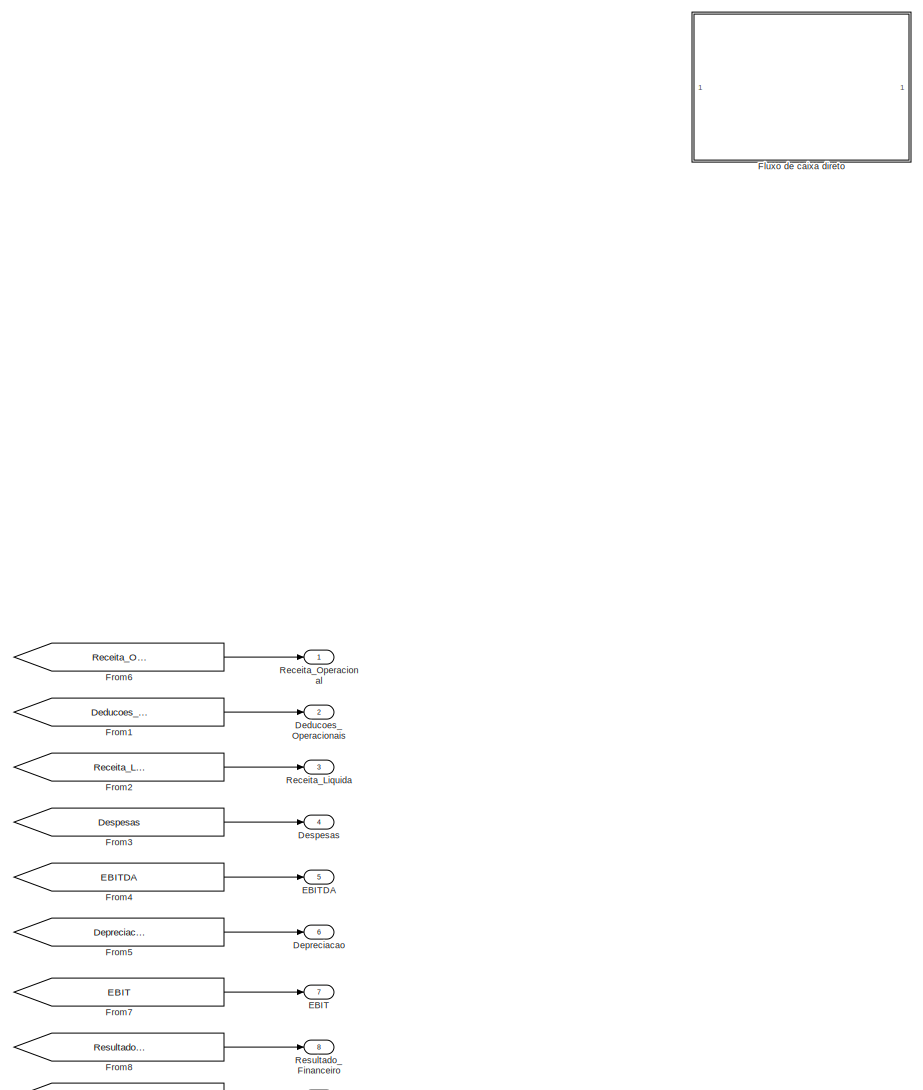
[diagram: root canvas - part 1/8, top right region]
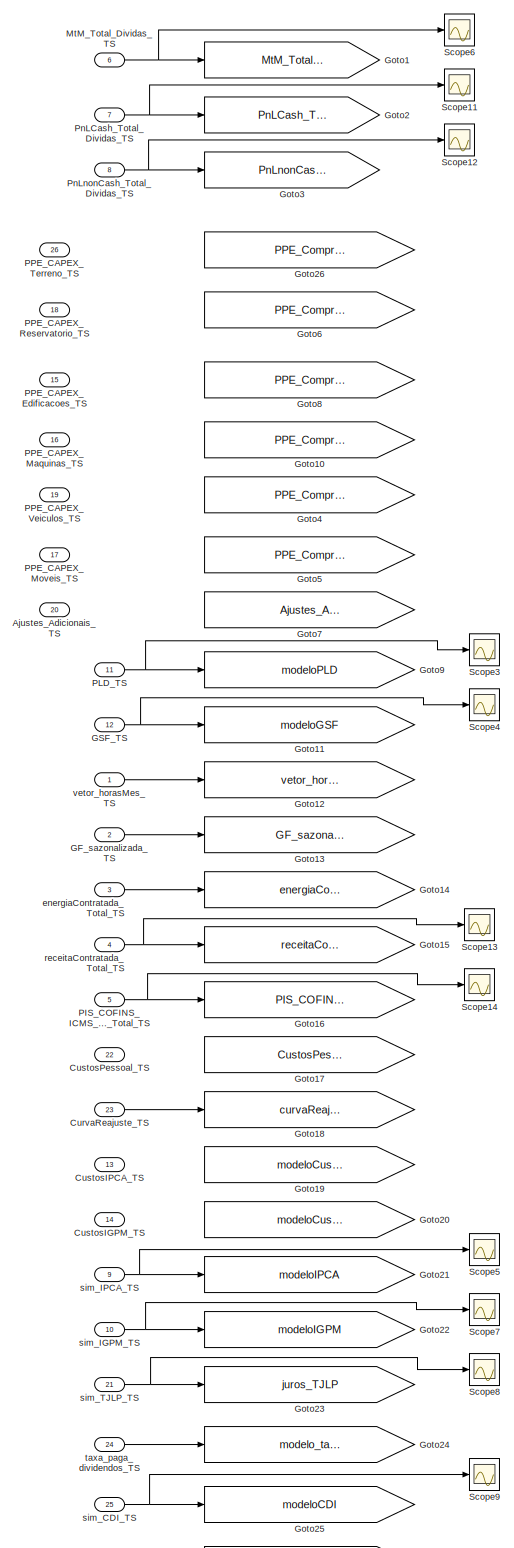
[diagram: root canvas - part 2/8, top left region]
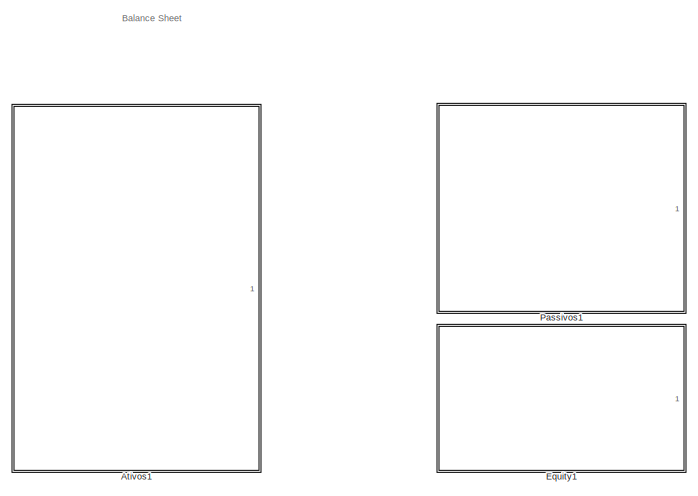
[diagram: root canvas - part 3/8, top center region]
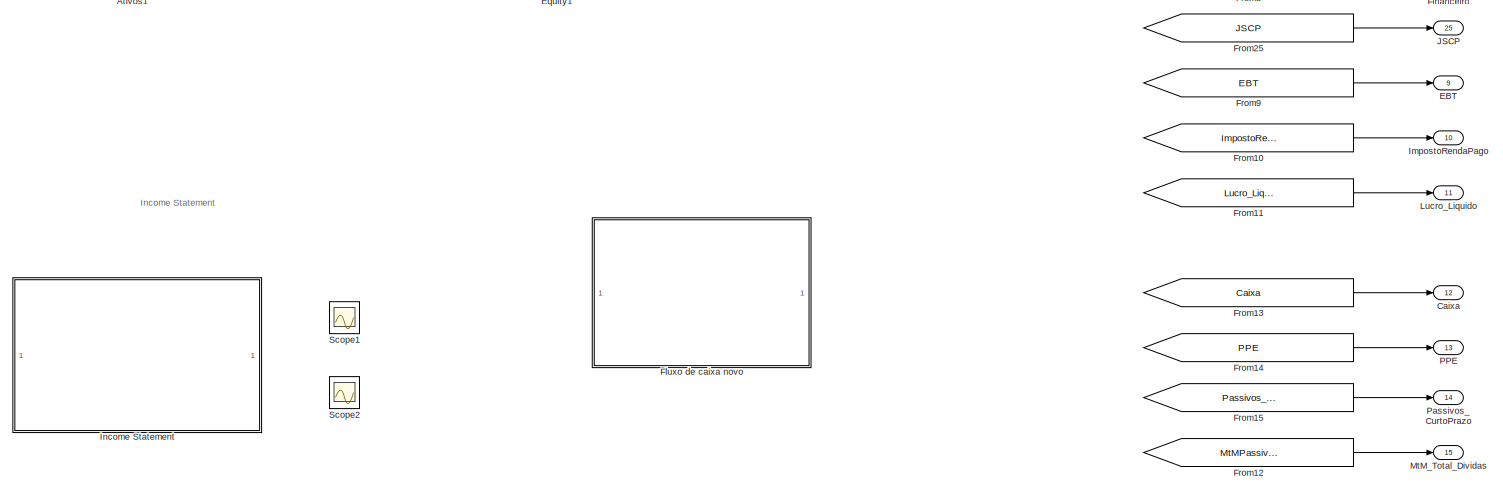
[diagram: root canvas - part 4/8, central region]
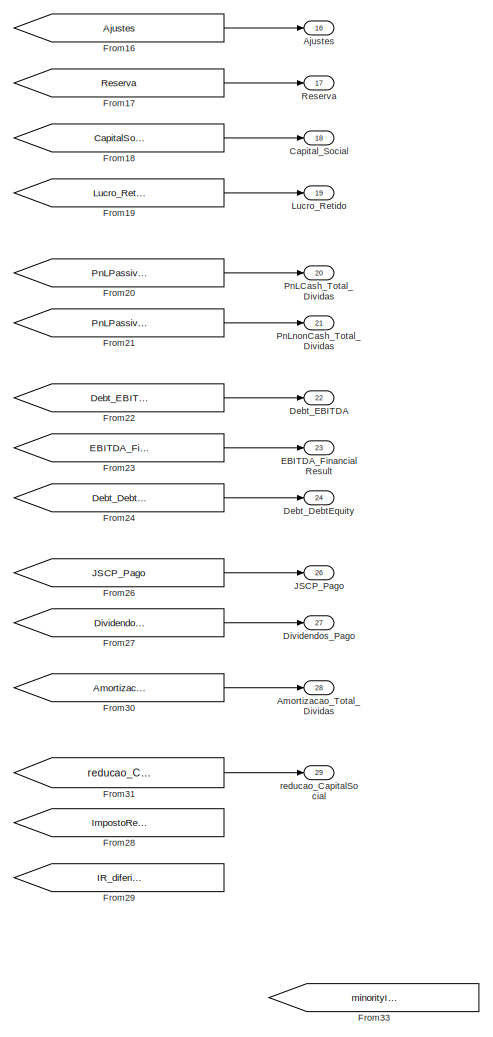
[diagram: root canvas - part 5/8, middle right region]
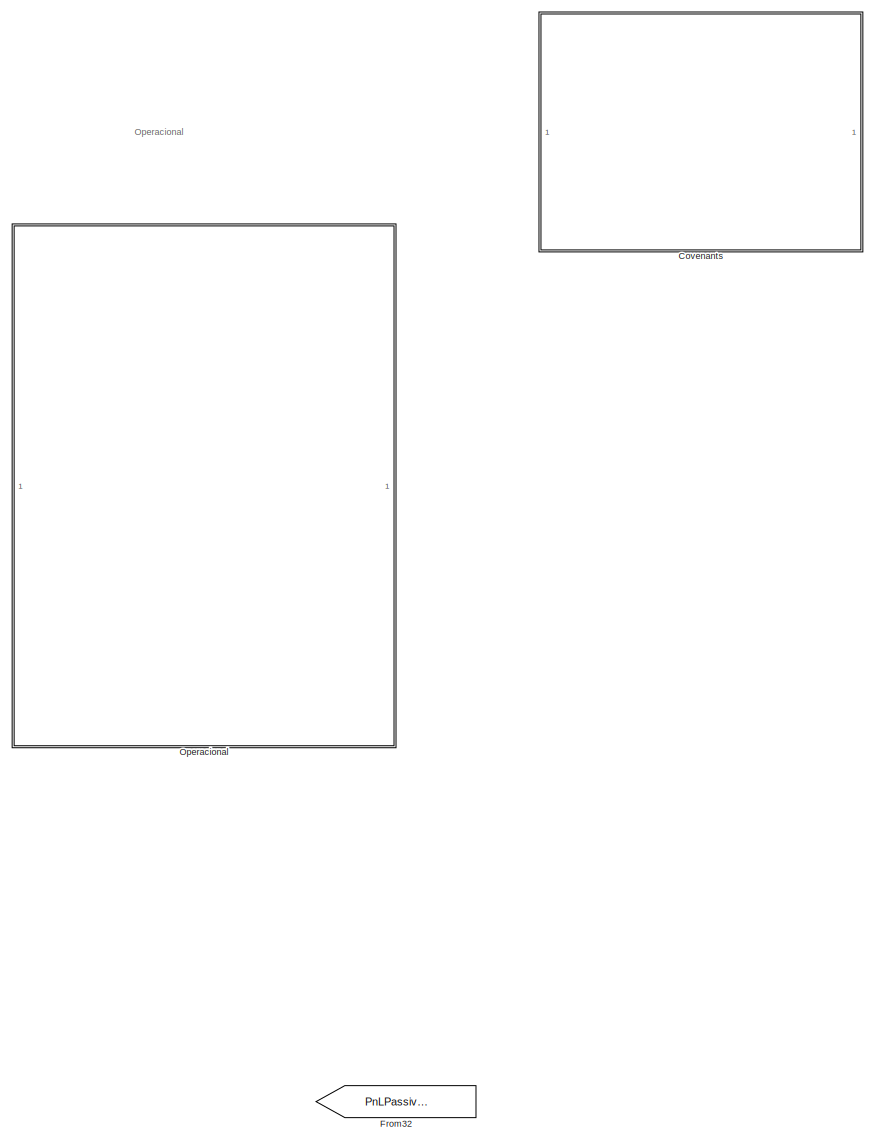
[diagram: root canvas - part 6/8, central region]
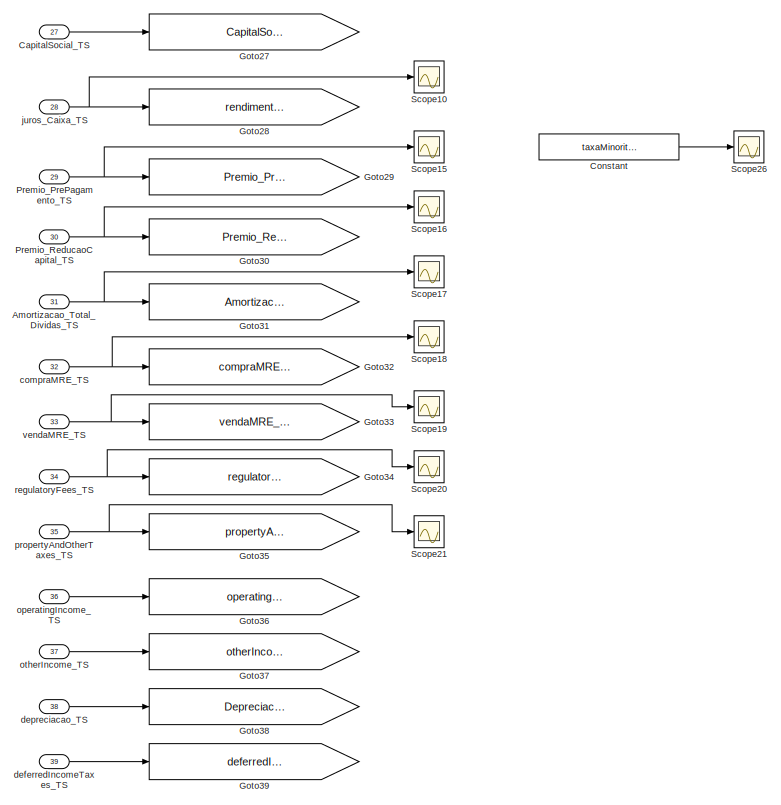
[diagram: root canvas - part 7/8, middle left region]
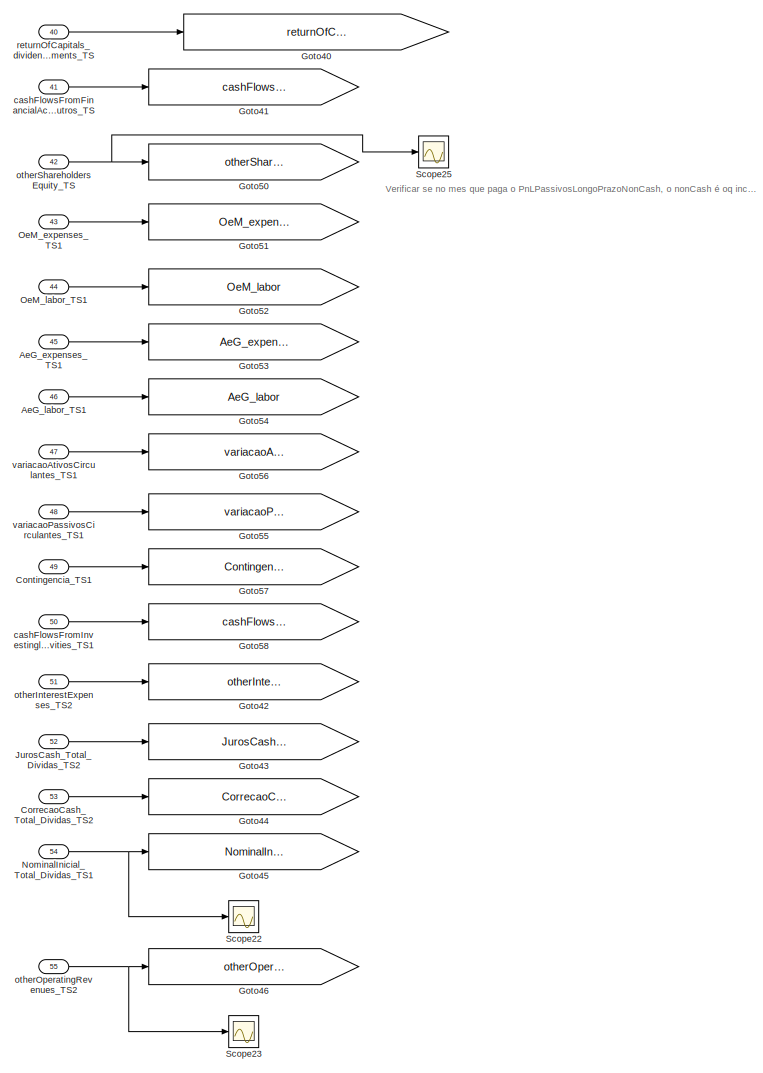
[diagram: root canvas - part 8/8, bottom left region]
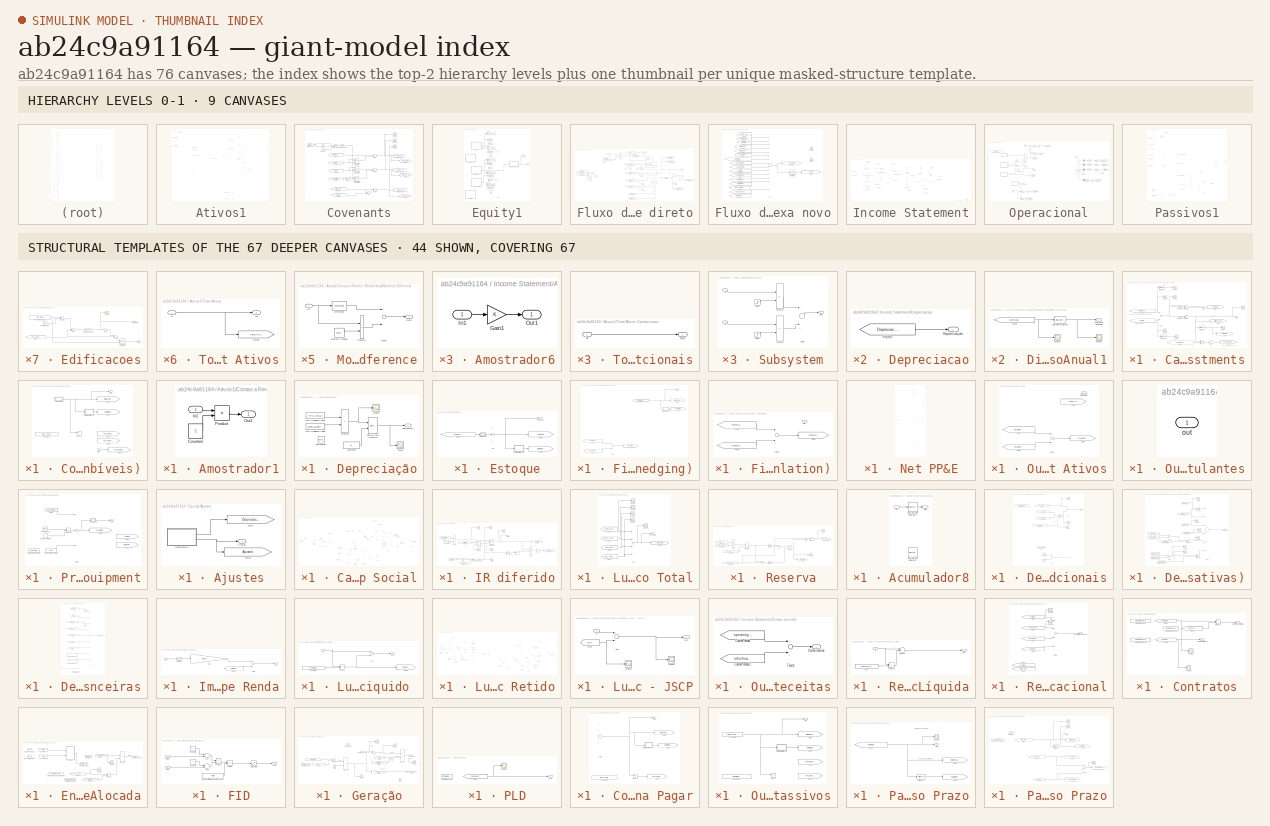
[diagram: thumbnail index - top-2 hierarchy levels (9 canvases) + 44 structural-template representatives of the remaining 67 canvases]
MODEL slx_ab24c9a91164
KIND model
BLOCK [Inport] AeG_expenses_TS1
  IconDisplay = Port number
  Port = 45
BLOCK [Inport] AeG_labor_TS1
  IconDisplay = Port number
  Port = 46
BLOCK [Outport] Ajustes
  IconDisplay = Port number
  Port = 16
BLOCK [Inport] Ajustes_Adicionais_TS
  IconDisplay = Port number
  Port = 20
BLOCK [Outport] Amortizacao_Total_Dividas
  IconDisplay = Port number
  Port = 28
BLOCK [Inport] Amortizacao_Total_Dividas_TS
  IconDisplay = Port number
  Port = 31
  PortDimensions = realidadesPorSimulacao
BLOCK [SubSystem] Ativos1
  FunctionWithSeparateData = off
  MaskHideContents = off
  MinAlgLoopOccurrences = off
  Opaque = off
  Ports = [0, 1]
  PropExecContextOutsideSubsystem = off
  RTWSystemCode = Auto
  RequestExecContextInheritance = off
BLOCK [Outport] Ativos1/Ativos    
  IconDisplay = Port number
BLOCK [SubSystem] Ativos1/Cash, Cash Equivalents & Short Term Investments
  FunctionWithSeparateData = off
  MaskHideContents = off
  MinAlgLoopOccurrences = off
  Opaque = off
  Ports = [0, 1]
  PropExecContextOutsideSubsystem = off
  RTWSystemCode = Auto
  RequestExecContextInheritance = off
BLOCK [Constant] Ativos1/Cash, Cash Equivalents & Short Term Investments/Constant1
  Value = 0
BLOCK [Constant] Ativos1/Cash, Cash Equivalents & Short Term Investments/Constant2
  Value = 0
BLOCK [Delay] Ativos1/Cash, Cash Equivalents & Short Term Investments/Delay
  DelayLength = 1
  InitialCondition = 0
  InputPortMap = u0
  Ports = [1, 1]
BLOCK [Reference] Ativos1/Cash, Cash Equivalents & Short Term Investments/Difference  REF=simulink/Discrete/Difference
  DoSatur = off
  ICPrevInput = CaixaInicial
  InputProcessing = Inherited
  LockScale = off
  OutDataType = fixdt(1, 16)
  OutDataTypeStr = Inherit: Inherit via internal rule
  OutMax = []
  OutMin = []
  OutScaling = 2^-10
  OutputDataTypeScalingMode = Inherit via internal rule
  Ports = [1, 1]
  RndMeth = Floor
  SourceBlock = simulink/Discrete/Difference
  SourceType = Difference
BLOCK [Reference] Ativos1/Cash, Cash Equivalents & Short Term Investments/Difference1  REF=simulink/Discrete/Difference
  DoSatur = off
  ICPrevInput = 0
  InputProcessing = Inherited
  LockScale = off
  OutDataType = fixdt(1, 16)
  OutDataTypeStr = Inherit: Inherit via internal rule
  OutMax = []
  OutMin = []
  OutScaling = 2^-10
  OutputDataTypeScalingMode = Inherit via internal rule
  Ports = [1, 1]
  RndMeth = Floor
  SourceBlock = simulink/Discrete/Difference
  SourceType = Difference
BLOCK [Reference] Ativos1/Cash, Cash Equivalents & Short Term Investments/Difference2  REF=simulink/Discrete/Difference
  DoSatur = off
  ICPrevInput = 0
  InputProcessing = Inherited
  LockScale = off
  OutDataType = fixdt(1, 16)
  OutDataTypeStr = Inherit: Inherit via internal rule
  OutMax = []
  OutMin = []
  OutScaling = 2^-10
  OutputDataTypeScalingMode = Inherit via internal rule
  Ports = [1, 1]
  RndMeth = Floor
  SourceBlock = simulink/Discrete/Difference
  SourceType = Difference
BLOCK [From] Ativos1/Cash, Cash Equivalents & Short Term Investments/From1
  GotoTag = TotalAtivos_minus_cash
  IconDisplay = Signal name
  TagVisibility = global
BLOCK [From] Ativos1/Cash, Cash Equivalents & Short Term Investments/From2
  GotoTag = TotalPassivosPlusEquity_minus_PassivoCurtoPrazo
  IconDisplay = Signal name
  TagVisibility = global
BLOCK [From] Ativos1/Cash, Cash Equivalents & Short Term Investments/From3
  GotoTag = rendimentoCaixa
  IconDisplay = Signal name
  TagVisibility = global
BLOCK [Gain] Ativos1/Cash, Cash Equivalents & Short Term Investments/Gain
  Gain = -1
  OutDataTypeStr = Inherit: Inherit via internal rule
  ParamDataTypeStr = Inherit: Inherit via internal rule
  SaturateOnIntegerOverflow = off
BLOCK [Goto] Ativos1/Cash, Cash Equivalents & Short Term Investments/Goto1
  GotoTag = DebtPlug
  TagVisibility = global
BLOCK [Goto] Ativos1/Cash, Cash Equivalents & Short Term Investments/Goto2
  GotoTag = MtMCashCashEquivs
  TagVisibility = global
BLOCK [Goto] Ativos1/Cash, Cash Equivalents & Short Term Investments/Goto3
  GotoTag = deltaMtMCashCashEquivs
  TagVisibility = global
BLOCK [Goto] Ativos1/Cash, Cash Equivalents & Short Term Investments/Goto5
  GotoTag = PnLCashCashEquivs
  TagVisibility = global
BLOCK [MinMax] Ativos1/Cash, Cash Equivalents & Short Term Investments/MinMax
  Function = max
  InputSameDT = off
  Inputs = 2
  Ports = [2, 1]
  SampleTime = 1
  SaturateOnIntegerOverflow = off
BLOCK [MinMax] Ativos1/Cash, Cash Equivalents & Short Term Investments/MinMax1
  InputSameDT = off
  Inputs = 2
  Ports = [2, 1]
  SampleTime = 1
  SaturateOnIntegerOverflow = off
BLOCK [Outport] Ativos1/Cash, Cash Equivalents & Short Term Investments/MtM1
  IconDisplay = Port number
BLOCK [Product] Ativos1/Cash, Cash Equivalents & Short Term Investments/Product
  InputSameDT = off
  OutDataTypeStr = Inherit: Inherit via internal rule
  Ports = [2, 1]
  RndMeth = Floor
  SaturateOnIntegerOverflow = off
BLOCK [Scope] Ativos1/Cash, Cash Equivalents & Short Term Investments/Scope
  DataFormat = StructureWithTime
  Floating = off
  NumInputPorts = 1
  Ports = [1]
  SampleTime = 0
  SaveName = ScopeData19
  ShowLegends = off
BLOCK [Scope] Ativos1/Cash, Cash Equivalents & Short Term Investments/Scope1
  DataFormat = StructureWithTime
  Floating = off
  NumInputPorts = 1
  Ports = [1]
  SampleTime = 0
  SaveName = ScopeData23
  ShowLegends = off
BLOCK [Scope] Ativos1/Cash, Cash Equivalents & Short Term Investments/Scope2
  DataFormat = StructureWithTime
  Floating = off
  NumInputPorts = 1
  Ports = [1]
  SampleTime = 0
  SaveName = ScopeData24
  ShowLegends = off
BLOCK [Scope] Ativos1/Cash, Cash Equivalents & Short Term Investments/Scope3
  DataFormat = StructureWithTime
  Floating = off
  NumInputPorts = 1
  Ports = [1]
  SampleTime = 0
  SaveName = ScopeData32
  ShowLegends = off
BLOCK [Scope] Ativos1/Cash, Cash Equivalents & Short Term Investments/Scope4
  DataFormat = StructureWithTime
  Floating = off
  NumInputPorts = 1
  Ports = [1]
  SampleTime = 0
  SaveName = ScopeData51
  ShowLegends = off
BLOCK [Scope] Ativos1/Cash, Cash Equivalents & Short Term Investments/Scope5
  DataFormat = StructureWithTime
  Floating = off
  NumInputPorts = 1
  Ports = [1]
  SampleTime = 0
  SaveName = ScopeData147
  ShowLegends = off
BLOCK [Scope] Ativos1/Cash, Cash Equivalents & Short Term Investments/Scope6
  DataFormat = StructureWithTime
  Floating = off
  NumInputPorts = 1
  Ports = [1]
  SampleTime = 0
  SaveName = ScopeData148
  ShowLegends = off
BLOCK [Sum] Ativos1/Cash, Cash Equivalents & Short Term Investments/Total1
  InputSameDT = off
  Inputs = +-
  OutDataTypeStr = Inherit: Inherit via internal rule
  Ports = [2, 1]
  SaturateOnIntegerOverflow = off
BLOCK [SubSystem] Ativos1/Contas a Receber (Recebíveis)
  FunctionWithSeparateData = off
  MaskHideContents = off
  MinAlgLoopOccurrences = off
  Opaque = off
  Ports = [0, 1]
  PropExecContextOutsideSubsystem = off
  RTWSystemCode = Auto
  RequestExecContextInheritance = off
BLOCK [SubSystem] Ativos1/Contas a Receber (Recebíveis)/Amostrador1
  FunctionWithSeparateData = off
  MaskHideContents = off
  MinAlgLoopOccurrences = off
  Opaque = off
  Ports = [1, 1]
  PropExecContextOutsideSubsystem = off
  RTWSystemCode = Auto
  RequestExecContextInheritance = off
BLOCK [Constant] Ativos1/Contas a Receber (Recebíveis)/Amostrador1/Constant
BLOCK [Inport] Ativos1/Contas a Receber (Recebíveis)/Amostrador1/In1
  IconDisplay = Port number
BLOCK [Outport] Ativos1/Contas a Receber (Recebíveis)/Amostrador1/Out1
  IconDisplay = Port number
BLOCK [Product] Ativos1/Contas a Receber (Recebíveis)/Amostrador1/Product
  InputSameDT = off
  OutDataTypeStr = Inherit: Inherit via internal rule
  Ports = [2, 1]
  SampleTime = 1
  SaturateOnIntegerOverflow = off
BLOCK [Constant] Ativos1/Contas a Receber (Recebíveis)/Constant
  Commented = on
  Value = juros_ContasAReceber
BLOCK [Goto] Ativos1/Contas a Receber (Recebíveis)/Goto1
  GotoTag = PnLContasReceberNonCash
  TagVisibility = global
BLOCK [Goto] Ativos1/Contas a Receber (Recebíveis)/Goto2
  GotoTag = deltaMtMContasReceber
  TagVisibility = global
BLOCK [Goto] Ativos1/Contas a Receber (Recebíveis)/Goto4
  GotoTag = MtMContasReceber
  TagVisibility = global
BLOCK [Goto] Ativos1/Contas a Receber (Recebíveis)/Goto5
  GotoTag = PnLContasReceber
  TagVisibility = global
BLOCK [Goto] Ativos1/Contas a Receber (Recebíveis)/Goto7
  GotoTag = PnLContasReceberCash
  TagVisibility = global
BLOCK [SubSystem] Ativos1/Contas a Receber (Recebíveis)/Modified Difference
  FunctionWithSeparateData = off
  MaskHideContents = off
  MinAlgLoopOccurrences = off
  Opaque = off
  Ports = [1, 1]
  PropExecContextOutsideSubsystem = off
  RTWSystemCode = Auto
  RequestExecContextInheritance = off
BLOCK [Outport] Ativos1/Contas a Receber (Recebíveis)/Modified Difference/Delta
  IconDisplay = Port number
BLOCK [Reference] Ativos1/Contas a Receber (Recebíveis)/Modified Difference/Difference  REF=simulink/Discrete/Difference
  DoSatur = off
  ICPrevInput = 0.0
  InputProcessing = Elements as channels (sample based)
  LockScale = off
  OutDataType = fixdt(1, 16)
  OutDataTypeStr = Inherit: Inherit via internal rule
  OutMax = []
  OutMin = []
  OutScaling = 2^-10
  OutputDataTypeScalingMode = Inherit via internal rule
  Ports = [1, 1]
  RndMeth = Floor
  SourceBlock = simulink/Discrete/Difference
  SourceType = Difference
BLOCK [Reference] Ativos1/Contas a Receber (Recebíveis)/Modified Difference/Discrete Impulse1  REF=dspsrcs4/Discrete 
Impulse
  Delay = 0
  FrameSample = 1
  LastOutDataTypeStr = double
  OutDataTypeStr = double
  Ports = [0, 1]
  SampleTime = 1
  SourceBlock = dspsrcs4/Discrete \nImpulse
  SourceType = Discrete Impulse
  additionalParams = off
  allowOverrides = on
  dataType = double
  fracBitsMode = Best precision
  isSigned = on
  numFracBits = 15
  udDataType = sfix(16)
  wordLen = 16
BLOCK [Inport] Ativos1/Contas a Receber (Recebíveis)/Modified Difference/In1
  IconDisplay = Port number
BLOCK [Product] Ativos1/Contas a Receber (Recebíveis)/Modified Difference/Product3
  InputSameDT = off
  OutDataTypeStr = Inherit: Inherit via internal rule
  Ports = [2, 1]
  SaturateOnIntegerOverflow = off
BLOCK [Sum] Ativos1/Contas a Receber (Recebíveis)/Modified Difference/Total3
  InputSameDT = off
  Inputs = +-
  OutDataTypeStr = Inherit: Inherit via internal rule
  Ports = [2, 1]
  SaturateOnIntegerOverflow = off
BLOCK [Outport] Ativos1/Contas a Receber (Recebíveis)/MtM
  IconDisplay = Port number
BLOCK [Product] Ativos1/Contas a Receber (Recebíveis)/Product
  InputSameDT = off
  OutDataTypeStr = Inherit: Inherit via internal rule
  Ports = [2, 1]
  RndMeth = Floor
  SaturateOnIntegerOverflow = off
BLOCK [Sum] Ativos1/Contas a Receber (Recebíveis)/Sum
  InputSameDT = off
  OutDataTypeStr = Inherit: Inherit via internal rule
  Ports = [2, 1]
  SaturateOnIntegerOverflow = off
BLOCK [SubSystem] Ativos1/Depreciação
  Commented = on
  FunctionWithSeparateData = off
  MaskHideContents = off
  MinAlgLoopOccurrences = off
  Opaque = off
  Ports = [0, 1]
  PropExecContextOutsideSubsystem = off
  RTWSystemCode = Auto
  RequestExecContextInheritance = off
BLOCK [Constant] Ativos1/Depreciação/Ativo Imobilizado Inicial
  Value = PPE_Inicial
BLOCK [Constant] Ativos1/Depreciação/Ativo Imobilizado Inicial2
  Value = Media_DeprPPE
BLOCK [Constant] Ativos1/Depreciação/Constant2
  Value = 0
BLOCK [Outport] Ativos1/Depreciação/Depreciacao
  IconDisplay = Port number
BLOCK [RandomNumber] Ativos1/Depreciação/Depreciação
  Mean = Media_DeprPPE
  Seed = Seed_DeprPPE
  Variance = Var_DeprPPE
BLOCK [DiscreteIntegrator] Ativos1/Depreciação/Discrete-Time Integrator
  ICPrevOutput = DiscIntNeverNeededParam
  ICPrevScaledInput = DiscIntNeverNeededParam
  InitialConditionSource = external
  IntegratorMethod = Accumulation: Backward Euler
  Ports = [2, 1]
BLOCK [Product] Ativos1/Depreciação/Product2
  InputSameDT = off
  OutDataTypeStr = Inherit: Inherit via internal rule
  Ports = [2, 1]
  SaturateOnIntegerOverflow = off
BLOCK [Scope] Ativos1/Depreciação/Scope
  DataFormat = StructureWithTime
  Floating = off
  NumInputPorts = 1
  Ports = [1]
  SampleTime = 0
  SaveName = ScopeData71
  ShowLegends = off
  ZoomMode = yonly
BLOCK [Scope] Ativos1/Depreciação/Scope1
  DataFormat = StructureWithTime
  Floating = off
  NumInputPorts = 1
  Ports = [1]
  SampleTime = 0
  SaveName = ScopeData96
  ShowLegends = off
  ZoomMode = yonly
BLOCK [SubSystem] Ativos1/Estoque
  Commented = on
  FunctionWithSeparateData = off
  MaskHideContents = off
  MinAlgLoopOccurrences = off
  Opaque = off
  Ports = [0, 1]
  PropExecContextOutsideSubsystem = off
  RTWSystemCode = Auto
  RequestExecContextInheritance = off
BLOCK [Sum] Ativos1/Estoque/Add
  InputSameDT = off
  Inputs = +|+|-
  OutDataTypeStr = Inherit: Inherit via internal rule
  Ports = [3, 1]
  SaturateOnIntegerOverflow = off
BLOCK [SubSystem] Ativos1/Estoque/Amostrador1
  FunctionWithSeparateData = off
  MaskHideContents = off
  MinAlgLoopOccurrences = off
  Opaque = off
  Ports = [1, 1]
  PropExecContextOutsideSubsystem = off
  RTWSystemCode = Auto
  RequestExecContextInheritance = off
BLOCK [Gain] Ativos1/Estoque/Amostrador1/Gain1
  OutDataTypeStr = Inherit: Inherit via internal rule
  ParamDataTypeStr = Inherit: Inherit via internal rule
  SampleTime = dts
  SaturateOnIntegerOverflow = off
BLOCK [Inport] Ativos1/Estoque/Amostrador1/In1
  IconDisplay = Port number
BLOCK [Outport] Ativos1/Estoque/Amostrador1/Out1
  IconDisplay = Port number
BLOCK [Outport] Ativos1/Estoque/Estoque
  IconDisplay = Port number
BLOCK [From] Ativos1/Estoque/From9
  GotoTag = ValorDoEstoqueConsolidadoDeposito
BLOCK [Goto] Ativos1/Estoque/Goto1
  GotoTag = deltaEstoque
  TagVisibility = global
BLOCK [Goto] Ativos1/Estoque/Goto2
  GotoTag = Estoque
  TagVisibility = global
BLOCK [SubSystem] Ativos1/Estoque/Modified Difference
  FunctionWithSeparateData = off
  MaskHideContents = off
  MinAlgLoopOccurrences = off
  Opaque = off
  Ports = [1, 1]
  PropExecContextOutsideSubsystem = off
  RTWSystemCode = Auto
  RequestExecContextInheritance = off
BLOCK [Outport] Ativos1/Estoque/Modified Difference/Delta
  IconDisplay = Port number
BLOCK [Reference] Ativos1/Estoque/Modified Difference/Difference  REF=simulink/Discrete/Difference
  DoSatur = off
  ICPrevInput = 0.0
  InputProcessing = Elements as channels (sample based)
  LockScale = off
  OutDataType = fixdt(1, 16)
  OutDataTypeStr = Inherit: Inherit via internal rule
  OutMax = []
  OutMin = []
  OutScaling = 2^-10
  OutputDataTypeScalingMode = Inherit via internal rule
  Ports = [1, 1]
  RndMeth = Floor
  SourceBlock = simulink/Discrete/Difference
  SourceType = Difference
BLOCK [Reference] Ativos1/Estoque/Modified Difference/Discrete Impulse1  REF=dspsrcs4/Discrete 
Impulse
  Delay = 0
  FrameSample = 1
  LastOutDataTypeStr = double
  OutDataTypeStr = double
  Ports = [0, 1]
  SampleTime = 1
  SourceBlock = dspsrcs4/Discrete \nImpulse
  SourceType = Discrete Impulse
  additionalParams = off
  allowOverrides = on
  dataType = double
  fracBitsMode = Best precision
  isSigned = on
  numFracBits = 15
  udDataType = sfix(16)
  wordLen = 16
BLOCK [Inport] Ativos1/Estoque/Modified Difference/In1
  IconDisplay = Port number
BLOCK [Product] Ativos1/Estoque/Modified Difference/Product3
  InputSameDT = off
  OutDataTypeStr = Inherit: Inherit via internal rule
  Ports = [2, 1]
  SaturateOnIntegerOverflow = off
BLOCK [Sum] Ativos1/Estoque/Modified Difference/Total3
  InputSameDT = off
  Inputs = +-
  OutDataTypeStr = Inherit: Inherit via internal rule
  Ports = [2, 1]
  SaturateOnIntegerOverflow = off
BLOCK [SubSystem] Ativos1/Financial Instruments (Hedging)
  Commented = on
  FunctionWithSeparateData = off
  MaskHideContents = off
  MinAlgLoopOccurrences = off
  Opaque = off
  Ports = [0, 1]
  PropExecContextOutsideSubsystem = off
  RTWSystemCode = Auto
  RequestExecContextInheritance = off
BLOCK [From] Ativos1/Financial Instruments (Hedging)/From1
  GotoTag = PnLFinInstHedgeCash
  IconDisplay = Signal name
BLOCK [From] Ativos1/Financial Instruments (Hedging)/From2
  GotoTag = PnLFinInstHedgeNonCash
  IconDisplay = Signal name
BLOCK [From] Ativos1/Financial Instruments (Hedging)/From9
  GotoTag = CreditoDeImposto
BLOCK [Goto] Ativos1/Financial Instruments (Hedging)/Goto1
  GotoTag = MtMFinInstHedge
  TagVisibility = global
BLOCK [Goto] Ativos1/Financial Instruments (Hedging)/Goto2
  GotoTag = deltaMtMFinInstHedge
  TagVisibility = global
BLOCK [Goto] Ativos1/Financial Instruments (Hedging)/Goto4
  GotoTag = PnLFinInstHedge
  TagVisibility = global
BLOCK [SubSystem] Ativos1/Financial Instruments (Hedging)/Modified Difference1
  FunctionWithSeparateData = off
  MaskHideContents = off
  MinAlgLoopOccurrences = off
  Opaque = off
  Ports = [1, 1]
  PropExecContextOutsideSubsystem = off
  RTWSystemCode = Auto
  RequestExecContextInheritance = off
BLOCK [Outport] Ativos1/Financial Instruments (Hedging)/Modified Difference1/Delta
  IconDisplay = Port number
BLOCK [Reference] Ativos1/Financial Instruments (Hedging)/Modified Difference1/Difference  REF=simulink/Discrete/Difference
  DoSatur = off
  ICPrevInput = 0.0
  InputProcessing = Elements as channels (sample based)
  LockScale = off
  OutDataType = fixdt(1, 16)
  OutDataTypeStr = Inherit: Inherit via internal rule
  OutMax = []
  OutMin = []
  OutScaling = 2^-10
  OutputDataTypeScalingMode = Inherit via internal rule
  Ports = [1, 1]
  RndMeth = Floor
  SourceBlock = simulink/Discrete/Difference
  SourceType = Difference
BLOCK [Reference] Ativos1/Financial Instruments (Hedging)/Modified Difference1/Discrete Impulse1  REF=dspsrcs4/Discrete 
Impulse
  Delay = 0
  FrameSample = 1
  LastOutDataTypeStr = double
  OutDataTypeStr = double
  Ports = [0, 1]
  SampleTime = 1
  SourceBlock = dspsrcs4/Discrete \nImpulse
  SourceType = Discrete Impulse
  additionalParams = off
  allowOverrides = on
  dataType = double
  fracBitsMode = Best precision
  isSigned = on
  numFracBits = 15
  udDataType = sfix(16)
  wordLen = 16
BLOCK [Inport] Ativos1/Financial Instruments (Hedging)/Modified Difference1/In1
  IconDisplay = Port number
BLOCK [Product] Ativos1/Financial Instruments (Hedging)/Modified Difference1/Product3
  InputSameDT = off
  OutDataTypeStr = Inherit: Inherit via internal rule
  Ports = [2, 1]
  SaturateOnIntegerOverflow = off
BLOCK [Sum] Ativos1/Financial Instruments (Hedging)/Modified Difference1/Total3
  InputSameDT = off
  Inputs = +-
  OutDataTypeStr = Inherit: Inherit via internal rule
  Ports = [2, 1]
  SaturateOnIntegerOverflow = off
BLOCK [Outport] Ativos1/Financial Instruments (Hedging)/MtM
  IconDisplay = Port number
BLOCK [Sum] Ativos1/Financial Instruments (Hedging)/Total11
  InputSameDT = off
  Inputs = +|+
  OutDataTypeStr = Inherit: Inherit via internal rule
  Ports = [2, 1]
  SaturateOnIntegerOverflow = off
BLOCK [SubSystem] Ativos1/Financial Instruments (Speculation)
  Commented = on
  FunctionWithSeparateData = off
  MaskHideContents = off
  MinAlgLoopOccurrences = off
  Opaque = off
  Ports = [0, 1]
  PropExecContextOutsideSubsystem = off
  RTWSystemCode = Auto
  RequestExecContextInheritance = off
BLOCK [From] Ativos1/Financial Instruments (Speculation)/From1
  GotoTag = PnLFinInstSpecCash
  IconDisplay = Signal name
BLOCK [From] Ativos1/Financial Instruments (Speculation)/From2
  GotoTag = PnLFinInstSpecNonCash
  IconDisplay = Signal name
BLOCK [Goto] Ativos1/Financial Instruments (Speculation)/Goto3
  GotoTag = PnLFinInstSpec
  TagVisibility = global
BLOCK [Outport] Ativos1/Financial Instruments (Speculation)/MtM
  IconDisplay = Port number
BLOCK [Sum] Ativos1/Financial Instruments (Speculation)/Total11
  InputSameDT = off
  Inputs = +|+
  OutDataTypeStr = Inherit: Inherit via internal rule
  Ports = [2, 1]
  SaturateOnIntegerOverflow = off
BLOCK [Goto] Ativos1/Goto2
  GotoTag = PPE
  TagVisibility = global
BLOCK [Goto] Ativos1/Goto5
  GotoTag = TotalAtivos_minus_cash
  TagVisibility = global
BLOCK [SubSystem] Ativos1/Net PP&E
  FunctionWithSeparateData = off
  MaskHideContents = off
  MinAlgLoopOccurrences = off
  Opaque = off
  Ports = [0, 1]
  PropExecContextOutsideSubsystem = off
  RTWSystemCode = Auto
  RequestExecContextInheritance = off
BLOCK [Sum] Ativos1/Net PP&E/Add6
  InputSameDT = off
  Inputs = ++++++
  OutDataTypeStr = Inherit: Inherit via internal rule
  Ports = [6, 1]
  SaturateOnIntegerOverflow = off
BLOCK [Sum] Ativos1/Net PP&E/Add7
  InputSameDT = off
  Inputs = ++++++
  OutDataTypeStr = Inherit: Inherit via internal rule
  Ports = [6, 1]
  SaturateOnIntegerOverflow = off
BLOCK [SubSystem] Ativos1/Net PP&E/Edificacoes
  FunctionWithSeparateData = off
  MaskHideContents = off
  MinAlgLoopOccurrences = off
  Opaque = off
  Ports = [0, 2]
  PropExecContextOutsideSubsystem = off
  RTWSystemCode = Auto
  RequestExecContextInheritance = off
BLOCK [Sum] Ativos1/Net PP&E/Edificacoes/Add1
  InputSameDT = off
  OutDataTypeStr = Inherit: Inherit via internal rule
  Ports = [2, 1]
  SaturateOnIntegerOverflow = off
BLOCK [Sum] Ativos1/Net PP&E/Edificacoes/Add2
  InputSameDT = off
  OutDataTypeStr = Inherit: Inherit via internal rule
  Ports = [2, 1]
  SaturateOnIntegerOverflow = off
BLOCK [Outport] Ativos1/Net PP&E/Edificacoes/Depreciacao
  IconDisplay = Port number
BLOCK [Reference] Ativos1/Net PP&E/Edificacoes/Discrete Impulse  REF=dspsrcs4/Discrete 
Impulse
  Delay = 0
  FrameSample = 1
  LastOutDataTypeStr = double
  OutDataTypeStr = double
  Ports = [0, 1]
  SampleTime = 1
  SourceBlock = dspsrcs4/Discrete \nImpulse
  SourceType = Discrete Impulse
  additionalParams = off
  allowOverrides = on
  dataType = double
  fracBitsMode = Best precision
  isSigned = on
  numFracBits = 15
  udDataType = sfix(16)
  wordLen = 16
BLOCK [DiscreteTransferFcn] Ativos1/Net PP&E/Edificacoes/Discrete Transfer Fcn
  Denominator = den_PPE_Edificacoes
  InputPortMap = u0
  Numerator = num_PPE_Edificacoes
  Ports = [1, 1]
  SampleTime = 1
BLOCK [DiscreteIntegrator] Ativos1/Net PP&E/Edificacoes/Discrete-Time Integrator6
  ICPrevOutput = DiscIntNeverNeededParam
  ICPrevScaledInput = DiscIntNeverNeededParam
  InitialConditionSource = external
  IntegratorMethod = Accumulation: Backward Euler
  Ports = [2, 1]
BLOCK [From] Ativos1/Net PP&E/Edificacoes/From1
  GotoTag = PPE_Compras_Edificacoes
  TagVisibility = global
BLOCK [Gain] Ativos1/Net PP&E/Edificacoes/Gain
  Gain = -1
  OutDataTypeStr = Inherit: Inherit via internal rule
  ParamDataTypeStr = Inherit: Inherit via internal rule
  SaturateOnIntegerOverflow = off
BLOCK [Constant] Ativos1/Net PP&E/Edificacoes/Investimento Inicial19
  Value = PPE_Inicial_Edificacoes
BLOCK [Outport] Ativos1/Net PP&E/Edificacoes/PPE
  IconDisplay = Port number
  Port = 2
BLOCK [Product] Ativos1/Net PP&E/Edificacoes/Product1
  InputSameDT = off
  OutDataTypeStr = Inherit: Inherit via internal rule
  Ports = [2, 1]
  RndMeth = Floor
  SaturateOnIntegerOverflow = off
BLOCK [Scope] Ativos1/Net PP&E/Edificacoes/Scope1
  DataFormat = StructureWithTime
  Floating = off
  NumInputPorts = 1
  Ports = [1]
  SampleTime = 0
  SaveName = ScopeData67
  ShowLegends = off
BLOCK [Goto] Ativos1/Net PP&E/Goto1
  GotoTag = Depreciacao_Ativos
  TagVisibility = global
BLOCK [SubSystem] Ativos1/Net PP&E/Maquinas
  FunctionWithSeparateData = off
  MaskHideContents = off
  MinAlgLoopOccurrences = off
  Opaque = off
  Ports = [0, 2]
  PropExecContextOutsideSubsystem = off
  RTWSystemCode = Auto
  RequestExecContextInheritance = off
BLOCK [Sum] Ativos1/Net PP&E/Maquinas/Add1
  InputSameDT = off
  OutDataTypeStr = Inherit: Inherit via internal rule
  Ports = [2, 1]
  SaturateOnIntegerOverflow = off
BLOCK [Sum] Ativos1/Net PP&E/Maquinas/Add2
  InputSameDT = off
  OutDataTypeStr = Inherit: Inherit via internal rule
  Ports = [2, 1]
  SaturateOnIntegerOverflow = off
BLOCK [Outport] Ativos1/Net PP&E/Maquinas/Depreciacao
  IconDisplay = Port number
BLOCK [Reference] Ativos1/Net PP&E/Maquinas/Discrete Impulse  REF=dspsrcs4/Discrete 
Impulse
  Delay = 0
  FrameSample = 1
  LastOutDataTypeStr = double
  OutDataTypeStr = double
  Ports = [0, 1]
  SampleTime = 1
  SourceBlock = dspsrcs4/Discrete \nImpulse
  SourceType = Discrete Impulse
  additionalParams = off
  allowOverrides = on
  dataType = double
  fracBitsMode = Best precision
  isSigned = on
  numFracBits = 15
  udDataType = sfix(16)
  wordLen = 16
BLOCK [DiscreteTransferFcn] Ativos1/Net PP&E/Maquinas/Discrete Transfer Fcn
  Denominator = den_PPE_Maquinas
  InputPortMap = u0
  Numerator = num_PPE_Maquinas
  Ports = [1, 1]
  SampleTime = 1
BLOCK [DiscreteIntegrator] Ativos1/Net PP&E/Maquinas/Discrete-Time Integrator6
  ICPrevOutput = DiscIntNeverNeededParam
  ICPrevScaledInput = DiscIntNeverNeededParam
  InitialConditionSource = external
  IntegratorMethod = Accumulation: Backward Euler
  Ports = [2, 1]
BLOCK [From] Ativos1/Net PP&E/Maquinas/From1
  GotoTag = PPE_Compras_Maquinas
  TagVisibility = global
BLOCK [Gain] Ativos1/Net PP&E/Maquinas/Gain
  Gain = -1
  OutDataTypeStr = Inherit: Inherit via internal rule
  ParamDataTypeStr = Inherit: Inherit via internal rule
  SaturateOnIntegerOverflow = off
BLOCK [Constant] Ativos1/Net PP&E/Maquinas/Investimento Inicial19
  Value = PPE_Inicial_Maquinas
BLOCK [Outport] Ativos1/Net PP&E/Maquinas/PPE
  IconDisplay = Port number
  Port = 2
BLOCK [Product] Ativos1/Net PP&E/Maquinas/Product1
  InputSameDT = off
  OutDataTypeStr = Inherit: Inherit via internal rule
  Ports = [2, 1]
  RndMeth = Floor
  SaturateOnIntegerOverflow = off
BLOCK [Scope] Ativos1/Net PP&E/Maquinas/Scope1
  DataFormat = StructureWithTime
  Floating = off
  NumInputPorts = 1
  Ports = [1]
  SampleTime = 0
  SaveName = ScopeData67
  ShowLegends = off
BLOCK [SubSystem] Ativos1/Net PP&E/Moveis
  FunctionWithSeparateData = off
  MaskHideContents = off
  MinAlgLoopOccurrences = off
  Opaque = off
  Ports = [0, 2]
  PropExecContextOutsideSubsystem = off
  RTWSystemCode = Auto
  RequestExecContextInheritance = off
BLOCK [Sum] Ativos1/Net PP&E/Moveis/Add1
  InputSameDT = off
  OutDataTypeStr = Inherit: Inherit via internal rule
  Ports = [2, 1]
  SaturateOnIntegerOverflow = off
BLOCK [Sum] Ativos1/Net PP&E/Moveis/Add2
  InputSameDT = off
  OutDataTypeStr = Inherit: Inherit via internal rule
  Ports = [2, 1]
  SaturateOnIntegerOverflow = off
BLOCK [Outport] Ativos1/Net PP&E/Moveis/Depreciacao
  IconDisplay = Port number
BLOCK [Reference] Ativos1/Net PP&E/Moveis/Discrete Impulse  REF=dspsrcs4/Discrete 
Impulse
  Delay = 0
  FrameSample = 1
  LastOutDataTypeStr = double
  OutDataTypeStr = double
  Ports = [0, 1]
  SampleTime = 1
  SourceBlock = dspsrcs4/Discrete \nImpulse
  SourceType = Discrete Impulse
  additionalParams = off
  allowOverrides = on
  dataType = double
  fracBitsMode = Best precision
  isSigned = on
  numFracBits = 15
  udDataType = sfix(16)
  wordLen = 16
BLOCK [DiscreteTransferFcn] Ativos1/Net PP&E/Moveis/Discrete Transfer Fcn
  Denominator = den_PPE_Moveis
  InputPortMap = u0
  Numerator = num_PPE_Moveis
  Ports = [1, 1]
  SampleTime = 1
BLOCK [DiscreteIntegrator] Ativos1/Net PP&E/Moveis/Discrete-Time Integrator6
  ICPrevOutput = DiscIntNeverNeededParam
  ICPrevScaledInput = DiscIntNeverNeededParam
  InitialConditionSource = external
  IntegratorMethod = Accumulation: Backward Euler
  Ports = [2, 1]
BLOCK [From] Ativos1/Net PP&E/Moveis/From1
  GotoTag = PPE_Compras_Moveis
  TagVisibility = global
BLOCK [Gain] Ativos1/Net PP&E/Moveis/Gain
  Gain = -1
  OutDataTypeStr = Inherit: Inherit via internal rule
  ParamDataTypeStr = Inherit: Inherit via internal rule
  SaturateOnIntegerOverflow = off
BLOCK [Constant] Ativos1/Net PP&E/Moveis/Investimento Inicial19
  Value = PPE_Inicial_Moveis
BLOCK [Outport] Ativos1/Net PP&E/Moveis/PPE
  IconDisplay = Port number
  Port = 2
BLOCK [Product] Ativos1/Net PP&E/Moveis/Product1
  InputSameDT = off
  OutDataTypeStr = Inherit: Inherit via internal rule
  Ports = [2, 1]
  RndMeth = Floor
  SaturateOnIntegerOverflow = off
BLOCK [Scope] Ativos1/Net PP&E/Moveis/Scope1
  DataFormat = StructureWithTime
  Floating = off
  NumInputPorts = 1
  Ports = [1]
  SampleTime = 0
  SaveName = ScopeData67
  ShowLegends = off
BLOCK [Outport] Ativos1/Net PP&E/Net_PP&E
  IconDisplay = Port number
BLOCK [SubSystem] Ativos1/Net PP&E/Reservatorio
  FunctionWithSeparateData = off
  MaskHideContents = off
  MinAlgLoopOccurrences = off
  Opaque = off
  Ports = [0, 2]
  PropExecContextOutsideSubsystem = off
  RTWSystemCode = Auto
  RequestExecContextInheritance = off
BLOCK [Sum] Ativos1/Net PP&E/Reservatorio/Add1
  InputSameDT = off
  OutDataTypeStr = Inherit: Inherit via internal rule
  Ports = [2, 1]
  SaturateOnIntegerOverflow = off
BLOCK [Sum] Ativos1/Net PP&E/Reservatorio/Add2
  InputSameDT = off
  OutDataTypeStr = Inherit: Inherit via internal rule
  Ports = [2, 1]
  SaturateOnIntegerOverflow = off
BLOCK [Outport] Ativos1/Net PP&E/Reservatorio/Depreciacao
  IconDisplay = Port number
BLOCK [Reference] Ativos1/Net PP&E/Reservatorio/Discrete Impulse  REF=dspsrcs4/Discrete 
Impulse
  Delay = 0
  FrameSample = 1
  LastOutDataTypeStr = double
  OutDataTypeStr = double
  Ports = [0, 1]
  SampleTime = 1
  SourceBlock = dspsrcs4/Discrete \nImpulse
  SourceType = Discrete Impulse
  additionalParams = off
  allowOverrides = on
  dataType = double
  fracBitsMode = Best precision
  isSigned = on
  numFracBits = 15
  udDataType = sfix(16)
  wordLen = 16
BLOCK [DiscreteTransferFcn] Ativos1/Net PP&E/Reservatorio/Discrete Transfer Fcn
  Denominator = den_PPE_Reservatorio
  InputPortMap = u0
  Numerator = num_PPE_Reservatorio
  Ports = [1, 1]
  SampleTime = 1
BLOCK [DiscreteIntegrator] Ativos1/Net PP&E/Reservatorio/Discrete-Time Integrator6
  ICPrevOutput = DiscIntNeverNeededParam
  ICPrevScaledInput = DiscIntNeverNeededParam
  InitialConditionSource = external
  IntegratorMethod = Accumulation: Backward Euler
  Ports = [2, 1]
BLOCK [From] Ativos1/Net PP&E/Reservatorio/From1
  GotoTag = PPE_Compras_Reservatorio
  TagVisibility = global
BLOCK [Gain] Ativos1/Net PP&E/Reservatorio/Gain
  Gain = -1
  OutDataTypeStr = Inherit: Inherit via internal rule
  ParamDataTypeStr = Inherit: Inherit via internal rule
  SaturateOnIntegerOverflow = off
BLOCK [Constant] Ativos1/Net PP&E/Reservatorio/Investimento Inicial19
  Value = PPE_Inicial_Reservatorio
BLOCK [Outport] Ativos1/Net PP&E/Reservatorio/PPE
  IconDisplay = Port number
  Port = 2
BLOCK [Product] Ativos1/Net PP&E/Reservatorio/Product1
  InputSameDT = off
  OutDataTypeStr = Inherit: Inherit via internal rule
  Ports = [2, 1]
  RndMeth = Floor
  SaturateOnIntegerOverflow = off
BLOCK [Scope] Ativos1/Net PP&E/Reservatorio/Scope1
  DataFormat = StructureWithTime
  Floating = off
  NumInputPorts = 1
  Ports = [1]
  SampleTime = 0
  SaveName = ScopeData67
  ShowLegends = off
BLOCK [Scope] Ativos1/Net PP&E/Scope
  Floating = off
  NumInputPorts = 1
  Ports = [1]
  SaveName = ScopeData54
  ShowLegends = off
BLOCK [Scope] Ativos1/Net PP&E/Scope1
  Floating = off
  NumInputPorts = 1
  Ports = [1]
  SaveName = ScopeData55
  ShowLegends = off
BLOCK [Scope] Ativos1/Net PP&E/Scope10
  Floating = off
  NumInputPorts = 1
  Ports = [1]
  SaveName = ScopeData60
  ShowLegends = off
BLOCK [Scope] Ativos1/Net PP&E/Scope11
  Floating = off
  NumInputPorts = 1
  Ports = [1]
  SaveName = ScopeData61
  ShowLegends = off
  TimeRange = 180
BLOCK [Scope] Ativos1/Net PP&E/Scope12
  Floating = off
  NumInputPorts = 1
  Ports = [1]
  SaveName = ScopeData146
  ShowLegends = off
BLOCK [Scope] Ativos1/Net PP&E/Scope2
  Floating = off
  NumInputPorts = 1
  Ports = [1]
  SaveName = ScopeData56
  ShowLegends = off
BLOCK [Scope] Ativos1/Net PP&E/Scope3
  Floating = off
  NumInputPorts = 1
  Ports = [1]
  SaveName = ScopeData57
  ShowLegends = off
BLOCK [Scope] Ativos1/Net PP&E/Scope4
  Floating = off
  NumInputPorts = 1
  Ports = [1]
  SaveName = ScopeData58
  ShowLegends = off
BLOCK [Scope] Ativos1/Net PP&E/Scope5
  Floating = off
  NumInputPorts = 1
  Ports = [1]
  SaveName = ScopeData59
  ShowLegends = off
BLOCK [Scope] Ativos1/Net PP&E/Scope6
  Floating = off
  NumInputPorts = 1
  Ports = [1]
  SaveName = ScopeData62
  ShowLegends = off
BLOCK [Scope] Ativos1/Net PP&E/Scope7
  Floating = off
  NumInputPorts = 1
  Ports = [1]
  SaveName = ScopeData63
  ShowLegends = off
BLOCK [Scope] Ativos1/Net PP&E/Scope8
  Floating = off
  NumInputPorts = 1
  Ports = [1]
  SaveName = ScopeData64
  ShowLegends = off
BLOCK [Scope] Ativos1/Net PP&E/Scope9
  Floating = off
  NumInputPorts = 1
  Ports = [1]
  SaveName = ScopeData65
  ShowLegends = off
BLOCK [SubSystem] Ativos1/Net PP&E/Terreno
  FunctionWithSeparateData = off
  MaskHideContents = off
  MinAlgLoopOccurrences = off
  Opaque = off
  Ports = [0, 2]
  PropExecContextOutsideSubsystem = off
  RTWSystemCode = Auto
  RequestExecContextInheritance = off
BLOCK [Sum] Ativos1/Net PP&E/Terreno/Add1
  InputSameDT = off
  OutDataTypeStr = Inherit: Inherit via internal rule
  Ports = [2, 1]
  SaturateOnIntegerOverflow = off
BLOCK [Sum] Ativos1/Net PP&E/Terreno/Add2
  InputSameDT = off
  OutDataTypeStr = Inherit: Inherit via internal rule
  Ports = [2, 1]
  SaturateOnIntegerOverflow = off
BLOCK [Outport] Ativos1/Net PP&E/Terreno/Depreciacao
  IconDisplay = Port number
BLOCK [Reference] Ativos1/Net PP&E/Terreno/Discrete Impulse  REF=dspsrcs4/Discrete 
Impulse
  Delay = 0
  FrameSample = 1
  LastOutDataTypeStr = double
  OutDataTypeStr = double
  Ports = [0, 1]
  SampleTime = 1
  SourceBlock = dspsrcs4/Discrete \nImpulse
  SourceType = Discrete Impulse
  additionalParams = off
  allowOverrides = on
  dataType = double
  fracBitsMode = Best precision
  isSigned = on
  numFracBits = 15
  udDataType = sfix(16)
  wordLen = 16
BLOCK [DiscreteTransferFcn] Ativos1/Net PP&E/Terreno/Discrete Transfer Fcn
  Denominator = [1 zeros(1,tempoSimulacao)]
  InputPortMap = u0
  Numerator = [0 ones(1,tempoSimulacao)]*0
  Ports = [1, 1]
  SampleTime = 1
BLOCK [DiscreteIntegrator] Ativos1/Net PP&E/Terreno/Discrete-Time Integrator6
  ICPrevOutput = DiscIntNeverNeededParam
  ICPrevScaledInput = DiscIntNeverNeededParam
  InitialConditionSource = external
  IntegratorMethod = Accumulation: Backward Euler
  Ports = [2, 1]
BLOCK [From] Ativos1/Net PP&E/Terreno/From1
  GotoTag = PPE_Compras_Terreno
  TagVisibility = global
BLOCK [Gain] Ativos1/Net PP&E/Terreno/Gain
  Gain = -1
  OutDataTypeStr = Inherit: Inherit via internal rule
  ParamDataTypeStr = Inherit: Inherit via internal rule
  SaturateOnIntegerOverflow = off
BLOCK [Constant] Ativos1/Net PP&E/Terreno/Investimento Inicial1
  Value = PPE_Inicial_Terreno
BLOCK [Outport] Ativos1/Net PP&E/Terreno/PPE
  IconDisplay = Port number
  Port = 2
BLOCK [Product] Ativos1/Net PP&E/Terreno/Product1
  InputSameDT = off
  OutDataTypeStr = Inherit: Inherit via internal rule
  Ports = [2, 1]
  RndMeth = Floor
  SaturateOnIntegerOverflow = off
BLOCK [Scope] Ativos1/Net PP&E/Terreno/Scope1
  DataFormat = StructureWithTime
  Floating = off
  NumInputPorts = 1
  Ports = [1]
  SampleTime = 0
  SaveName = ScopeData67
  ShowLegends = off
BLOCK [SubSystem] Ativos1/Net PP&E/Veiculos
  FunctionWithSeparateData = off
  MaskHideContents = off
  MinAlgLoopOccurrences = off
  Opaque = off
  Ports = [0, 2]
  PropExecContextOutsideSubsystem = off
  RTWSystemCode = Auto
  RequestExecContextInheritance = off
BLOCK [Sum] Ativos1/Net PP&E/Veiculos/Add1
  InputSameDT = off
  OutDataTypeStr = Inherit: Inherit via internal rule
  Ports = [2, 1]
  SaturateOnIntegerOverflow = off
BLOCK [Sum] Ativos1/Net PP&E/Veiculos/Add2
  InputSameDT = off
  OutDataTypeStr = Inherit: Inherit via internal rule
  Ports = [2, 1]
  SaturateOnIntegerOverflow = off
BLOCK [Outport] Ativos1/Net PP&E/Veiculos/Depreciacao
  IconDisplay = Port number
BLOCK [Reference] Ativos1/Net PP&E/Veiculos/Discrete Impulse  REF=dspsrcs4/Discrete 
Impulse
  Delay = 0
  FrameSample = 1
  LastOutDataTypeStr = double
  OutDataTypeStr = double
  Ports = [0, 1]
  SampleTime = 1
  SourceBlock = dspsrcs4/Discrete \nImpulse
  SourceType = Discrete Impulse
  additionalParams = off
  allowOverrides = on
  dataType = double
  fracBitsMode = Best precision
  isSigned = on
  numFracBits = 15
  udDataType = sfix(16)
  wordLen = 16
BLOCK [DiscreteTransferFcn] Ativos1/Net PP&E/Veiculos/Discrete Transfer Fcn
  Denominator = den_PPE_Veiculos
  InputPortMap = u0
  Numerator = num_PPE_Veiculos
  Ports = [1, 1]
  SampleTime = 1
BLOCK [DiscreteIntegrator] Ativos1/Net PP&E/Veiculos/Discrete-Time Integrator6
  ICPrevOutput = DiscIntNeverNeededParam
  ICPrevScaledInput = DiscIntNeverNeededParam
  InitialConditionSource = external
  IntegratorMethod = Accumulation: Backward Euler
  Ports = [2, 1]
BLOCK [From] Ativos1/Net PP&E/Veiculos/From1
  GotoTag = PPE_Compras_Veiculos
  TagVisibility = global
BLOCK [Gain] Ativos1/Net PP&E/Veiculos/Gain
  Gain = -1
  OutDataTypeStr = Inherit: Inherit via internal rule
  ParamDataTypeStr = Inherit: Inherit via internal rule
  SaturateOnIntegerOverflow = off
BLOCK [Constant] Ativos1/Net PP&E/Veiculos/Investimento Inicial19
  Value = PPE_Inicial_Veiculos
BLOCK [Outport] Ativos1/Net PP&E/Veiculos/PPE
  IconDisplay = Port number
  Port = 2
BLOCK [Product] Ativos1/Net PP&E/Veiculos/Product1
  InputSameDT = off
  OutDataTypeStr = Inherit: Inherit via internal rule
  Ports = [2, 1]
  RndMeth = Floor
  SaturateOnIntegerOverflow = off
BLOCK [Scope] Ativos1/Net PP&E/Veiculos/Scope1
  DataFormat = StructureWithTime
  Floating = off
  NumInputPorts = 1
  Ports = [1]
  SampleTime = 0
  SaveName = ScopeData67
  ShowLegends = off
BLOCK [SubSystem] Ativos1/Outros Ativos
  FunctionWithSeparateData = off
  MaskHideContents = off
  MinAlgLoopOccurrences = off
  Opaque = off
  Ports = [0, 1]
  PropExecContextOutsideSubsystem = off
  RTWSystemCode = Auto
  RequestExecContextInheritance = off
BLOCK [SubSystem] Ativos1/Outros Ativos Não Circulantes
  FunctionWithSeparateData = off
  MaskHideContents = off
  MinAlgLoopOccurrences = off
  Opaque = off
  Ports = [0, 1]
  PropExecContextOutsideSubsystem = off
  RTWSystemCode = Auto
  RequestExecContextInheritance = off
BLOCK [Outport] Ativos1/Outros Ativos Não Circulantes/out
  IconDisplay = Port number
BLOCK [From] Ativos1/Outros Ativos/From1
  GotoTag = PnLFinInstHedgeCash
  IconDisplay = Signal name
BLOCK [From] Ativos1/Outros Ativos/From2
  GotoTag = PnLFinInstHedgeNonCash
  IconDisplay = Signal name
BLOCK [Goto] Ativos1/Outros Ativos/Goto1
  GotoTag = Outros_Ativos_Circulantes
  TagVisibility = global
BLOCK [Goto] Ativos1/Outros Ativos/Goto4
  GotoTag = PnLFinInstHedge
  TagVisibility = global
BLOCK [Outport] Ativos1/Outros Ativos/Outros Ativos Circulantes
  IconDisplay = Port number
BLOCK [Sum] Ativos1/Outros Ativos/Total11
  InputSameDT = off
  Inputs = +|+
  OutDataTypeStr = Inherit: Inherit via internal rule
  Ports = [2, 1]
  SaturateOnIntegerOverflow = off
BLOCK [SubSystem] Ativos1/Property, Plant & Equipment
  Commented = on
  FunctionWithSeparateData = off
  MaskHideContents = off
  MinAlgLoopOccurrences = off
  Opaque = off
  Ports = [0, 1]
  PropExecContextOutsideSubsystem = off
  RTWSystemCode = Auto
  RequestExecContextInheritance = off
BLOCK [SubSystem] Ativos1/Property, Plant & Equipment/Amostrador2
  FunctionWithSeparateData = off
  MaskHideContents = off
  MinAlgLoopOccurrences = off
  Opaque = off
  Ports = [1, 1]
  PropExecContextOutsideSubsystem = off
  RTWSystemCode = Auto
  RequestExecContextInheritance = off
BLOCK [Gain] Ativos1/Property, Plant & Equipment/Amostrador2/Gain1
  OutDataTypeStr = Inherit: Inherit via internal rule
  ParamDataTypeStr = Inherit: Inherit via internal rule
  SampleTime = dts
  SaturateOnIntegerOverflow = off
BLOCK [Inport] Ativos1/Property, Plant & Equipment/Amostrador2/In1
  IconDisplay = Port number
BLOCK [Outport] Ativos1/Property, Plant & Equipment/Amostrador2/Out1
  IconDisplay = Port number
BLOCK [Constant] Ativos1/Property, Plant & Equipment/Ativo Imobilizado Inicial
  Value = PPE_Inicial
BLOCK [Constant] Ativos1/Property, Plant & Equipment/Ativo Imobilizado Inicial1
  Value = 3e6
BLOCK [From] Ativos1/Property, Plant & Equipment/From1
  GotoTag = NovaUsina
BLOCK [Goto] Ativos1/Property, Plant & Equipment/Goto2
  GotoTag = NetPPE
  TagVisibility = global
BLOCK [Goto] Ativos1/Property, Plant & Equipment/Goto3
  GotoTag = deltaNetPPE
  TagVisibility = global
BLOCK [Goto] Ativos1/Property, Plant & Equipment/Goto4
  GotoTag = InvestimentosPPE
  TagVisibility = global
BLOCK [Reference] Ativos1/Property, Plant & Equipment/Investimentos  REF=simulink/Sources/Repeating
Sequence
Stair
  Commented = on
  ConRadixGroup = Best Precision: Vector-wise
  LockScale = off
  OutDataType = fixdt(0,8)
  OutDataTypeStr = double
  OutMax = []
  OutMin = []
  OutScaling = 2^-12
  OutValues = Investimentos
  OutputDataTypeScalingMode = double
  Ports = [0, 1]
  SourceBlock = simulink/Sources/Repeating\nSequence\nStair
  SourceType = Repeating Sequence Stair
  tsamp = 30
BLOCK [Outport] Ativos1/Property, Plant & Equipment/PP&E
  IconDisplay = Port number
BLOCK [Product] Ativos1/Property, Plant & Equipment/Product4
  Commented = on
  InputSameDT = off
  OutDataTypeStr = Inherit: Inherit via internal rule
  Ports = [2, 1]
  SaturateOnIntegerOverflow = off
BLOCK [DiscretePulseGenerator] Ativos1/Property, Plant & Equipment/Pulse Generator4
  Commented = on
  Period = Periodo_Mes
  PhaseDelay = DiaPgtDespesasAdm
  Ports = [0, 1]
BLOCK [Sum] Ativos1/Property, Plant & Equipment/Total9
  InputSameDT = off
  Inputs = +++
  OutDataTypeStr = Inherit: Inherit via internal rule
  Ports = [3, 1]
  SaturateOnIntegerOverflow = off
BLOCK [Scope] Ativos1/Scope1
  DataFormat = StructureWithTime
  Floating = off
  NumInputPorts = 1
  Ports = [1]
  SampleTime = 0
  SaveName = ScopeData73
  ShowLegends = off
BLOCK [Scope] Ativos1/Scope2
  DataFormat = StructureWithTime
  Floating = off
  NumInputPorts = 1
  Ports = [1]
  SampleTime = 0
  SaveName = ScopeData74
  ShowLegends = off
BLOCK [Scope] Ativos1/Scope3
  DataFormat = StructureWithTime
  Floating = off
  NumInputPorts = 1
  Ports = [1]
  SampleTime = 0
  SaveName = ScopeData72
  ShowLegends = off
BLOCK [ToWorkspace] Ativos1/To Workspace
  FixptAsFi = on
  MaxDataPoints = inf
  Ports = [1]
  SampleTime = -1
  SaveFormat = Timeseries
  VariableName = Caixa
BLOCK [ToWorkspace] Ativos1/To Workspace1
  FixptAsFi = on
  MaxDataPoints = inf
  Ports = [1]
  SampleTime = -1
  SaveFormat = Timeseries
  VariableName = PPE
BLOCK [SubSystem] Ativos1/Total Ativos
  FunctionWithSeparateData = off
  MaskHideContents = off
  MinAlgLoopOccurrences = off
  Opaque = off
  Ports = [1, 1]
  PropExecContextOutsideSubsystem = off
  RTWSystemCode = Auto
  RequestExecContextInheritance = off
BLOCK [SubSystem] Ativos1/Total Ativos Operacionais
  FunctionWithSeparateData = off
  MaskHideContents = off
  MinAlgLoopOccurrences = off
  Opaque = off
  Ports = [1, 1]
  PropExecContextOutsideSubsystem = off
  RTWSystemCode = Auto
  RequestExecContextInheritance = off
BLOCK [Inport] Ativos1/Total Ativos Operacionais/in
  IconDisplay = Port number
BLOCK [Outport] Ativos1/Total Ativos Operacionais/out
  IconDisplay = Port number
BLOCK [SubSystem] Ativos1/Total Ativos de Curto Prazo
  FunctionWithSeparateData = off
  MaskHideContents = off
  MinAlgLoopOccurrences = off
  Opaque = off
  Ports = [1, 1]
  PropExecContextOutsideSubsystem = off
  RTWSystemCode = Auto
  RequestExecContextInheritance = off
BLOCK [Goto] Ativos1/Total Ativos de Curto Prazo/Goto1
  GotoTag = TotalAtivosCurtoPrazo
  TagVisibility = global
BLOCK [Inport] Ativos1/Total Ativos de Curto Prazo/in
  IconDisplay = Port number
BLOCK [Outport] Ativos1/Total Ativos de Curto Prazo/out
  IconDisplay = Port number
BLOCK [Goto] Ativos1/Total Ativos/Goto2
  GotoTag = TotalAtivos
  TagVisibility = global
BLOCK [Inport] Ativos1/Total Ativos/in
  IconDisplay = Port number
BLOCK [Outport] Ativos1/Total Ativos/out
  IconDisplay = Port number
BLOCK [Sum] Ativos1/Total1
  InputSameDT = off
  OutDataTypeStr = Inherit: Inherit via internal rule
  Ports = [2, 1]
  SaturateOnIntegerOverflow = off
BLOCK [Sum] Ativos1/Total10
  InputSameDT = off
  Inputs = +|+|+|+
  OutDataTypeStr = Inherit: Inherit via internal rule
  Ports = [4, 1]
  SaturateOnIntegerOverflow = off
BLOCK [Sum] Ativos1/Total11
  InputSameDT = off
  Inputs = +|+
  OutDataTypeStr = Inherit: Inherit via internal rule
  Ports = [2, 1]
  SaturateOnIntegerOverflow = off
BLOCK [Sum] Ativos1/Total12
  InputSameDT = off
  Inputs = +||+||+
  OutDataTypeStr = Inherit: Inherit via internal rule
  Ports = [3, 1]
  SaturateOnIntegerOverflow = off
BLOCK [Sum] Ativos1/Total2
  InputSameDT = off
  Inputs = +++
  OutDataTypeStr = Inherit: Inherit via internal rule
  Ports = [3, 1]
  SaturateOnIntegerOverflow = off
BLOCK [Sum] Ativos1/Total3
  Commented = on
  InputSameDT = off
  Inputs = +-
  OutDataTypeStr = Inherit: Inherit via internal rule
  Ports = [2, 1]
  SaturateOnIntegerOverflow = off
BLOCK [Sum] Ativos1/Total9
  InputSameDT = off
  Inputs = +||+
  OutDataTypeStr = Inherit: Inherit via internal rule
  Ports = [2, 1]
  SaturateOnIntegerOverflow = off
BLOCK [Outport] Caixa
  IconDisplay = Port number
  Port = 12
BLOCK [Inport] CapitalSocial_TS
  IconDisplay = Port number
  Port = 27
BLOCK [Outport] Capital_Social
  IconDisplay = Port number
  Port = 18
BLOCK [Constant] Constant
  Value = taxaMinorityInterest
BLOCK [Inport] Contingencia_TS1
  IconDisplay = Port number
  Port = 49
BLOCK [Inport] CorrecaoCash_Total_Dividas_TS2
  IconDisplay = Port number
  Port = 53
  PortDimensions = realidadesPorSimulacao
BLOCK [SubSystem] Covenants
  FunctionWithSeparateData = off
  MaskHideContents = off
  MinAlgLoopOccurrences = off
  Opaque = off
  Ports = []
  PropExecContextOutsideSubsystem = off
  RTWSystemCode = Auto
  RequestExecContextInheritance = off
BLOCK [Sum] Covenants/Add
  InputSameDT = off
  OutDataTypeStr = Inherit: Inherit via internal rule
  Ports = [2, 1]
  SaturateOnIntegerOverflow = off
BLOCK [Bias] Covenants/Bias
  Bias = mes_DataInicial
  SaturateOnIntegerOverflow = off
BLOCK [Reference] Covenants/Compare To Zero  REF=simulink/Logic and Bit
Operations/Compare
To Zero
  OutDataTypeStr = boolean
  Ports = [1, 1]
  SourceBlock = simulink/Logic and Bit\nOperations/Compare\nTo Zero
  SourceType = Compare To Zero
  ZeroCross = on
  relop = ~=
BLOCK [Constant] Covenants/Constant
  Value = 3
BLOCK [DigitalClock] Covenants/Digital Clock1
BLOCK [DiscreteIntegrator] Covenants/Discrete-Time Integrator
  ExternalReset = rising
  ICPrevOutput = DiscIntNeverNeededParam
  ICPrevScaledInput = DiscIntNeverNeededParam
  InitialConditionSource = external
  IntegratorMethod = Accumulation: Backward Euler
  Ports = [3, 1]
BLOCK [DiscreteIntegrator] Covenants/Discrete-Time Integrator1
  ExternalReset = rising
  ICPrevOutput = DiscIntNeverNeededParam
  ICPrevScaledInput = DiscIntNeverNeededParam
  InitialConditionSource = external
  IntegratorMethod = Accumulation: Backward Euler
  Ports = [3, 1]
BLOCK [DiscreteIntegrator] Covenants/Discrete-Time Integrator2
  ExternalReset = rising
  ICPrevOutput = DiscIntNeverNeededParam
  ICPrevScaledInput = DiscIntNeverNeededParam
  InitialConditionSource = external
  IntegratorMethod = Accumulation: Backward Euler
  Ports = [3, 1]
BLOCK [Product] Covenants/Divide
  InputSameDT = off
  Inputs = */
  OutDataTypeStr = Inherit: Inherit via internal rule
  Ports = [2, 1]
  RndMeth = Floor
  SampleTime = 1
  SaturateOnIntegerOverflow = off
BLOCK [Product] Covenants/Divide1
  InputSameDT = off
  Inputs = */
  OutDataTypeStr = Inherit: Inherit via internal rule
  Ports = [2, 1]
  RndMeth = Floor
  SampleTime = 1
  SaturateOnIntegerOverflow = off
BLOCK [Product] Covenants/Divide2
  InputSameDT = off
  Inputs = */
  OutDataTypeStr = Inherit: Inherit via internal rule
  Ports = [2, 1]
  RndMeth = Floor
  SampleTime = 1
  SaturateOnIntegerOverflow = off
BLOCK [From] Covenants/From
  GotoTag = EBITDA
  TagVisibility = global
BLOCK [From] Covenants/From1
  GotoTag = MtMPassivosLongoPrazo
  TagVisibility = global
BLOCK [From] Covenants/From2
  GotoTag = EBITDA
  TagVisibility = global
BLOCK [From] Covenants/From3
  GotoTag = Resultado_Financeiro
  TagVisibility = global
BLOCK [From] Covenants/From5
  GotoTag = CapitalSocial
  TagVisibility = global
BLOCK [From] Covenants/From6
  GotoTag = MtMPassivosLongoPrazo
  TagVisibility = global
BLOCK [Gain] Covenants/Gain
  Gain = -1
  OutDataTypeStr = Inherit: Inherit via internal rule
  ParamDataTypeStr = Inherit: Inherit via internal rule
  SaturateOnIntegerOverflow = off
BLOCK [Goto] Covenants/Goto1
  GotoTag = EBITDA_FinancialResult
  TagVisibility = global
BLOCK [Goto] Covenants/Goto11
  GotoTag = Debt_EBITDA
  TagVisibility = global
BLOCK [Goto] Covenants/Goto2
  GotoTag = Debt_DebtEquity
  TagVisibility = global
BLOCK [Math] Covenants/Math Function
  Operator = mod
  Ports = [2, 1]
BLOCK [Scope] Covenants/Scope
  Floating = off
  NumInputPorts = 1
  Ports = [1]
  SaveName = ScopeData47
  ShowLegends = off
BLOCK [Scope] Covenants/Scope1
  Floating = off
  NumInputPorts = 1
  Ports = [1]
  SaveName = ScopeData48
  ShowLegends = off
BLOCK [Scope] Covenants/Scope2
  Floating = off
  NumInputPorts = 1
  Ports = [1]
  SaveName = ScopeData49
  ShowLegends = off
BLOCK [ToWorkspace] Covenants/To Workspace
  FixptAsFi = on
  MaxDataPoints = inf
  Ports = [1]
  SampleTime = 1
  SaveFormat = Timeseries
  VariableName = Debt_EBITDA
BLOCK [ToWorkspace] Covenants/To Workspace1
  FixptAsFi = on
  MaxDataPoints = inf
  Ports = [1]
  SampleTime = 1
  SaveFormat = Timeseries
  VariableName = EBITDA_FinancialResult
BLOCK [ToWorkspace] Covenants/To Workspace2
  FixptAsFi = on
  MaxDataPoints = inf
  Ports = [1]
  SampleTime = 1
  SaveFormat = Timeseries
  VariableName = Debt_DebtEquity
BLOCK [Inport] CurvaReajuste_TS
  IconDisplay = Port number
  Port = 23
BLOCK [Inport] CustosIGPM_TS
  IconDisplay = Port number
  Port = 14
BLOCK [Inport] CustosIPCA_TS
  IconDisplay = Port number
  Port = 13
BLOCK [Inport] CustosPessoal_TS
  IconDisplay = Port number
  Port = 22
BLOCK [Outport] Debt_DebtEquity
  IconDisplay = Port number
  Port = 24
BLOCK [Outport] Debt_EBITDA
  IconDisplay = Port number
  Port = 22
BLOCK [Outport] Deducoes_Operacionais
  IconDisplay = Port number
  Port = 2
BLOCK [Outport] Depreciacao
  IconDisplay = Port number
  Port = 6
BLOCK [Outport] Despesas
  IconDisplay = Port number
  Port = 4
BLOCK [Outport] Dividendos_Pago
  IconDisplay = Port number
  Port = 27
BLOCK [Outport] EBIT
  IconDisplay = Port number
  Port = 7
BLOCK [Outport] EBITDA
  IconDisplay = Port number
  Port = 5
BLOCK [Outport] EBITDA_FinancialResult
  IconDisplay = Port number
  Port = 23
BLOCK [Outport] EBT
  IconDisplay = Port number
  Port = 9
BLOCK [SubSystem] Equity1
  FunctionWithSeparateData = off
  MaskHideContents = off
  MinAlgLoopOccurrences = off
  Opaque = off
  Ports = [0, 1]
  PropExecContextOutsideSubsystem = off
  RTWSystemCode = Auto
  RequestExecContextInheritance = off
BLOCK [SubSystem] Equity1/Ajustes
  FunctionWithSeparateData = off
  MaskHideContents = off
  MinAlgLoopOccurrences = off
  Opaque = off
  Ports = [0, 1]
  PropExecContextOutsideSubsystem = off
  RTWSystemCode = Auto
  RequestExecContextInheritance = off
BLOCK [Outport] Equity1/Ajustes/Ajustes
  IconDisplay = Port number
BLOCK [Goto] Equity1/Ajustes/Goto
  GotoTag = Depreciacao_Ajustes
  TagVisibility = global
BLOCK [Goto] Equity1/Ajustes/Goto1
  GotoTag = Ajustes
  TagVisibility = global
BLOCK [SubSystem] Equity1/Ajustes/Reservatorio
  FunctionWithSeparateData = off
  MaskHideContents = off
  MinAlgLoopOccurrences = off
  Opaque = off
  Ports = [0, 2]
  PropExecContextOutsideSubsystem = off
  RTWSystemCode = Auto
  RequestExecContextInheritance = off
BLOCK [Sum] Equity1/Ajustes/Reservatorio/Add1
  InputSameDT = off
  OutDataTypeStr = Inherit: Inherit via internal rule
  Ports = [2, 1]
  SaturateOnIntegerOverflow = off
BLOCK [Sum] Equity1/Ajustes/Reservatorio/Add2
  InputSameDT = off
  OutDataTypeStr = Inherit: Inherit via internal rule
  Ports = [2, 1]
  SaturateOnIntegerOverflow = off
BLOCK [Outport] Equity1/Ajustes/Reservatorio/Depreciacao
  IconDisplay = Port number
BLOCK [Reference] Equity1/Ajustes/Reservatorio/Discrete Impulse  REF=dspsrcs4/Discrete 
Impulse
  Delay = 0
  FrameSample = 1
  LastOutDataTypeStr = double
  OutDataTypeStr = double
  Ports = [0, 1]
  SampleTime = 1
  SourceBlock = dspsrcs4/Discrete \nImpulse
  SourceType = Discrete Impulse
  additionalParams = off
  allowOverrides = on
  dataType = double
  fracBitsMode = Best precision
  isSigned = on
  numFracBits = 15
  udDataType = sfix(16)
  wordLen = 16
BLOCK [DiscreteTransferFcn] Equity1/Ajustes/Reservatorio/Discrete Transfer Fcn
  Denominator = den_Ajustes
  InputPortMap = u0
  Numerator = num_Ajustes
  Ports = [1, 1]
  SampleTime = 1
BLOCK [DiscreteIntegrator] Equity1/Ajustes/Reservatorio/Discrete-Time Integrator6
  ICPrevOutput = DiscIntNeverNeededParam
  ICPrevScaledInput = DiscIntNeverNeededParam
  InitialConditionSource = external
  IntegratorMethod = Accumulation: Backward Euler
  Ports = [2, 1]
BLOCK [From] Equity1/Ajustes/Reservatorio/From3
  GotoTag = Ajustes_Adicionais
  TagVisibility = global
BLOCK [Gain] Equity1/Ajustes/Reservatorio/Gain
  Gain = -1
  OutDataTypeStr = Inherit: Inherit via internal rule
  ParamDataTypeStr = Inherit: Inherit via internal rule
  SaturateOnIntegerOverflow = off
BLOCK [Constant] Equity1/Ajustes/Reservatorio/Investimento Inicial19
  Value = Ajustes_Inicial
BLOCK [Outport] Equity1/Ajustes/Reservatorio/PPE
  IconDisplay = Port number
  Port = 2
BLOCK [Product] Equity1/Ajustes/Reservatorio/Product1
  InputSameDT = off
  OutDataTypeStr = Inherit: Inherit via internal rule
  Ports = [2, 1]
  RndMeth = Floor
  SaturateOnIntegerOverflow = off
BLOCK [Scope] Equity1/Ajustes/Reservatorio/Scope1
  DataFormat = StructureWithTime
  Floating = off
  NumInputPorts = 1
  Ports = [1]
  SampleTime = 0
  SaveName = ScopeData67
  ShowLegends = off
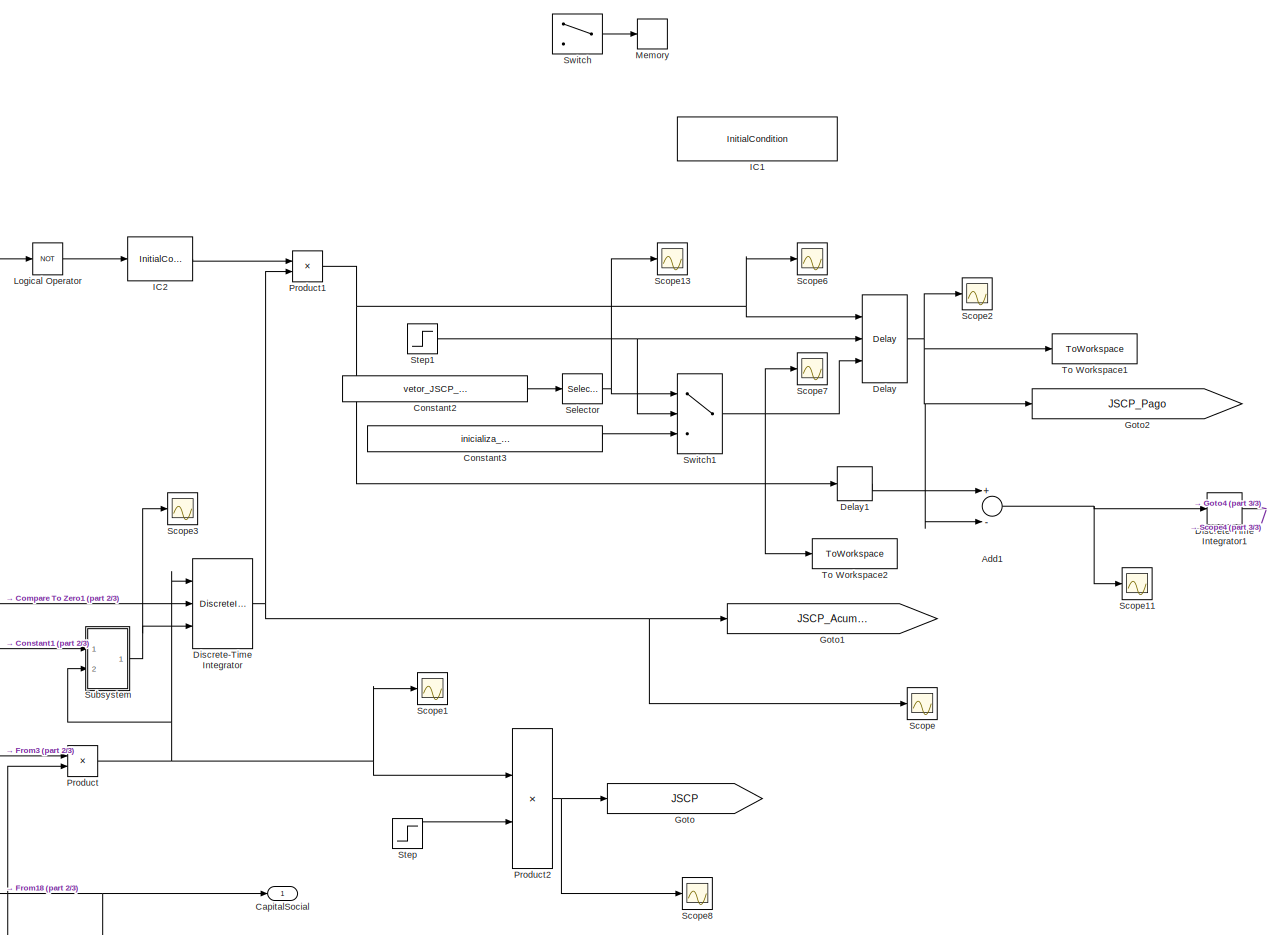
[diagram: Equity1/Capital Social - part 1/3, center side, full height]
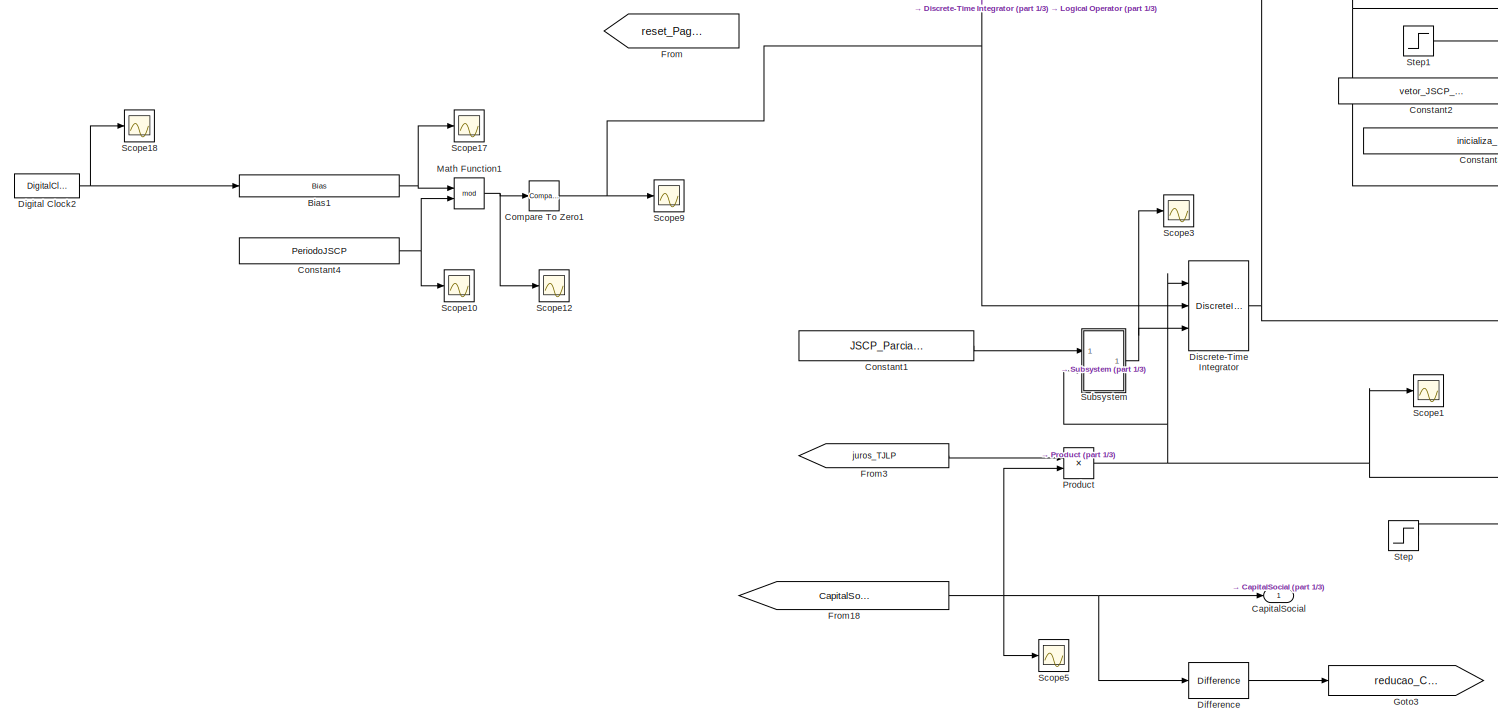
[diagram: Equity1/Capital Social - part 2/3, middle left region]
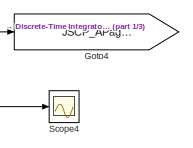
[diagram: Equity1/Capital Social - part 3/3, middle right region]
BLOCK [SubSystem] Equity1/Capital Social
  FunctionWithSeparateData = off
  MaskHideContents = off
  MinAlgLoopOccurrences = off
  Opaque = off
  Ports = [0, 1]
  PropExecContextOutsideSubsystem = off
  RTWSystemCode = Auto
  RequestExecContextInheritance = off
BLOCK [Sum] Equity1/Capital Social/Add1
  InputSameDT = off
  Inputs = +-
  OutDataTypeStr = Inherit: Inherit via internal rule
  Ports = [2, 1]
  SaturateOnIntegerOverflow = off
BLOCK [Bias] Equity1/Capital Social/Bias1
  Bias = mes_DataInicial-1
BLOCK [Outport] Equity1/Capital Social/CapitalSocial
  IconDisplay = Port number
BLOCK [Reference] Equity1/Capital Social/Compare To Zero1  REF=simulink/Logic and Bit
Operations/Compare
To Zero
  OutDataTypeStr = boolean
  Ports = [1, 1]
  SourceBlock = simulink/Logic and Bit\nOperations/Compare\nTo Zero
  SourceType = Compare To Zero
  ZeroCross = on
  relop = ~=
BLOCK [Constant] Equity1/Capital Social/Constant1
  Value = JSCP_ParcialPeriodo
BLOCK [Constant] Equity1/Capital Social/Constant2
  Value = vetor_JSCP_APagarInicial
BLOCK [Constant] Equity1/Capital Social/Constant3
  Value = inicializa_JSCP
BLOCK [Constant] Equity1/Capital Social/Constant4
  Value = PeriodoJSCP
BLOCK [Delay] Equity1/Capital Social/Delay
  DelayLength = mes_JSCP
  ExternalReset = Rising
  InitialCondition = 0
  InitialConditionSource = Input port
  InputPortMap = u0,r5,p4
  InputProcessing = Inherited
  Ports = [3, 1]
BLOCK [Delay] Equity1/Capital Social/Delay1
  DelayLength = 1
  InputPortMap = u0
  Ports = [1, 1]
BLOCK [Reference] Equity1/Capital Social/Difference  REF=simulink/Discrete/Difference
  DoSatur = off
  ICPrevInput = Capital_Social_Inicial
  InputProcessing = Inherited
  LockScale = off
  OutDataType = fixdt(1, 16)
  OutDataTypeStr = Inherit: Inherit via internal rule
  OutMax = []
  OutMin = []
  OutScaling = 2^-10
  OutputDataTypeScalingMode = Inherit via internal rule
  Ports = [1, 1]
  RndMeth = Floor
  SourceBlock = simulink/Discrete/Difference
  SourceType = Difference
BLOCK [DigitalClock] Equity1/Capital Social/Digital Clock2
BLOCK [DiscreteIntegrator] Equity1/Capital Social/Discrete-Time Integrator
  ExternalReset = rising
  ICPrevOutput = DiscIntNeverNeededParam
  ICPrevScaledInput = DiscIntNeverNeededParam
  InitialConditionSource = external
  IntegratorMethod = Integration: Backward Euler
  Ports = [3, 1]
BLOCK [DiscreteIntegrator] Equity1/Capital Social/Discrete-Time Integrator1
  ICPrevOutput = DiscIntNeverNeededParam
  ICPrevScaledInput = DiscIntNeverNeededParam
  InitialCondition = JSCP_RetidoInicial
  IntegratorMethod = Accumulation: Backward Euler
  Ports = [1, 1]
BLOCK [From] Equity1/Capital Social/From
  GotoTag = reset_Pagamento
  TagVisibility = global
BLOCK [From] Equity1/Capital Social/From18
  GotoTag = CapitalSocial
  TagVisibility = global
BLOCK [From] Equity1/Capital Social/From3
  GotoTag = juros_TJLP
  TagVisibility = global
BLOCK [Goto] Equity1/Capital Social/Goto
  GotoTag = JSCP
  TagVisibility = global
BLOCK [Goto] Equity1/Capital Social/Goto1
  GotoTag = JSCP_AcumuladoSemestral
  TagVisibility = global
BLOCK [Goto] Equity1/Capital Social/Goto2
  GotoTag = JSCP_Pago
  TagVisibility = global
BLOCK [Goto] Equity1/Capital Social/Goto3
  GotoTag = reducao_CapitalSocial
  TagVisibility = global
BLOCK [Goto] Equity1/Capital Social/Goto4
  GotoTag = JSCP_APagar
  TagVisibility = global
BLOCK [InitialCondition] Equity1/Capital Social/IC1
  Commented = on
  Value = IC_JSCP_APagarInicial
BLOCK [InitialCondition] Equity1/Capital Social/IC2
  Value = false
BLOCK [Logic] Equity1/Capital Social/Logical Operator
  AllPortsSameDT = off
  Operator = NOT
  OutDataTypeStr = boolean
  Ports = [1, 1]
BLOCK [Math] Equity1/Capital Social/Math Function1
  Operator = mod
  Ports = [2, 1]
BLOCK [Memory] Equity1/Capital Social/Memory
  Commented = on
  X0 = JSCP_A_Pagar_Inicial
BLOCK [Product] Equity1/Capital Social/Product
  InputSameDT = off
  OutDataTypeStr = Inherit: Inherit via internal rule
  Ports = [2, 1]
  RndMeth = Floor
  SaturateOnIntegerOverflow = off
BLOCK [Product] Equity1/Capital Social/Product1
  InputSameDT = off
  OutDataTypeStr = Inherit: Inherit via internal rule
  Ports = [2, 1]
  RndMeth = Floor
  SaturateOnIntegerOverflow = off
BLOCK [Product] Equity1/Capital Social/Product2
  InputSameDT = off
  OutDataTypeStr = Inherit: Inherit via internal rule
  Ports = [2, 1]
  SaturateOnIntegerOverflow = off
BLOCK [Scope] Equity1/Capital Social/Scope
  DataFormat = StructureWithTime
  Floating = off
  NumInputPorts = 1
  Ports = [1]
  SampleTime = 0
  SaveName = ScopeData20
  ShowLegends = off
  YMax = 65000
  YMin = 0
BLOCK [Scope] Equity1/Capital Social/Scope1
  DataFormat = StructureWithTime
  Floating = off
  NumInputPorts = 1
  Ports = [1]
  SampleTime = 0
  SaveName = ScopeData21
  ShowLegends = off
BLOCK [Scope] Equity1/Capital Social/Scope10
  DataFormat = StructureWithTime
  Floating = off
  NumInputPorts = 1
  Ports = [1]
  SampleTime = 0
  SaveName = ScopeData160
  ShowLegends = off
BLOCK [Scope] Equity1/Capital Social/Scope11
  DataFormat = StructureWithTime
  Floating = off
  NumInputPorts = 1
  Ports = [1]
  SampleTime = 0
  SaveName = ScopeData105
  ShowLegends = off
BLOCK [Scope] Equity1/Capital Social/Scope12
  DataFormat = StructureWithTime
  Floating = off
  NumInputPorts = 1
  Ports = [1]
  SampleTime = 0
  SaveName = ScopeData161
  ShowLegends = off
BLOCK [Scope] Equity1/Capital Social/Scope13
  DataFormat = StructureWithTime
  Floating = off
  NumInputPorts = 1
  Ports = [1]
  SampleTime = 0
  SaveName = ScopeData162
  ShowLegends = off
  YMax = 65000
  YMin = 0
BLOCK [Scope] Equity1/Capital Social/Scope17
  DataFormat = StructureWithTime
  Floating = off
  NumInputPorts = 1
  Ports = [1]
  SampleTime = 0
  SaveName = ScopeData157
  ShowLegends = off
BLOCK [Scope] Equity1/Capital Social/Scope18
  DataFormat = StructureWithTime
  Floating = off
  NumInputPorts = 1
  Ports = [1]
  SampleTime = 0
  SaveName = ScopeData158
  ShowLegends = off
BLOCK [Scope] Equity1/Capital Social/Scope2
  DataFormat = StructureWithTime
  Floating = off
  NumInputPorts = 1
  Ports = [1]
  SampleTime = 0
  SaveName = ScopeData37
  ShowLegends = off
  YMax = 65000
  YMin = 0
BLOCK [Scope] Equity1/Capital Social/Scope3
  DataFormat = StructureWithTime
  Floating = off
  NumInputPorts = 1
  Ports = [1]
  SampleTime = 0
  SaveName = ScopeData106
  ShowLegends = off
BLOCK [Scope] Equity1/Capital Social/Scope4
  DataFormat = StructureWithTime
  Floating = off
  NumInputPorts = 1
  Ports = [1]
  SampleTime = 0
  SaveName = ScopeData108
  ShowLegends = off
BLOCK [Scope] Equity1/Capital Social/Scope5
  DataFormat = StructureWithTime
  Floating = off
  NumInputPorts = 1
  Ports = [1]
  SampleTime = 0
  SaveName = ScopeData109
  ShowLegends = off
BLOCK [Scope] Equity1/Capital Social/Scope6
  DataFormat = StructureWithTime
  Floating = off
  NumInputPorts = 1
  Ports = [1]
  SampleTime = 0
  SaveName = ScopeData114
  ShowLegends = off
  YMax = 65000
  YMin = 0
BLOCK [Scope] Equity1/Capital Social/Scope7
  DataFormat = StructureWithTime
  Floating = off
  NumInputPorts = 1
  Ports = [1]
  SampleTime = 0
  SaveName = ScopeData115
  ShowLegends = off
  YMax = 65000
  YMin = 0
BLOCK [Scope] Equity1/Capital Social/Scope8
  DataFormat = StructureWithTime
  Floating = off
  NumInputPorts = 1
  Ports = [1]
  SampleTime = 0
  SaveName = ScopeData145
  ShowLegends = off
  YMax = 65000
  YMin = 0
BLOCK [Scope] Equity1/Capital Social/Scope9
  DataFormat = StructureWithTime
  Floating = off
  NumInputPorts = 1
  Ports = [1]
  SampleTime = 0
  SaveName = ScopeData159
  ShowLegends = off
BLOCK [Selector] Equity1/Capital Social/Selector
  IndexOptions = Select all,Index vector (dialog)
  Indices = [1 3],1:mes_JSCP
  InputPortWidth = 3
  NumberOfDimensions = 2
  OutputSizes = 1,1
  Ports = [1, 1]
BLOCK [Step] Equity1/Capital Social/Step
  SampleTime = 1
BLOCK [Step] Equity1/Capital Social/Step1
  SampleTime = 1
BLOCK [SubSystem] Equity1/Capital Social/Subsystem
  FunctionWithSeparateData = off
  MaskHideContents = off
  MinAlgLoopOccurrences = off
  Opaque = off
  Ports = [2, 1]
  PropExecContextOutsideSubsystem = off
  RTWSystemCode = Auto
  RequestExecContextInheritance = off
BLOCK [Outport] Equity1/Capital Social/Subsystem/Out1
  IconDisplay = Port number
BLOCK [Product] Equity1/Capital Social/Subsystem/Product3
  InputSameDT = off
  OutDataTypeStr = Inherit: Inherit via internal rule
  Ports = [2, 1]
  SaturateOnIntegerOverflow = off
BLOCK [Product] Equity1/Capital Social/Subsystem/Product4
  InputSameDT = off
  OutDataTypeStr = Inherit: Inherit via internal rule
  Ports = [2, 1]
  SaturateOnIntegerOverflow = off
BLOCK [Step] Equity1/Capital Social/Subsystem/Step1
  After = 0
  Before = 1
  SampleTime = 1
BLOCK [Step] Equity1/Capital Social/Subsystem/Step2
  SampleTime = 1
BLOCK [Inport] Equity1/Capital Social/Subsystem/T0
  IconDisplay = Port number
BLOCK [Inport] Equity1/Capital Social/Subsystem/T1
  IconDisplay = Port number
  Port = 2
BLOCK [Sum] Equity1/Capital Social/Subsystem/Total5
  InputSameDT = off
  Inputs = +|+
  OutDataTypeStr = Inherit: Inherit via internal rule
  Ports = [2, 1]
  SaturateOnIntegerOverflow = off
BLOCK [Switch] Equity1/Capital Social/Switch
  Commented = on
  Criteria = u2 ~= 0
  InputSameDT = off
  SaturateOnIntegerOverflow = off
BLOCK [Switch] Equity1/Capital Social/Switch1
  Criteria = u2 > Threshold
  InputSameDT = off
  SaturateOnIntegerOverflow = off
BLOCK [ToWorkspace] Equity1/Capital Social/To Workspace1
  MaxDataPoints = inf
  Ports = [1]
  SampleTime = -1
  SaveFormat = Timeseries
  VariableName = JSCP_Pago
BLOCK [ToWorkspace] Equity1/Capital Social/To Workspace2
  MaxDataPoints = inf
  Ports = [1]
  SampleTime = -1
  VariableName = teste_selector
BLOCK [Reference] Equity1/Difference1  REF=simulink/Discrete/Difference
  DoSatur = off
  ICPrevInput = 0
  InputProcessing = Inherited
  LockScale = off
  OutDataType = fixdt(1, 16)
  OutDataTypeStr = Inherit: Inherit via internal rule
  OutMax = []
  OutMin = []
  OutScaling = 2^-10
  OutputDataTypeScalingMode = Inherit via internal rule
  Ports = [1, 1]
  RndMeth = Floor
  SourceBlock = simulink/Discrete/Difference
  SourceType = Difference
BLOCK [Reference] Equity1/Difference2  REF=simulink/Discrete/Difference
  DoSatur = off
  ICPrevInput = 0
  InputProcessing = Inherited
  LockScale = off
  OutDataType = fixdt(1, 16)
  OutDataTypeStr = Inherit: Inherit via internal rule
  OutMax = []
  OutMin = []
  OutScaling = 2^-10
  OutputDataTypeScalingMode = Inherit via internal rule
  Ports = [1, 1]
  RndMeth = Floor
  SourceBlock = simulink/Discrete/Difference
  SourceType = Difference
BLOCK [Reference] Equity1/Difference3  REF=simulink/Discrete/Difference
  DoSatur = off
  ICPrevInput = 0
  InputProcessing = Inherited
  LockScale = off
  OutDataType = fixdt(1, 16)
  OutDataTypeStr = Inherit: Inherit via internal rule
  OutMax = []
  OutMin = []
  OutScaling = 2^-10
  OutputDataTypeScalingMode = Inherit via internal rule
  Ports = [1, 1]
  RndMeth = Floor
  SourceBlock = simulink/Discrete/Difference
  SourceType = Difference
BLOCK [Reference] Equity1/Difference4  REF=simulink/Discrete/Difference
  DoSatur = off
  ICPrevInput = 0
  InputProcessing = Inherited
  LockScale = off
  OutDataType = fixdt(1, 16)
  OutDataTypeStr = Inherit: Inherit via internal rule
  OutMax = []
  OutMin = []
  OutScaling = 2^-10
  OutputDataTypeScalingMode = Inherit via internal rule
  Ports = [1, 1]
  RndMeth = Floor
  SourceBlock = simulink/Discrete/Difference
  SourceType = Difference
BLOCK [Reference] Equity1/Difference5  REF=simulink/Discrete/Difference
  DoSatur = off
  ICPrevInput = 0
  InputProcessing = Inherited
  LockScale = off
  OutDataType = fixdt(1, 16)
  OutDataTypeStr = Inherit: Inherit via internal rule
  OutMax = []
  OutMin = []
  OutScaling = 2^-10
  OutputDataTypeScalingMode = Inherit via internal rule
  Ports = [1, 1]
  RndMeth = Floor
  SourceBlock = simulink/Discrete/Difference
  SourceType = Difference
BLOCK [Outport] Equity1/Equity    
  IconDisplay = Port number
BLOCK [SubSystem] Equity1/IR diferido
  Commented = on
  FunctionWithSeparateData = off
  MaskHideContents = off
  MinAlgLoopOccurrences = off
  Opaque = off
  Ports = [0, 1]
  PropExecContextOutsideSubsystem = off
  RTWSystemCode = Auto
  RequestExecContextInheritance = off
BLOCK [Bias] Equity1/IR diferido/Bias
  Bias = mes_DataInicial-1
BLOCK [Reference] Equity1/IR diferido/Compare To Zero  REF=simulink/Logic and Bit
Operations/Compare
To Zero
  OutDataTypeStr = boolean
  Ports = [1, 1]
  SourceBlock = simulink/Logic and Bit\nOperations/Compare\nTo Zero
  SourceType = Compare To Zero
  ZeroCross = on
  relop = ~=
BLOCK [Constant] Equity1/IR diferido/Constant
  Value = PeriodoIR_diferido
BLOCK [Constant] Equity1/IR diferido/Constant1
  Value = Taxa_diferimento
BLOCK [Constant] Equity1/IR diferido/Constant2
  Value = IR_diferido_acumulado_inicial
BLOCK [Delay] Equity1/IR diferido/Delay
  DelayLength = 1
  InputPortMap = u0
  Ports = [1, 1]
BLOCK [DigitalClock] Equity1/IR diferido/Digital Clock1
BLOCK [DiscreteIntegrator] Equity1/IR diferido/Discrete-Time Integrator2
  ExternalReset = rising
  ICPrevOutput = DiscIntNeverNeededParam
  ICPrevScaledInput = DiscIntNeverNeededParam
  InitialConditionSource = external
  IntegratorMethod = Accumulation: Backward Euler
  Ports = [3, 1]
BLOCK [From] Equity1/IR diferido/From3
  GotoTag = ImpostoRenda_Contabil
  IconDisplay = Signal name
  TagVisibility = global
BLOCK [Goto] Equity1/IR diferido/Goto1
  GotoTag = IR_pago_final
  TagVisibility = global
BLOCK [Goto] Equity1/IR diferido/Goto3
  GotoTag = IR_diferido
  TagVisibility = global
BLOCK [InitialCondition] Equity1/IR diferido/IC2
  Value = false
BLOCK [Outport] Equity1/IR diferido/IR diferido
  IconDisplay = Port number
BLOCK [Logic] Equity1/IR diferido/Logical Operator
  AllPortsSameDT = off
  Operator = NOT
  OutDataTypeStr = boolean
  Ports = [1, 1]
BLOCK [Math] Equity1/IR diferido/Math Function
  Operator = mod
  Ports = [2, 1]
BLOCK [Product] Equity1/IR diferido/Product
  InputSameDT = off
  OutDataTypeStr = Inherit: Inherit via internal rule
  Ports = [2, 1]
  RndMeth = Floor
  SaturateOnIntegerOverflow = off
BLOCK [Product] Equity1/IR diferido/Product1
  InputSameDT = off
  OutDataTypeStr = Inherit: Inherit via internal rule
  Ports = [2, 1]
  RndMeth = Floor
  SaturateOnIntegerOverflow = off
BLOCK [Scope] Equity1/IR diferido/Scope
  DataFormat = StructureWithTime
  Floating = off
  NumInputPorts = 1
  Ports = [1]
  SampleTime = 0
  SaveName = ScopeData120
  ShowLegends = off
BLOCK [Scope] Equity1/IR diferido/Scope11
  DataFormat = StructureWithTime
  Floating = off
  NumInputPorts = 1
  Ports = [1]
  SampleTime = 0
  SaveName = ScopeData104
  ShowLegends = off
BLOCK [Scope] Equity1/IR diferido/Scope12  
  DataFormat = StructureWithTime
  Floating = off
  NumInputPorts = 1
  Ports = [1]
  SampleTime = 0
  SaveName = ScopeData121
  ShowLegends = off
BLOCK [Scope] Equity1/IR diferido/Scope14
  DataFormat = StructureWithTime
  Floating = off
  NumInputPorts = 1
  Ports = [1]
  SampleTime = 0
  SaveName = ScopeData122
  ShowLegends = off
BLOCK [Scope] Equity1/IR diferido/Scope2
  DataFormat = StructureWithTime
  Floating = off
  NumInputPorts = 1
  Ports = [1]
  SampleTime = 0
  SaveName = ScopeData124
  ShowLegends = off
BLOCK [Scope] Equity1/IR diferido/Scope4
  DataFormat = StructureWithTime
  Floating = off
  NumInputPorts = 1
  Ports = [1]
  SampleTime = 0
  SaveName = ScopeData123
  ShowLegends = off
BLOCK [SubSystem] Equity1/IR diferido/Subsystem
  FunctionWithSeparateData = off
  MaskHideContents = off
  MinAlgLoopOccurrences = off
  Opaque = off
  Ports = [2, 1]
  PropExecContextOutsideSubsystem = off
  RTWSystemCode = Auto
  RequestExecContextInheritance = off
BLOCK [Outport] Equity1/IR diferido/Subsystem/Out1
  IconDisplay = Port number
BLOCK [Product] Equity1/IR diferido/Subsystem/Product3
  InputSameDT = off
  OutDataTypeStr = Inherit: Inherit via internal rule
  Ports = [2, 1]
  SaturateOnIntegerOverflow = off
BLOCK [Product] Equity1/IR diferido/Subsystem/Product4
  InputSameDT = off
  OutDataTypeStr = Inherit: Inherit via internal rule
  Ports = [2, 1]
  SaturateOnIntegerOverflow = off
BLOCK [Step] Equity1/IR diferido/Subsystem/Step1
  After = 0
  Before = 1
  SampleTime = 1
BLOCK [Step] Equity1/IR diferido/Subsystem/Step2
  SampleTime = 1
BLOCK [Inport] Equity1/IR diferido/Subsystem/T0
  IconDisplay = Port number
BLOCK [Inport] Equity1/IR diferido/Subsystem/T1
  IconDisplay = Port number
  Port = 2
BLOCK [Sum] Equity1/IR diferido/Subsystem/Total5
  InputSameDT = off
  Inputs = +|+
  OutDataTypeStr = Inherit: Inherit via internal rule
  Ports = [2, 1]
  SaturateOnIntegerOverflow = off
BLOCK [SubSystem] Equity1/Lucro Retido Total
  FunctionWithSeparateData = off
  MaskHideContents = off
  MinAlgLoopOccurrences = off
  Opaque = off
  Ports = [0, 1]
  PropExecContextOutsideSubsystem = off
  RTWSystemCode = Auto
  RequestExecContextInheritance = off
BLOCK [Sum] Equity1/Lucro Retido Total/Add
  InputSameDT = off
  Inputs = ++++
  OutDataTypeStr = Inherit: Inherit via internal rule
  Ports = [4, 1]
  SaturateOnIntegerOverflow = off
BLOCK [From] Equity1/Lucro Retido Total/From1
  GotoTag = JSCP_AcumuladoSemestral
  IconDisplay = Signal name
  TagVisibility = global
BLOCK [From] Equity1/Lucro Retido Total/From2
  GotoTag = Lucro_Retido
  IconDisplay = Signal name
  TagVisibility = global
BLOCK [From] Equity1/Lucro Retido Total/From3
  GotoTag = LucroAcumSemestral
  IconDisplay = Signal name
  TagVisibility = global
BLOCK [From] Equity1/Lucro Retido Total/From4
  GotoTag = JSCP_APagar
  IconDisplay = Signal name
  TagVisibility = global
BLOCK [Goto] Equity1/Lucro Retido Total/Goto3
  GotoTag = Lucro_Retido_Total
  TagVisibility = global
BLOCK [Outport] Equity1/Lucro Retido Total/Lucro Retido
  IconDisplay = Port number
BLOCK [Scope] Equity1/Lucro Retido Total/Scope1
  DataFormat = StructureWithTime
  Floating = off
  NumInputPorts = 1
  Ports = [1]
  SampleTime = 0
  SaveName = ScopeData140
  ShowLegends = off
BLOCK [Scope] Equity1/Lucro Retido Total/Scope11
  DataFormat = StructureWithTime
  Floating = off
  NumInputPorts = 1
  Ports = [1]
  SampleTime = 0
  SaveName = ScopeData104
  ShowLegends = off
BLOCK [Scope] Equity1/Lucro Retido Total/Scope2
  DataFormat = StructureWithTime
  Floating = off
  NumInputPorts = 1
  Ports = [1]
  SampleTime = 0
  SaveName = ScopeData141
  ShowLegends = off
BLOCK [Scope] Equity1/Lucro Retido Total/Scope3
  DataFormat = StructureWithTime
  Floating = off
  NumInputPorts = 1
  Ports = [1]
  SampleTime = 0
  SaveName = ScopeData142
  ShowLegends = off
BLOCK [Scope] Equity1/Lucro Retido Total/Scope4
  DataFormat = StructureWithTime
  Floating = off
  NumInputPorts = 1
  Ports = [1]
  SampleTime = 0
  SaveName = ScopeData143
  ShowLegends = off
BLOCK [SubSystem] Equity1/Reserva
  FunctionWithSeparateData = off
  MaskHideContents = off
  MinAlgLoopOccurrences = off
  Opaque = off
  Ports = [0, 1]
  PropExecContextOutsideSubsystem = off
  RTWSystemCode = Auto
  RequestExecContextInheritance = off
BLOCK [Constant] Equity1/Reserva/Constant1
  Value = Taxa_Anual_Reserva
BLOCK [Constant] Equity1/Reserva/Constant2
  Value = Reserva_Lucros_Inicial
BLOCK [Constant] Equity1/Reserva/Constant3
  Value = Reserva_Capital_Inicial
BLOCK [Reference] Equity1/Reserva/Difference  REF=simulink/Discrete/Difference
  DoSatur = off
  ICPrevInput = Reserva_Lucros_Inicial
  InputProcessing = Inherited
  LockScale = off
  OutDataType = fixdt(1, 16)
  OutDataTypeStr = Inherit: Inherit via internal rule
  OutMax = []
  OutMin = []
  OutScaling = 2^-10
  OutputDataTypeScalingMode = Inherit via internal rule
  Ports = [1, 1]
  RndMeth = Floor
  SourceBlock = simulink/Discrete/Difference
  SourceType = Difference
BLOCK [DiscreteIntegrator] Equity1/Reserva/Discrete-Time Integrator
  ICPrevOutput = DiscIntNeverNeededParam
  ICPrevScaledInput = DiscIntNeverNeededParam
  InitialConditionSource = external
  IntegratorMethod = Accumulation: Backward Euler
  Ports = [2, 1]
BLOCK [From] Equity1/Reserva/From1
  GotoTag = Lucro_Liquido
  TagVisibility = global
BLOCK [Goto] Equity1/Reserva/Goto1
  GotoTag = Reserva_Lucros_fluxo
  TagVisibility = global
BLOCK [Goto] Equity1/Reserva/Goto2
  GotoTag = Reserva
  TagVisibility = global
BLOCK [MinMax] Equity1/Reserva/MinMax
  InputSameDT = off
  Inputs = 2
  Ports = [2, 1]
  SaturateOnIntegerOverflow = off
BLOCK [Product] Equity1/Reserva/Product
  InputSameDT = off
  OutDataTypeStr = Inherit: Inherit via internal rule
  Ports = [2, 1]
  RndMeth = Floor
  SaturateOnIntegerOverflow = off
BLOCK [Outport] Equity1/Reserva/Reserva Lucro e Capital
  IconDisplay = Port number
BLOCK [Saturate] Equity1/Reserva/Saturation
  InputPortMap = u0
  LowerLimit = 0
  Ports = [1, 1]
  UpperLimit = Limite_Reserva_Lucros*Capital_Social_Inicial
BLOCK [Saturate] Equity1/Reserva/Saturation1
  InputPortMap = u0
  LowerLimit = 0
  Ports = [1, 1]
  UpperLimit = Limite_Reserva_Lucros_Capital*Capital_Social_Inicial
BLOCK [Scope] Equity1/Reserva/Scope
  DataFormat = StructureWithTime
  Floating = off
  NumInputPorts = 1
  Ports = [1]
  SampleTime = 0
  SaveName = ScopeData85
  ShowLegends = off
BLOCK [Sum] Equity1/Reserva/Sum
  InputSameDT = off
  OutDataTypeStr = Inherit: Inherit via internal rule
  Ports = [2, 1]
  SaturateOnIntegerOverflow = off
BLOCK [Sum] Equity1/Reserva/Sum1
  InputSameDT = off
  OutDataTypeStr = Inherit: Inherit via internal rule
  Ports = [2, 1]
  SaturateOnIntegerOverflow = off
BLOCK [Sum] Equity1/Reserva/Sum2
  InputSameDT = off
  Inputs = -+
  OutDataTypeStr = Inherit: Inherit via internal rule
  Ports = [2, 1]
  SaturateOnIntegerOverflow = off
BLOCK [Scope] Equity1/Scope
  DataFormat = StructureWithTime
  Floating = off
  NumInputPorts = 1
  Ports = [1]
  SampleTime = 0
  SaveName = ScopeData81
  ShowLegends = off
BLOCK [Scope] Equity1/Scope1
  DataFormat = StructureWithTime
  Floating = off
  NumInputPorts = 1
  Ports = [1]
  SampleTime = 0
  SaveName = ScopeData82
  ShowLegends = off
BLOCK [Scope] Equity1/Scope10
  DataFormat = StructureWithTime
  Floating = off
  NumInputPorts = 1
  Ports = [1]
  SampleTime = 0
  SaveName = ScopeData153
  ShowLegends = off
BLOCK [Scope] Equity1/Scope2
  DataFormat = StructureWithTime
  Floating = off
  NumInputPorts = 1
  Ports = [1]
  SampleTime = 0
  SaveName = ScopeData83
  ShowLegends = off
BLOCK [Scope] Equity1/Scope3
  DataFormat = StructureWithTime
  Floating = off
  NumInputPorts = 1
  Ports = [1]
  SampleTime = 0
  SaveName = ScopeData84
  ShowLegends = off
BLOCK [Scope] Equity1/Scope4
  DataFormat = StructureWithTime
  Floating = off
  NumInputPorts = 1
  Ports = [1]
  SampleTime = 0
  SaveName = ScopeData36
  ShowLegends = off
BLOCK [Scope] Equity1/Scope5
  DataFormat = StructureWithTime
  Floating = off
  NumInputPorts = 1
  Ports = [1]
  SampleTime = 0
  SaveName = ScopeData119
  ShowLegends = off
BLOCK [Scope] Equity1/Scope6
  DataFormat = StructureWithTime
  Floating = off
  NumInputPorts = 1
  Ports = [1]
  SampleTime = 0
  SaveName = ScopeData149
  ShowLegends = off
BLOCK [Scope] Equity1/Scope7
  DataFormat = StructureWithTime
  Floating = off
  NumInputPorts = 1
  Ports = [1]
  SampleTime = 0
  SaveName = ScopeData150
  ShowLegends = off
BLOCK [Scope] Equity1/Scope8
  DataFormat = StructureWithTime
  Floating = off
  NumInputPorts = 1
  Ports = [1]
  SampleTime = 0
  SaveName = ScopeData151
  ShowLegends = off
BLOCK [Scope] Equity1/Scope9
  DataFormat = StructureWithTime
  Floating = off
  NumInputPorts = 1
  Ports = [1]
  SampleTime = 0
  SaveName = ScopeData152
  ShowLegends = off
BLOCK [ToWorkspace] Equity1/To Workspace
  FixptAsFi = on
  MaxDataPoints = inf
  Ports = [1]
  SampleTime = -1
  SaveFormat = Timeseries
  VariableName = Ajustes
BLOCK [ToWorkspace] Equity1/To Workspace1
  FixptAsFi = on
  MaxDataPoints = inf
  Ports = [1]
  SampleTime = -1
  SaveFormat = Timeseries
  VariableName = Reserva
BLOCK [ToWorkspace] Equity1/To Workspace2
  FixptAsFi = on
  MaxDataPoints = inf
  Ports = [1]
  SampleTime = -1
  SaveFormat = Timeseries
  VariableName = Capital_Social
BLOCK [ToWorkspace] Equity1/To Workspace3
  FixptAsFi = on
  MaxDataPoints = inf
  Ports = [1]
  SampleTime = -1
  SaveFormat = Timeseries
  VariableName = Lucro_Retido
BLOCK [ToWorkspace] Equity1/To Workspace4
  FixptAsFi = on
  MaxDataPoints = inf
  Ports = [1]
  SampleTime = -1
  SaveFormat = Timeseries
  VariableName = IR_diferido
BLOCK [SubSystem] Equity1/Total Shareholder's Equity
  FunctionWithSeparateData = off
  MaskHideContents = off
  MinAlgLoopOccurrences = off
  Opaque = off
  Ports = [1, 1]
  PropExecContextOutsideSubsystem = off
  RTWSystemCode = Auto
  RequestExecContextInheritance = off
BLOCK [Goto] Equity1/Total Shareholder's Equity/Goto1
  GotoTag = TotalShareholdersEquity
  TagVisibility = global
BLOCK [Inport] Equity1/Total Shareholder's Equity/in
  IconDisplay = Port number
BLOCK [Outport] Equity1/Total Shareholder's Equity/out
  IconDisplay = Port number
BLOCK [Sum] Equity1/Total5
  InputSameDT = off
  Inputs = +|+|+|+|+
  OutDataTypeStr = Inherit: Inherit via internal rule
  Ports = [5, 1]
  SaturateOnIntegerOverflow = off
BLOCK [SubSystem] Fluxo de caixa direto
  Commented = on
  FunctionWithSeparateData = off
  MaskHideContents = off
  MinAlgLoopOccurrences = off
  Opaque = off
  Ports = []
  PropExecContextOutsideSubsystem = off
  RTWSystemCode = Auto
  RequestExecContextInheritance = off
BLOCK [Sum] Fluxo de caixa direto/Add
  Commented = on
  InputSameDT = off
  Inputs = -+
  OutDataTypeStr = Inherit: Inherit via internal rule
  Ports = [2, 1]
  SaturateOnIntegerOverflow = off
BLOCK [Sum] Fluxo de caixa direto/Add1
  InputSameDT = off
  Inputs = ++-------
  OutDataTypeStr = Inherit: Inherit via internal rule
  Ports = [9, 1]
  SaturateOnIntegerOverflow = off
BLOCK [Sum] Fluxo de caixa direto/Add2
  InputSameDT = off
  Inputs = +-
  OutDataTypeStr = Inherit: Inherit via internal rule
  Ports = [2, 1]
  SaturateOnIntegerOverflow = off
BLOCK [Sum] Fluxo de caixa direto/Add3
  InputSameDT = off
  Inputs = -+
  OutDataTypeStr = Inherit: Inherit via internal rule
  Ports = [2, 1]
  SaturateOnIntegerOverflow = off
BLOCK [Constant] Fluxo de caixa direto/Constant
BLOCK [Constant] Fluxo de caixa direto/Constant1
  Value = Taxa_diferimento
BLOCK [From] Fluxo de caixa direto/From
  GotoTag = EBITDA
  TagVisibility = global
BLOCK [From] Fluxo de caixa direto/From1
  GotoTag = ImpostoRenda_Contabil
  TagVisibility = global
BLOCK [From] Fluxo de caixa direto/From10
  GotoTag = Premio_ReducaoCapital
  IconDisplay = Signal name
  TagVisibility = global
BLOCK [From] Fluxo de caixa direto/From11
  GotoTag = Amortizacao_Total_Dividas
  TagVisibility = global
BLOCK [From] Fluxo de caixa direto/From2
  Commented = on
  GotoTag = deltaMtMPassivosLongoPrazo
  TagVisibility = global
BLOCK [From] Fluxo de caixa direto/From3
  Commented = on
  GotoTag = PnLPassivosLongoPrazoNonCash
  TagVisibility = global
BLOCK [From] Fluxo de caixa direto/From4
  GotoTag = Dividendos_Pago
  TagVisibility = global
BLOCK [From] Fluxo de caixa direto/From5
  GotoTag = JSCP_Pago
  TagVisibility = global
BLOCK [From] Fluxo de caixa direto/From6
  GotoTag = deltaMtMCashCashEquivs
  TagVisibility = global
BLOCK [From] Fluxo de caixa direto/From7
  GotoTag = Premio_PrePagamento
  IconDisplay = Signal name
  TagVisibility = global
BLOCK [From] Fluxo de caixa direto/From8
  GotoTag = IR_pago_final
  TagVisibility = global
BLOCK [From] Fluxo de caixa direto/From9
  GotoTag = PnLCashCashEquivs
  TagVisibility = global
BLOCK [Goto] Fluxo de caixa direto/Goto1
  GotoTag = ImpostoRendaPago
  TagVisibility = global
BLOCK [Goto] Fluxo de caixa direto/Goto11
  GotoTag = FluxoCaixa
  TagVisibility = global
BLOCK [Product] Fluxo de caixa direto/Product
  InputSameDT = off
  OutDataTypeStr = Inherit: Inherit via internal rule
  Ports = [2, 1]
  RndMeth = Floor
  SaturateOnIntegerOverflow = off
BLOCK [Scope] Fluxo de caixa direto/Scope
  Floating = off
  NumInputPorts = 1
  Ports = [1]
  SaveName = ScopeData47
  ShowLegends = off
BLOCK [Scope] Fluxo de caixa direto/Scope1
  Floating = off
  NumInputPorts = 1
  Ports = [1]
  SaveName = ScopeData48
  ShowLegends = off
BLOCK [Scope] Fluxo de caixa direto/Scope10
  Commented = on
  Floating = off
  NumInputPorts = 1
  Ports = [1]
  SaveName = ScopeData138
  ShowLegends = off
BLOCK [Scope] Fluxo de caixa direto/Scope11
  Commented = on
  Floating = off
  NumInputPorts = 1
  Ports = [1]
  SaveName = ScopeData139
  ShowLegends = off
BLOCK [Scope] Fluxo de caixa direto/Scope12
  Floating = off
  NumInputPorts = 1
  Ports = [1]
  SaveName = ScopeData168
  ShowLegends = off
BLOCK [Scope] Fluxo de caixa direto/Scope2
  Floating = off
  NumInputPorts = 1
  Ports = [1]
  SaveName = ScopeData53
  ShowLegends = off
BLOCK [Scope] Fluxo de caixa direto/Scope3
  Floating = off
  NumInputPorts = 1
  Ports = [1]
  SaveName = ScopeData50
  ShowLegends = off
  TimeRange = 10
BLOCK [Scope] Fluxo de caixa direto/Scope4
  Floating = off
  NumInputPorts = 1
  Ports = [1]
  SaveName = ScopeData52
  ShowLegends = off
  TimeRange = 450
  YMax = 2e-06
  YMin = -2e-06
BLOCK [Scope] Fluxo de caixa direto/Scope5
  Floating = off
  NumInputPorts = 1
  Ports = [1]
  SaveName = ScopeData125
  ShowLegends = off
BLOCK [Scope] Fluxo de caixa direto/Scope6
  Floating = off
  NumInputPorts = 1
  Ports = [1]
  SaveName = ScopeData66
  ShowLegends = off
  TimeRange = 450
  YMax = 15000000000
  YMin = -15000000000
BLOCK [Scope] Fluxo de caixa direto/Scope7
  Floating = off
  NumInputPorts = 1
  Ports = [1]
  SaveName = ScopeData68
  ShowLegends = off
BLOCK [Scope] Fluxo de caixa direto/Scope8
  Floating = off
  NumInputPorts = 1
  Ports = [1]
  SaveName = ScopeData69
  ShowLegends = off
BLOCK [Scope] Fluxo de caixa direto/Scope9
  Commented = on
  Floating = off
  NumInputPorts = 1
  Ports = [1]
  SaveName = ScopeData137
  ShowLegends = off
BLOCK [ToWorkspace] Fluxo de caixa direto/To Workspace
  FixptAsFi = on
  MaxDataPoints = inf
  Ports = [1]
  SampleTime = -1
  SaveFormat = Timeseries
  VariableName = deltaMtMCashCashEquivs
BLOCK [ToWorkspace] Fluxo de caixa direto/To Workspace1
  FixptAsFi = on
  MaxDataPoints = inf
  Ports = [1]
  SampleTime = -1
  SaveFormat = Timeseries
  VariableName = FluxoCaixa
BLOCK [ToWorkspace] Fluxo de caixa direto/To Workspace2
  FixptAsFi = on
  MaxDataPoints = inf
  Ports = [1]
  SampleTime = -1
  SaveFormat = Timeseries
  VariableName = diff_FluxoCaixa
BLOCK [SubSystem] Fluxo de caixa novo
  FunctionWithSeparateData = off
  MaskHideContents = off
  MinAlgLoopOccurrences = off
  Opaque = off
  Ports = []
  PropExecContextOutsideSubsystem = off
  RTWSystemCode = Auto
  RequestExecContextInheritance = off
BLOCK [Sum] Fluxo de caixa novo/Add1
  InputSameDT = off
  Inputs = +-+++++++---+-+-
  OutDataTypeStr = Inherit: Inherit via internal rule
  Ports = [16, 1]
  SaturateOnIntegerOverflow = off
BLOCK [DiscreteIntegrator] Fluxo de caixa novo/Discrete-Time Integrator2
  ICPrevOutput = DiscIntNeverNeededParam
  ICPrevScaledInput = DiscIntNeverNeededParam
  InitialCondition = CaixaInicial
  IntegratorMethod = Accumulation: Backward Euler
  Ports = [1, 1]
BLOCK [From] Fluxo de caixa novo/From1
  GotoTag = Depreciacao
  IconDisplay = Signal name
  TagVisibility = global
BLOCK [From] Fluxo de caixa novo/From10
  GotoTag = Lucro_Liquido
  IconDisplay = Signal name
  TagVisibility = global
BLOCK [From] Fluxo de caixa novo/From11
  GotoTag = JurosCash_Total_Dividas
  IconDisplay = Signal name
  TagVisibility = global
BLOCK [From] Fluxo de caixa novo/From12
  GotoTag = CorrecaoCash_Total_Dividas
  IconDisplay = Signal name
  TagVisibility = global
BLOCK [From] Fluxo de caixa novo/From13
  GotoTag = NominalInicial_Total_Dividas
  IconDisplay = Signal name
  TagVisibility = global
BLOCK [From] Fluxo de caixa novo/From14
  GotoTag = fees_debentures
  IconDisplay = Signal name
BLOCK [From] Fluxo de caixa novo/From15
  GotoTag = PnLnonCash_Total_Dividas
  IconDisplay = Signal name
  TagVisibility = global
BLOCK [From] Fluxo de caixa novo/From16
  GotoTag = Dividendos_Pago
  IconDisplay = Signal name
  TagVisibility = global
BLOCK [From] Fluxo de caixa novo/From2
  GotoTag = minorityInterest
  IconDisplay = Signal name
  TagVisibility = global
BLOCK [From] Fluxo de caixa novo/From3
  GotoTag = variacaoAtivosCirculantes
  IconDisplay = Signal name
  TagVisibility = global
BLOCK [From] Fluxo de caixa novo/From4
  GotoTag = variacaoPassivosCirculantes
  IconDisplay = Signal name
  TagVisibility = global
BLOCK [From] Fluxo de caixa novo/From5
  GotoTag = Contingencia
  IconDisplay = Signal name
  TagVisibility = global
BLOCK [From] Fluxo de caixa novo/From6
  GotoTag = returnOfCapitals_dividendsFromInvestments
  IconDisplay = Signal name
  TagVisibility = global
BLOCK [From] Fluxo de caixa novo/From7
  GotoTag = cashFlowsFromInvestinglActivities
  IconDisplay = Signal name
  TagVisibility = global
BLOCK [From] Fluxo de caixa novo/From8
  GotoTag = cashFlowsFromFinancialActivities_Outros
  IconDisplay = Signal name
  TagVisibility = global
BLOCK [From] Fluxo de caixa novo/From9
  GotoTag = Amortizacao_Total_Dividas
  IconDisplay = Signal name
  TagVisibility = global
BLOCK [Goto] Fluxo de caixa novo/Goto1
  GotoTag = Caixa
  TagVisibility = global
BLOCK [Goto] Fluxo de caixa novo/Goto58
  GotoTag = cashFlow
  TagVisibility = global
BLOCK [Scope] Fluxo de caixa novo/Scope3
  Floating = off
  NumInputPorts = 1
  Ports = [1]
  SaveName = ScopeData50
  ShowLegends = off
  TimeRange = 10
BLOCK [Scope] Fluxo de caixa novo/Scope4
  Floating = off
  NumInputPorts = 1
  Ports = [1]
  SaveName = ScopeData52
  ShowLegends = off
  TimeRange = 450
  YMax = 2e-06
  YMin = -2e-06
BLOCK [From] From1
  GotoTag = Deducoes_Operacionais
  TagVisibility = global
BLOCK [From] From10
  GotoTag = ImpostoRenda_Contabil
  TagVisibility = global
BLOCK [From] From11
  GotoTag = Lucro_Liquido
  TagVisibility = global
BLOCK [From] From12
  GotoTag = MtMPassivosLongoPrazo
  TagVisibility = global
BLOCK [From] From13
  GotoTag = Caixa
  TagVisibility = global
BLOCK [From] From14
  GotoTag = PPE
  TagVisibility = global
BLOCK [From] From15
  GotoTag = Passivos_CurtoPrazo
  TagVisibility = global
BLOCK [From] From16
  GotoTag = Ajustes
  TagVisibility = global
BLOCK [From] From17
  GotoTag = Reserva
  TagVisibility = global
BLOCK [From] From18
  GotoTag = CapitalSocial
  TagVisibility = global
BLOCK [From] From19
  GotoTag = Lucro_Retido_Total
  TagVisibility = global
BLOCK [From] From2
  GotoTag = Receita_Liquida
  TagVisibility = global
BLOCK [From] From20
  GotoTag = PnLPassivosLongoPrazoCash
  TagVisibility = global
BLOCK [From] From21
  GotoTag = PnLPassivosLongoPrazoNonCash
  TagVisibility = global
BLOCK [From] From22
  GotoTag = Debt_EBITDA
  TagVisibility = global
BLOCK [From] From23
  GotoTag = EBITDA_FinancialResult
  TagVisibility = global
BLOCK [From] From24
  GotoTag = Debt_DebtEquity
  TagVisibility = global
BLOCK [From] From25
  GotoTag = JSCP
  TagVisibility = global
BLOCK [From] From26
  GotoTag = JSCP_Pago
  TagVisibility = global
BLOCK [From] From27
  GotoTag = Dividendos_Pago
  TagVisibility = global
BLOCK [From] From28
  GotoTag = ImpostoRenda_Contabil
  TagVisibility = global
BLOCK [From] From29
  GotoTag = IR_diferido
BLOCK [From] From3
  GotoTag = Despesas
  TagVisibility = global
BLOCK [From] From30
  GotoTag = Amortizacao_Total_Dividas
  TagVisibility = global
BLOCK [From] From31
  GotoTag = reducao_CapitalSocial
  IconDisplay = Signal name
  TagVisibility = global
BLOCK [From] From32
  GotoTag = PnLPassivosLongoPrazo
  IconDisplay = Signal name
  TagVisibility = global
BLOCK [From] From33
  GotoTag = minorityInterest
  TagVisibility = global
BLOCK [From] From4
  GotoTag = EBITDA
  TagVisibility = global
BLOCK [From] From5
  GotoTag = Depreciacao
  TagVisibility = global
BLOCK [From] From6
  GotoTag = Receita_Operacional
  TagVisibility = global
BLOCK [From] From7
  GotoTag = EBIT
  TagVisibility = global
BLOCK [From] From8
  GotoTag = Resultado_Financeiro
  TagVisibility = global
BLOCK [From] From9
  GotoTag = EBT
  TagVisibility = global
BLOCK [Inport] GF_sazonalizada_TS
  IconDisplay = Port number
  Port = 2
BLOCK [Inport] GSF_TS
  IconDisplay = Port number
  Port = 12
  PortDimensions = realidadesPorSimulacao
BLOCK [Goto] Goto1
  GotoTag = MtM_Total_Dividas
  TagVisibility = global
BLOCK [Goto] Goto10
  GotoTag = PPE_Compras_Maquinas
  TagVisibility = global
BLOCK [Goto] Goto11
  GotoTag = modeloGSF
  TagVisibility = global
BLOCK [Goto] Goto12
  GotoTag = vetor_horasMes
  TagVisibility = global
BLOCK [Goto] Goto13
  GotoTag = GF_sazonalizada
  TagVisibility = global
BLOCK [Goto] Goto14
  GotoTag = energiaContratada_Total
  TagVisibility = global
BLOCK [Goto] Goto15
  GotoTag = receitaContratada_Total
  TagVisibility = global
BLOCK [Goto] Goto16
  GotoTag = PIS_COFINS_ICMS_Contratos_Total
  TagVisibility = global
BLOCK [Goto] Goto17
  GotoTag = CustosPessoal
  TagVisibility = global
BLOCK [Goto] Goto18
  GotoTag = curvaReajuste
  TagVisibility = global
BLOCK [Goto] Goto19
  GotoTag = modeloCustosIPCA
  TagVisibility = global
BLOCK [Goto] Goto2
  GotoTag = PnLCash_Total_Dividas
  TagVisibility = global
BLOCK [Goto] Goto20
  GotoTag = modeloCustosIGPM
  TagVisibility = global
BLOCK [Goto] Goto21
  GotoTag = modeloIPCA
  TagVisibility = global
BLOCK [Goto] Goto22
  GotoTag = modeloIGPM
  TagVisibility = global
BLOCK [Goto] Goto23
  GotoTag = juros_TJLP
  TagVisibility = global
BLOCK [Goto] Goto24
  GotoTag = modelo_taxa_paga_dividendos
  TagVisibility = global
BLOCK [Goto] Goto25
  GotoTag = modeloCDI
  TagVisibility = global
BLOCK [Goto] Goto26
  GotoTag = PPE_Compras_Terreno
  TagVisibility = global
BLOCK [Goto] Goto27
  GotoTag = CapitalSocial
  TagVisibility = global
BLOCK [Goto] Goto28
  GotoTag = rendimentoCaixa
  TagVisibility = global
BLOCK [Goto] Goto29
  GotoTag = Premio_PrePagamento
  TagVisibility = global
BLOCK [Goto] Goto3
  GotoTag = PnLnonCash_Total_Dividas
  TagVisibility = global
BLOCK [Goto] Goto30
  GotoTag = Premio_ReducaoCapital
  TagVisibility = global
BLOCK [Goto] Goto31
  GotoTag = Amortizacao_Total_Dividas
  TagVisibility = global
BLOCK [Goto] Goto32
  GotoTag = compraMRE_externo
  TagVisibility = global
BLOCK [Goto] Goto33
  GotoTag = vendaMRE_externo
  TagVisibility = global
BLOCK [Goto] Goto34
  GotoTag = regulatoryFees
  TagVisibility = global
BLOCK [Goto] Goto35
  GotoTag = propertyAndOtherTaxes
  TagVisibility = global
BLOCK [Goto] Goto36
  GotoTag = operatingIncome
  TagVisibility = global
BLOCK [Goto] Goto37
  GotoTag = otherIncome
  TagVisibility = global
BLOCK [Goto] Goto38
  GotoTag = Depreciacao
  TagVisibility = global
BLOCK [Goto] Goto39
  GotoTag = deferredIncomeTaxes
  TagVisibility = global
BLOCK [Goto] Goto4
  GotoTag = PPE_Compras_Veiculos
  TagVisibility = global
BLOCK [Goto] Goto40
  GotoTag = returnOfCapitals_dividendsFromInvestments
  TagVisibility = global
BLOCK [Goto] Goto41
  GotoTag = cashFlowsFromFinancialActivities_Outros
  TagVisibility = global
BLOCK [Goto] Goto42
  GotoTag = otherInterestExpenses
  TagVisibility = global
BLOCK [Goto] Goto43
  GotoTag = JurosCash_Total_Dividas
  TagVisibility = global
BLOCK [Goto] Goto44
  GotoTag = CorrecaoCash_Total_Dividas
  TagVisibility = global
BLOCK [Goto] Goto45
  GotoTag = NominalInicial_Total_Dividas
  TagVisibility = global
BLOCK [Goto] Goto46
  GotoTag = otherOperatingRevenues
  TagVisibility = global
BLOCK [Goto] Goto5
  GotoTag = PPE_Compras_Moveis
  TagVisibility = global
BLOCK [Goto] Goto50
  GotoTag = otherShareholdersEquity
  TagVisibility = global
BLOCK [Goto] Goto51
  GotoTag = OeM_expenses
  TagVisibility = global
BLOCK [Goto] Goto52
  GotoTag = OeM_labor
  TagVisibility = global
BLOCK [Goto] Goto53
  GotoTag = AeG_expenses
  TagVisibility = global
BLOCK [Goto] Goto54
  GotoTag = AeG_labor
  TagVisibility = global
BLOCK [Goto] Goto55
  GotoTag = variacaoPassivosCirculantes
  TagVisibility = global
BLOCK [Goto] Goto56
  GotoTag = variacaoAtivosCirculantes
  TagVisibility = global
BLOCK [Goto] Goto57
  GotoTag = Contingencia
  TagVisibility = global
BLOCK [Goto] Goto58
  GotoTag = cashFlowsFromInvestinglActivities
  TagVisibility = global
BLOCK [Goto] Goto6
  GotoTag = PPE_Compras_Reservatorio
  TagVisibility = global
BLOCK [Goto] Goto7
  GotoTag = Ajustes_Adicionais
  TagVisibility = global
BLOCK [Goto] Goto8
  GotoTag = PPE_Compras_Edificacoes
  TagVisibility = global
BLOCK [Goto] Goto9
  GotoTag = modeloPLD
  TagVisibility = global
BLOCK [Outport] ImpostoRendaPago
  IconDisplay = Port number
  Port = 10
BLOCK [SubSystem] Income Statement
  FunctionWithSeparateData = off
  MaskHideContents = off
  MinAlgLoopOccurrences = off
  Opaque = off
  Ports = []
  PropExecContextOutsideSubsystem = off
  RTWSystemCode = Auto
  RequestExecContextInheritance = off
BLOCK [SubSystem] Income Statement/Acumulador8
  Commented = on
  FunctionWithSeparateData = off
  MaskHideContents = off
  MinAlgLoopOccurrences = off
  Opaque = off
  Ports = [1, 1]
  PropExecContextOutsideSubsystem = off
  RTWSystemCode = Auto
  RequestExecContextInheritance = off
BLOCK [DiscreteIntegrator] Income Statement/Acumulador8/Discrete-Time Integrator1
  ICPrevOutput = DiscIntNeverNeededParam
  ICPrevScaledInput = DiscIntNeverNeededParam
  InitialConditionSource = external
  IntegratorMethod = Accumulation: Backward Euler
  Ports = [2, 1]
BLOCK [DiscreteIntegrator] Income Statement/Acumulador8/Discrete-Time Integrator2
  ICPrevOutput = DiscIntNeverNeededParam
  ICPrevScaledInput = DiscIntNeverNeededParam
  IntegratorMethod = Accumulation: Backward Euler
  Ports = [1, 1]
BLOCK [Inport] Income Statement/Acumulador8/In1
  IconDisplay = Port number
BLOCK [Outport] Income Statement/Acumulador8/Out1
  IconDisplay = Port number
BLOCK [SubSystem] Income Statement/Amostrador6
  Commented = on
  FunctionWithSeparateData = off
  MaskHideContents = off
  MinAlgLoopOccurrences = off
  Opaque = off
  Ports = [1, 1]
  PropExecContextOutsideSubsystem = off
  RTWSystemCode = Auto
  RequestExecContextInheritance = off
BLOCK [Gain] Income Statement/Amostrador6/Gain1
  OutDataTypeStr = Inherit: Inherit via internal rule
  ParamDataTypeStr = Inherit: Inherit via internal rule
  SampleTime = dts
  SaturateOnIntegerOverflow = off
BLOCK [Inport] Income Statement/Amostrador6/In1
  IconDisplay = Port number
BLOCK [Outport] Income Statement/Amostrador6/Out1
  IconDisplay = Port number
BLOCK [SubSystem] Income Statement/Deduções Operacionais
  FunctionWithSeparateData = off
  MaskHideContents = off
  MinAlgLoopOccurrences = off
  Opaque = off
  Ports = [0, 1]
  PropExecContextOutsideSubsystem = off
  RTWSystemCode = Auto
  RequestExecContextInheritance = off
BLOCK [Sum] Income Statement/Deduções Operacionais/Add
  Commented = on
  InputSameDT = off
  OutDataTypeStr = Inherit: Inherit via internal rule
  Ports = [2, 1]
  SaturateOnIntegerOverflow = off
BLOCK [Sum] Income Statement/Deduções Operacionais/Add1
  InputSameDT = off
  OutDataTypeStr = Inherit: Inherit via internal rule
  Ports = [2, 1]
  SaturateOnIntegerOverflow = off
BLOCK [Sum] Income Statement/Deduções Operacionais/Add2
  InputSameDT = off
  OutDataTypeStr = Inherit: Inherit via internal rule
  Ports = [2, 1]
  SaturateOnIntegerOverflow = off
BLOCK [FromWorkspace] Income Statement/Deduções Operacionais/From Workspace1
  Commented = on
  Interpolate = off
  OutputAfterFinalValue = Setting to zero
  SampleTime = 1
  VariableName = PIS_COFINS_ICMS_Contratos_Total
  ZeroCross = on
BLOCK [From] Income Statement/Deduções Operacionais/From1
  GotoTag = PIS_COFINS_ICMS_Contratos_Total
  TagVisibility = global
BLOCK [From] Income Statement/Deduções Operacionais/From3
  GotoTag = vendaSpot
  TagVisibility = global
BLOCK [From] Income Statement/Deduções Operacionais/From4
  GotoTag = vendaMRE_externo
  TagVisibility = global
BLOCK [RandomNumber] Income Statement/Deduções Operacionais/ICMS
  Commented = on
  Mean = mediaADeducaoICMS
  SampleTime = 1
  Seed = seedADeducaoICMS
  Variance = varianciaADeducaoICMS
BLOCK [Constant] Income Statement/Deduções Operacionais/ICMS 
  Commented = on
  Value = aDeducaoICMS
BLOCK [RandomNumber] Income Statement/Deduções Operacionais/PIS//COFINS
  Commented = on
  Mean = mediaADeducaoPISCOFINS
  SampleTime = 1
  Seed = seedADeducaoPISCOFINS
  Variance = varianciaADeducaoPISCOFINS
BLOCK [Constant] Income Statement/Deduções Operacionais/PIS//COFINS 
  Value = PIS_COFINS_Cumulativo
BLOCK [Product] Income Statement/Deduções Operacionais/Product1
  InputSameDT = off
  OutDataTypeStr = Inherit: Inherit via internal rule
  Ports = [2, 1]
  RndMeth = Floor
  SaturateOnIntegerOverflow = off
BLOCK [Scope] Income Statement/Deduções Operacionais/Scope1
  Floating = off
  NumInputPorts = 1
  Ports = [1]
  SaveName = ScopeData26
  ShowLegends = off
BLOCK [Scope] Income Statement/Deduções Operacionais/Scope2
  Floating = off
  NumInputPorts = 1
  Ports = [1]
  SaveName = ScopeData33
  ShowLegends = off
BLOCK [Scope] Income Statement/Deduções Operacionais/Scope6
  Floating = off
  NumInputPorts = 1
  Ports = [1]
  SaveName = ScopeData17
  ShowLegends = off
BLOCK [Outport] Income Statement/Deduções Operacionais/deducoes
  IconDisplay = Port number
BLOCK [SubSystem] Income Statement/Depreciacao
  FunctionWithSeparateData = off
  MaskHideContents = off
  MinAlgLoopOccurrences = off
  Opaque = off
  Ports = [0, 1]
  PropExecContextOutsideSubsystem = off
  RTWSystemCode = Auto
  RequestExecContextInheritance = off
BLOCK [Outport] Income Statement/Depreciacao/Depreciação
  IconDisplay = Port number
BLOCK [From] Income Statement/Depreciacao/From6
  GotoTag = Depreciacao
  IconDisplay = Signal name
  TagVisibility = global
BLOCK [SubSystem] Income Statement/Despesas (Vendas, Gerais, Administrativas)
  FunctionWithSeparateData = off
  MaskHideContents = off
  MinAlgLoopOccurrences = off
  Opaque = off
  Ports = [0, 1]
  PropExecContextOutsideSubsystem = off
  RTWSystemCode = Auto
  RequestExecContextInheritance = off
BLOCK [From] Income Statement/Despesas (Vendas, Gerais, Administrativas)/CustosPessoal
  GotoTag = AeG_labor
  TagVisibility = global
BLOCK [From] Income Statement/Despesas (Vendas, Gerais, Administrativas)/CustosPessoal1
  GotoTag = OeM_labor
  TagVisibility = global
BLOCK [Outport] Income Statement/Despesas (Vendas, Gerais, Administrativas)/Despesas
  IconDisplay = Port number
BLOCK [From] Income Statement/Despesas (Vendas, Gerais, Administrativas)/Mercado MRE
  GotoTag = compraMRE_externo
  TagVisibility = global
BLOCK [From] Income Statement/Despesas (Vendas, Gerais, Administrativas)/Mercado Spot
  GotoTag = compraSpot
  TagVisibility = global
BLOCK [From] Income Statement/Despesas (Vendas, Gerais, Administrativas)/Mercado Spot1
  GotoTag = regulatoryFees
  TagVisibility = global
BLOCK [From] Income Statement/Despesas (Vendas, Gerais, Administrativas)/Mercado Spot2
  GotoTag = propertyAndOtherTaxes
  TagVisibility = global
BLOCK [Product] Income Statement/Despesas (Vendas, Gerais, Administrativas)/Product1
  InputSameDT = off
  OutDataTypeStr = Inherit: Inherit via internal rule
  Ports = [2, 1]
  RndMeth = Floor
  SaturateOnIntegerOverflow = off
BLOCK [Product] Income Statement/Despesas (Vendas, Gerais, Administrativas)/Product3
  InputSameDT = off
  OutDataTypeStr = Inherit: Inherit via internal rule
  Ports = [2, 1]
  RndMeth = Floor
  SaturateOnIntegerOverflow = off
BLOCK [From] Income Statement/Despesas (Vendas, Gerais, Administrativas)/Royalties da Água3
  GotoTag = OeM_expenses
  TagVisibility = global
BLOCK [From] Income Statement/Despesas (Vendas, Gerais, Administrativas)/Royalties da Água5
  GotoTag = modeloIGPM
  TagVisibility = global
BLOCK [From] Income Statement/Despesas (Vendas, Gerais, Administrativas)/Royalties da Água6
  GotoTag = AeG_expenses
  TagVisibility = global
BLOCK [Scope] Income Statement/Despesas (Vendas, Gerais, Administrativas)/Scope1
  Floating = off
  NumInputPorts = 1
  Ports = [1]
  SaveName = ScopeData70
  ShowLegends = off
  ZoomMode = yonly
BLOCK [Scope] Income Statement/Despesas (Vendas, Gerais, Administrativas)/Scope2
  Floating = off
  NumInputPorts = 1
  Ports = [1]
  SaveName = ScopeData75
  ShowLegends = off
  ZoomMode = yonly
BLOCK [Scope] Income Statement/Despesas (Vendas, Gerais, Administrativas)/Scope3
  Floating = off
  NumInputPorts = 1
  Ports = [1]
  SaveName = ScopeData76
  ShowLegends = off
BLOCK [Scope] Income Statement/Despesas (Vendas, Gerais, Administrativas)/Scope4
  Floating = off
  NumInputPorts = 1
  Ports = [1]
  SaveName = ScopeData86
  ShowLegends = off
BLOCK [Scope] Income Statement/Despesas (Vendas, Gerais, Administrativas)/Scope6
  Floating = off
  NumInputPorts = 1
  Ports = [1]
  SaveName = ScopeData91
  ShowLegends = off
BLOCK [Scope] Income Statement/Despesas (Vendas, Gerais, Administrativas)/Scope7
  Floating = off
  NumInputPorts = 1
  Ports = [1]
  SaveName = ScopeData41
  ShowLegends = off
  ZoomMode = yonly
BLOCK [Scope] Income Statement/Despesas (Vendas, Gerais, Administrativas)/Scope8
  Floating = off
  NumInputPorts = 1
  Ports = [1]
  SaveName = ScopeData42
  ShowLegends = off
BLOCK [Sum] Income Statement/Despesas (Vendas, Gerais, Administrativas)/Total1
  InputSameDT = off
  Inputs = +|+
  OutDataTypeStr = Inherit: Inherit via internal rule
  Ports = [2, 1]
  SaturateOnIntegerOverflow = off
BLOCK [Sum] Income Statement/Despesas (Vendas, Gerais, Administrativas)/Total2
  InputSameDT = off
  Inputs = +|+|+|+|+|+
  OutDataTypeStr = Inherit: Inherit via internal rule
  Ports = [6, 1]
  SaturateOnIntegerOverflow = off
BLOCK [Sum] Income Statement/Despesas (Vendas, Gerais, Administrativas)/Total3
  InputSameDT = off
  Inputs = +|+
  OutDataTypeStr = Inherit: Inherit via internal rule
  Ports = [2, 1]
  SaturateOnIntegerOverflow = off
BLOCK [From] Income Statement/Despesas (Vendas, Gerais, Administrativas)/curvaReajuste
  GotoTag = curvaReajuste
  TagVisibility = global
BLOCK [SubSystem] Income Statement/Despesas Financeiras
  FunctionWithSeparateData = off
  MaskHideContents = off
  MinAlgLoopOccurrences = off
  Opaque = off
  Ports = [0, 1]
  PropExecContextOutsideSubsystem = off
  RTWSystemCode = Auto
  RequestExecContextInheritance = off
BLOCK [Outport] Income Statement/Despesas Financeiras/Despesas Financeiras
  IconDisplay = Port number
BLOCK [SubSystem] Income Statement/Despesas Financeiras/Distribuição CustoAnual1
  FunctionWithSeparateData = off
  MaskHideContents = off
  MinAlgLoopOccurrences = off
  Opaque = off
  Ports = [0, 1]
  PropExecContextOutsideSubsystem = off
  RTWSystemCode = Auto
  RequestExecContextInheritance = off
BLOCK [Outport] Income Statement/Despesas Financeiras/Distribuição CustoAnual1/CustoAnual_Distribuido
  IconDisplay = Port number
BLOCK [DiscreteTransferFcn] Income Statement/Despesas Financeiras/Distribuição CustoAnual1/Discrete Transfer Fcn
  Denominator = den_CustoAnual
  InputPortMap = u0
  Numerator = num_CustoAnual
  Ports = [1, 1]
  SampleTime = 1
BLOCK [From] Income Statement/Despesas Financeiras/Distribuição CustoAnual1/From9
  GotoTag = CustoAnual
BLOCK [Scope] Income Statement/Despesas Financeiras/Distribuição CustoAnual1/Scope1
  DataFormat = StructureWithTime
  Floating = off
  NumInputPorts = 1
  Ports = [1]
  SampleTime = 0
  SaveName = ScopeData67
  ShowLegends = off
BLOCK [Scope] Income Statement/Despesas Financeiras/Distribuição CustoAnual1/Scope2
  DataFormat = StructureWithTime
  Floating = off
  NumInputPorts = 1
  Ports = [1]
  SampleTime = 0
  SaveName = ScopeData144
  ShowLegends = off
  TimeRange = 180
  YMax = 400000
  YMin = 0
BLOCK [SubSystem] Income Statement/Despesas Financeiras/Distribuição CustoSemestral
  FunctionWithSeparateData = off
  MaskHideContents = off
  MinAlgLoopOccurrences = off
  Opaque = off
  Ports = [0, 1]
  PropExecContextOutsideSubsystem = off
  RTWSystemCode = Auto
  RequestExecContextInheritance = off
BLOCK [Outport] Income Statement/Despesas Financeiras/Distribuição CustoSemestral/CustoSemestral_Distribuido
  IconDisplay = Port number
BLOCK [DiscreteTransferFcn] Income Statement/Despesas Financeiras/Distribuição CustoSemestral/Discrete Transfer Fcn
  Denominator = den_CustoSemestral
  InputPortMap = u0
  Numerator = num_CustoSemestral
  Ports = [1, 1]
  SampleTime = 1
BLOCK [From] Income Statement/Despesas Financeiras/Distribuição CustoSemestral/From9
  GotoTag = CustoSemestral
BLOCK [Scope] Income Statement/Despesas Financeiras/Distribuição CustoSemestral/Scope1
  DataFormat = StructureWithTime
  Floating = off
  NumInputPorts = 1
  Ports = [1]
  SampleTime = 0
  SaveName = ScopeData67
  ShowLegends = off
BLOCK [Scope] Income Statement/Despesas Financeiras/Distribuição CustoSemestral/Scope2
  DataFormat = StructureWithTime
  Floating = off
  NumInputPorts = 1
  Ports = [1]
  SampleTime = 0
  SaveName = ScopeData144
  ShowLegends = off
  TimeRange = 180
  YMax = 400000
  YMin = 0
BLOCK [From] Income Statement/Despesas Financeiras/From1
  GotoTag = otherInterestExpenses
  IconDisplay = Signal name
  TagVisibility = global
BLOCK [From] Income Statement/Despesas Financeiras/From2
  GotoTag = Premio_PrePagamento
  TagVisibility = global
BLOCK [From] Income Statement/Despesas Financeiras/From3
  GotoTag = Premio_ReducaoCapital_distribuido
BLOCK [From] Income Statement/Despesas Financeiras/From4
  GotoTag = CustoEmissao_distribuido
BLOCK [From] Income Statement/Despesas Financeiras/From5
  GotoTag = CustoCETIP
BLOCK [From] Income Statement/Despesas Financeiras/From6
  GotoTag = PnLPassivosLongoPrazo
  IconDisplay = Signal name
  TagVisibility = global
BLOCK [From] Income Statement/Despesas Financeiras/From7
  GotoTag = CustoMensal
BLOCK [From] Income Statement/Despesas Financeiras/From8
  GotoTag = PnLPassivosLongoPrazoNonCash
  IconDisplay = Signal name
  TagVisibility = global
BLOCK [Scope] Income Statement/Despesas Financeiras/Scope1
  DataFormat = StructureWithTime
  Floating = off
  NumInputPorts = 1
  Ports = [1]
  SampleTime = 0
  SaveName = ScopeData173
  ShowLegends = off
BLOCK [Scope] Income Statement/Despesas Financeiras/Scope11
  DataFormat = StructureWithTime
  Floating = off
  NumInputPorts = 1
  Ports = [1]
  SampleTime = 0
  SaveName = ScopeData110
  ShowLegends = off
BLOCK [Sum] Income Statement/Despesas Financeiras/Total4
  InputSameDT = off
  Inputs = ---------
  OutDataTypeStr = Inherit: Inherit via internal rule
  Ports = [9, 1]
  SaturateOnIntegerOverflow = off
BLOCK [SubSystem] Income Statement/Earnings Before Financial Revenues // Expenses, Depreciation and Amortization ("EBITDA") (Lucro Operacional)
  FunctionWithSeparateData = off
  MaskHideContents = off
  MinAlgLoopOccurrences = off
  Opaque = off
  Ports = [1, 1]
  PropExecContextOutsideSubsystem = off
  RTWSystemCode = Auto
  RequestExecContextInheritance = off
BLOCK [Inport] Income Statement/Earnings Before Financial Revenues // Expenses, Depreciation and Amortization ("EBITDA") (Lucro Operacional)/in
  IconDisplay = Port number
BLOCK [Outport] Income Statement/Earnings Before Financial Revenues // Expenses, Depreciation and Amortization ("EBITDA") (Lucro Operacional)/out
  IconDisplay = Port number
BLOCK [SubSystem] Income Statement/Earnings Before Financial Revenues and Expenses ("EBIT")
  FunctionWithSeparateData = off
  MaskHideContents = off
  MinAlgLoopOccurrences = off
  Opaque = off
  Ports = [1, 1]
  PropExecContextOutsideSubsystem = off
  RTWSystemCode = Auto
  RequestExecContextInheritance = off
BLOCK [Inport] Income Statement/Earnings Before Financial Revenues and Expenses ("EBIT")/in
  IconDisplay = Port number
BLOCK [Outport] Income Statement/Earnings Before Financial Revenues and Expenses ("EBIT")/out
  IconDisplay = Port number
BLOCK [Goto] Income Statement/Goto
  GotoTag = EBITDA
  TagVisibility = global
BLOCK [Goto] Income Statement/Goto1
  GotoTag = ImpostoRenda_Contabil
  TagVisibility = global
BLOCK [Goto] Income Statement/Goto10
  GotoTag = Lucro_Liquido
  TagVisibility = global
BLOCK [Goto] Income Statement/Goto11
  GotoTag = Fluxo_Lucro_Retido
  TagVisibility = global
BLOCK [Goto] Income Statement/Goto2
  GotoTag = Resultado_Financeiro
  TagVisibility = global
BLOCK [Goto] Income Statement/Goto3
  GotoTag = Receita_Operacional
  TagVisibility = global
BLOCK [Goto] Income Statement/Goto4
  GotoTag = Deducoes_Operacionais
  TagVisibility = global
BLOCK [Goto] Income Statement/Goto5
  GotoTag = Receita_Liquida
  TagVisibility = global
BLOCK [Goto] Income Statement/Goto6
  GotoTag = Despesas
  TagVisibility = global
BLOCK [Goto] Income Statement/Goto7
  GotoTag = EBIT
  TagVisibility = global
BLOCK [Goto] Income Statement/Goto9
  GotoTag = EBT
  TagVisibility = global
BLOCK [SubSystem] Income Statement/Imposto de Renda
  FunctionWithSeparateData = off
  MaskHideContents = off
  MinAlgLoopOccurrences = off
  Opaque = off
  Ports = [1, 1]
  PropExecContextOutsideSubsystem = off
  RTWSystemCode = Auto
  RequestExecContextInheritance = off
BLOCK [From] Income Statement/Imposto de Renda/From74
  GotoTag = deferredIncomeTaxes
  IconDisplay = Signal name
  TagVisibility = global
BLOCK [Gain] Income Statement/Imposto de Renda/Gain
  Gain = aliquotaIR
  OutDataTypeStr = Inherit: Inherit via internal rule
  ParamDataTypeStr = Inherit: Inherit via internal rule
  SaturateOnIntegerOverflow = off
BLOCK [Inport] Income Statement/Imposto de Renda/In1
  IconDisplay = Port number
BLOCK [Saturate] Income Statement/Imposto de Renda/Saturation
  InputPortMap = u0
  LowerLimit = 0
  Ports = [1, 1]
  UpperLimit = Inf
BLOCK [Sum] Income Statement/Imposto de Renda/Total5
  InputSameDT = off
  Inputs = +|+
  OutDataTypeStr = Inherit: Inherit via internal rule
  Ports = [2, 1]
  SaturateOnIntegerOverflow = off
BLOCK [Outport] Income Statement/Imposto de Renda/out
  IconDisplay = Port number
BLOCK [SubSystem] Income Statement/Lucro Liquido 
  FunctionWithSeparateData = off
  MaskHideContents = off
  MinAlgLoopOccurrences = off
  Opaque = off
  Ports = [1, 1]
  PropExecContextOutsideSubsystem = off
  RTWSystemCode = Auto
  RequestExecContextInheritance = off
BLOCK [Sum] Income Statement/Lucro Liquido /Add
  InputSameDT = off
  Inputs = +-
  OutDataTypeStr = Inherit: Inherit via internal rule
  Ports = [2, 1]
  SaturateOnIntegerOverflow = off
BLOCK [Constant] Income Statement/Lucro Liquido /Constant
  Value = taxaMinorityInterest
BLOCK [Goto] Income Statement/Lucro Liquido /Goto2
  GotoTag = minorityInterest
  TagVisibility = global
BLOCK [Product] Income Statement/Lucro Liquido /Product
  InputSameDT = off
  OutDataTypeStr = Inherit: Inherit via internal rule
  Ports = [2, 1]
  RndMeth = Floor
  SaturateOnIntegerOverflow = off
BLOCK [Inport] Income Statement/Lucro Liquido /in
  IconDisplay = Port number
BLOCK [Outport] Income Statement/Lucro Liquido /out
  IconDisplay = Port number
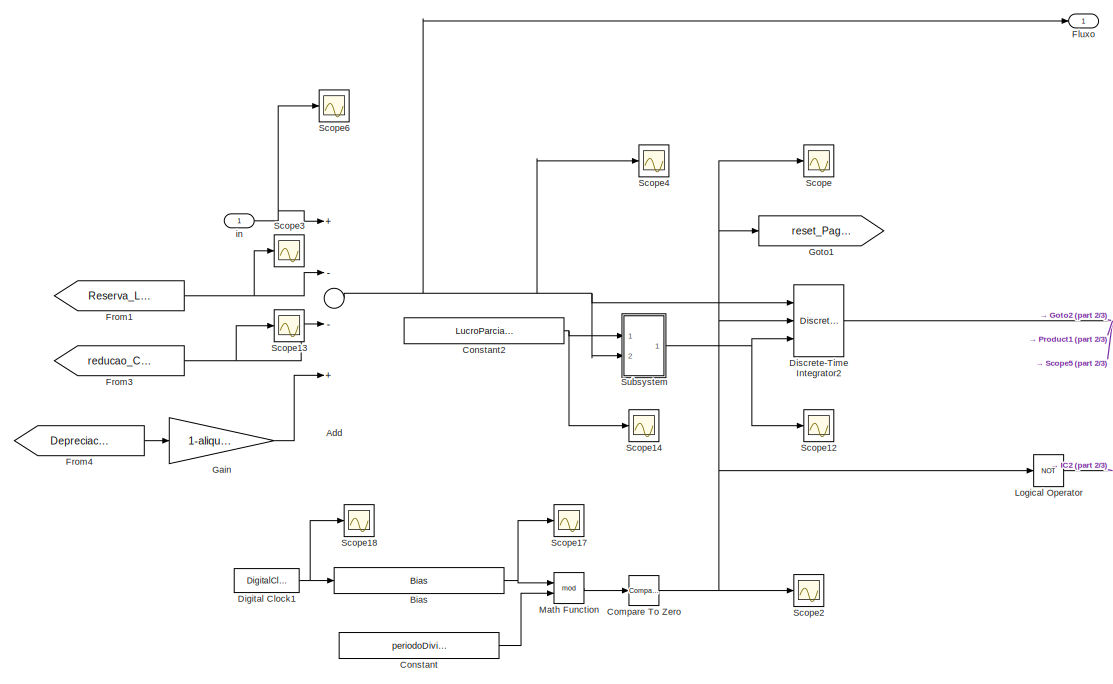
[diagram: Income Statement/Lucro Retido - part 1/3, middle left region]
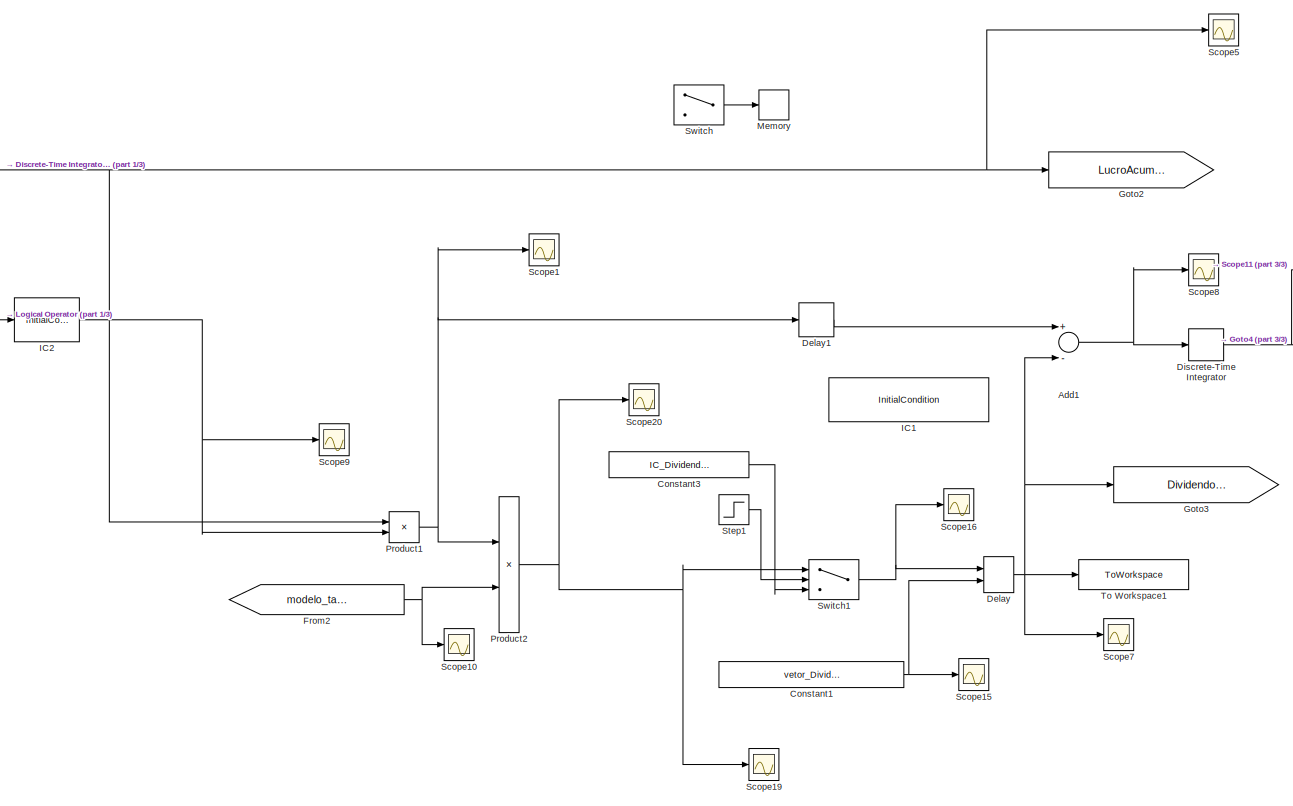
[diagram: Income Statement/Lucro Retido - part 2/3, center side, full height]
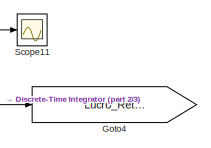
[diagram: Income Statement/Lucro Retido - part 3/3, middle right region]
BLOCK [SubSystem] Income Statement/Lucro Retido
  FunctionWithSeparateData = off
  MaskHideContents = off
  MinAlgLoopOccurrences = off
  Opaque = off
  Ports = [1, 1]
  PropExecContextOutsideSubsystem = off
  RTWSystemCode = Auto
  RequestExecContextInheritance = off
BLOCK [Sum] Income Statement/Lucro Retido/Add
  InputSameDT = off
  Inputs = +--+
  OutDataTypeStr = Inherit: Inherit via internal rule
  Ports = [4, 1]
  SaturateOnIntegerOverflow = off
BLOCK [Sum] Income Statement/Lucro Retido/Add1
  InputSameDT = off
  Inputs = +-
  OutDataTypeStr = Inherit: Inherit via internal rule
  Ports = [2, 1]
  SaturateOnIntegerOverflow = off
BLOCK [Bias] Income Statement/Lucro Retido/Bias
  Bias = mes_DataInicial-1
BLOCK [Reference] Income Statement/Lucro Retido/Compare To Zero  REF=simulink/Logic and Bit
Operations/Compare
To Zero
  OutDataTypeStr = boolean
  Ports = [1, 1]
  SourceBlock = simulink/Logic and Bit\nOperations/Compare\nTo Zero
  SourceType = Compare To Zero
  ZeroCross = on
  relop = ~=
BLOCK [Constant] Income Statement/Lucro Retido/Constant
  Value = periodoDividendos
BLOCK [Constant] Income Statement/Lucro Retido/Constant1
  OutDataTypeStr = double
  Value = vetor_DividendosAPagarInicial
BLOCK [Constant] Income Statement/Lucro Retido/Constant2
  Value = LucroParcialPeriodo
BLOCK [Constant] Income Statement/Lucro Retido/Constant3
  Value = IC_DividendosAPagarInicial
BLOCK [Delay] Income Statement/Lucro Retido/Delay
  DelayLength = periodoDividendos_delay
  InitialCondition = 0
  InitialConditionSource = Input port
  InputPortMap = u0,p4
  InputProcessing = Inherited
  Ports = [2, 1]
BLOCK [Delay] Income Statement/Lucro Retido/Delay1
  DelayLength = 1
  InputPortMap = u0
  Ports = [1, 1]
BLOCK [DigitalClock] Income Statement/Lucro Retido/Digital Clock1
BLOCK [DiscreteIntegrator] Income Statement/Lucro Retido/Discrete-Time Integrator
  ICPrevOutput = DiscIntNeverNeededParam
  ICPrevScaledInput = DiscIntNeverNeededParam
  InitialCondition = LucroRetidoInicial
  IntegratorMethod = Accumulation: Backward Euler
  Ports = [1, 1]
BLOCK [DiscreteIntegrator] Income Statement/Lucro Retido/Discrete-Time Integrator2
  ExternalReset = rising
  ICPrevOutput = DiscIntNeverNeededParam
  ICPrevScaledInput = DiscIntNeverNeededParam
  InitialConditionSource = external
  IntegratorMethod = Accumulation: Backward Euler
  Ports = [3, 1]
BLOCK [Outport] Income Statement/Lucro Retido/Fluxo
  IconDisplay = Port number
BLOCK [From] Income Statement/Lucro Retido/From1
  GotoTag = Reserva_Lucros_fluxo
  IconDisplay = Signal name
  TagVisibility = global
BLOCK [From] Income Statement/Lucro Retido/From2
  GotoTag = modelo_taxa_paga_dividendos
  IconDisplay = Signal name
  TagVisibility = global
BLOCK [From] Income Statement/Lucro Retido/From3
  GotoTag = reducao_CapitalSocial
  IconDisplay = Signal name
  TagVisibility = global
BLOCK [From] Income Statement/Lucro Retido/From4
  GotoTag = Depreciacao
  IconDisplay = Signal name
  TagVisibility = global
BLOCK [Gain] Income Statement/Lucro Retido/Gain
  Gain = 1-aliquotaIR
  OutDataTypeStr = Inherit: Inherit via internal rule
  ParamDataTypeStr = Inherit: Inherit via internal rule
  SaturateOnIntegerOverflow = off
BLOCK [Goto] Income Statement/Lucro Retido/Goto1
  GotoTag = reset_Pagamento
  TagVisibility = global
BLOCK [Goto] Income Statement/Lucro Retido/Goto2
  GotoTag = LucroAcumSemestral
  TagVisibility = global
BLOCK [Goto] Income Statement/Lucro Retido/Goto3
  GotoTag = Dividendos_Pago
  TagVisibility = global
BLOCK [Goto] Income Statement/Lucro Retido/Goto4
  GotoTag = Lucro_Retido
  TagVisibility = global
BLOCK [InitialCondition] Income Statement/Lucro Retido/IC1
  Commented = on
  Value = IC_DividendosAPagarInicial
BLOCK [InitialCondition] Income Statement/Lucro Retido/IC2
  Value = false
BLOCK [Logic] Income Statement/Lucro Retido/Logical Operator
  AllPortsSameDT = off
  Operator = NOT
  OutDataTypeStr = boolean
  Ports = [1, 1]
BLOCK [Math] Income Statement/Lucro Retido/Math Function
  Operator = mod
  Ports = [2, 1]
BLOCK [Memory] Income Statement/Lucro Retido/Memory
  Commented = on
  X0 = Dividendos_A_Pagar_Inicial
BLOCK [Product] Income Statement/Lucro Retido/Product1
  InputSameDT = off
  OutDataTypeStr = Inherit: Inherit via internal rule
  Ports = [2, 1]
  RndMeth = Floor
  SaturateOnIntegerOverflow = off
BLOCK [Product] Income Statement/Lucro Retido/Product2
  InputSameDT = off
  OutDataTypeStr = Inherit: Inherit via internal rule
  Ports = [2, 1]
  SaturateOnIntegerOverflow = off
BLOCK [Scope] Income Statement/Lucro Retido/Scope
  DataFormat = StructureWithTime
  Floating = off
  NumInputPorts = 1
  Ports = [1]
  SampleTime = 0
  SaveName = ScopeData22
  ShowLegends = off
BLOCK [Scope] Income Statement/Lucro Retido/Scope1
  DataFormat = StructureWithTime
  Floating = off
  NumInputPorts = 1
  Ports = [1]
  SampleTime = 0
  SaveName = ScopeData18
  ShowLegends = off
  YMax = 65000
  YMin = 0
BLOCK [Scope] Income Statement/Lucro Retido/Scope10
  DataFormat = StructureWithTime
  Floating = off
  NumInputPorts = 1
  Ports = [1]
  SampleTime = 0
  SaveName = ScopeData102
  ShowLegends = off
  YMax = 65000
  YMin = 0
BLOCK [Scope] Income Statement/Lucro Retido/Scope11
  DataFormat = StructureWithTime
  Floating = off
  NumInputPorts = 1
  Ports = [1]
  SampleTime = 0
  SaveName = ScopeData103
  ShowLegends = off
BLOCK [Scope] Income Statement/Lucro Retido/Scope12
  DataFormat = StructureWithTime
  Floating = off
  NumInputPorts = 1
  Ports = [1]
  SampleTime = 0
  SaveName = ScopeData107
  ShowLegends = off
BLOCK [Scope] Income Statement/Lucro Retido/Scope13
  DataFormat = StructureWithTime
  Floating = off
  NumInputPorts = 1
  Ports = [1]
  SampleTime = 0
  SaveName = ScopeData112
  ShowLegends = off
BLOCK [Scope] Income Statement/Lucro Retido/Scope14
  DataFormat = StructureWithTime
  Floating = off
  NumInputPorts = 1
  Ports = [1]
  SampleTime = 0
  SaveName = ScopeData113
  ShowLegends = off
BLOCK [Scope] Income Statement/Lucro Retido/Scope15
  DataFormat = StructureWithTime
  Floating = off
  NumInputPorts = 1
  Ports = [1]
  SampleTime = 0
  SaveName = ScopeData116
  ShowLegends = off
  YMax = 65000
  YMin = 0
BLOCK [Scope] Income Statement/Lucro Retido/Scope16
  DataFormat = StructureWithTime
  Floating = off
  NumInputPorts = 1
  Ports = [1]
  SampleTime = 0
  SaveName = ScopeData117
  ShowLegends = off
  YMax = 65000
  YMin = 0
BLOCK [Scope] Income Statement/Lucro Retido/Scope17
  DataFormat = StructureWithTime
  Floating = off
  NumInputPorts = 1
  Ports = [1]
  SampleTime = 0
  SaveName = ScopeData155
  ShowLegends = off
BLOCK [Scope] Income Statement/Lucro Retido/Scope18
  DataFormat = StructureWithTime
  Floating = off
  NumInputPorts = 1
  Ports = [1]
  SampleTime = 0
  SaveName = ScopeData156
  ShowLegends = off
BLOCK [Scope] Income Statement/Lucro Retido/Scope19
  DataFormat = StructureWithTime
  Floating = off
  NumInputPorts = 1
  Ports = [1]
  SampleTime = 0
  SaveName = ScopeData165
  ShowLegends = off
  YMax = 65000
  YMin = 0
BLOCK [Scope] Income Statement/Lucro Retido/Scope2
  DataFormat = StructureWithTime
  Floating = off
  NumInputPorts = 1
  Ports = [1]
  SampleTime = 0
  SaveName = ScopeData38
  ShowLegends = off
BLOCK [Scope] Income Statement/Lucro Retido/Scope20
  DataFormat = StructureWithTime
  Floating = off
  NumInputPorts = 1
  Ports = [1]
  SampleTime = 0
  SaveName = ScopeData166
  ShowLegends = off
  YMax = 65000
  YMin = 0
BLOCK [Scope] Income Statement/Lucro Retido/Scope3
  DataFormat = StructureWithTime
  Floating = off
  NumInputPorts = 1
  Ports = [1]
  SampleTime = 0
  SaveName = ScopeData44
  ShowLegends = off
BLOCK [Scope] Income Statement/Lucro Retido/Scope4
  DataFormat = StructureWithTime
  Floating = off
  NumInputPorts = 1
  Ports = [1]
  SampleTime = 0
  SaveName = ScopeData35
  ShowLegends = off
BLOCK [Scope] Income Statement/Lucro Retido/Scope5
  DataFormat = StructureWithTime
  Floating = off
  NumInputPorts = 1
  Ports = [1]
  SampleTime = 0
  SaveName = ScopeData39
  ShowLegends = off
BLOCK [Scope] Income Statement/Lucro Retido/Scope6
  DataFormat = StructureWithTime
  Floating = off
  NumInputPorts = 1
  Ports = [1]
  SampleTime = 0
  SaveName = ScopeData45
  ShowLegends = off
BLOCK [Scope] Income Statement/Lucro Retido/Scope7
  DataFormat = StructureWithTime
  Floating = off
  NumInputPorts = 1
  Ports = [1]
  SampleTime = 0
  SaveName = ScopeData99
  ShowLegends = off
  TimeRange = 600
  YMax = 1400000000
  YMin = 0
BLOCK [Scope] Income Statement/Lucro Retido/Scope8
  DataFormat = StructureWithTime
  Floating = off
  NumInputPorts = 1
  Ports = [1]
  SampleTime = 0
  SaveName = ScopeData100
  ShowLegends = off
  YMax = 65000
  YMin = 0
BLOCK [Scope] Income Statement/Lucro Retido/Scope9
  DataFormat = StructureWithTime
  Floating = off
  NumInputPorts = 1
  Ports = [1]
  SampleTime = 0
  SaveName = ScopeData101
  ShowLegends = off
  YMax = 65000
  YMin = 0
BLOCK [Step] Income Statement/Lucro Retido/Step1
  SampleTime = 1
BLOCK [SubSystem] Income Statement/Lucro Retido/Subsystem
  FunctionWithSeparateData = off
  MaskHideContents = off
  MinAlgLoopOccurrences = off
  Opaque = off
  Ports = [2, 1]
  PropExecContextOutsideSubsystem = off
  RTWSystemCode = Auto
  RequestExecContextInheritance = off
BLOCK [Outport] Income Statement/Lucro Retido/Subsystem/Out1
  IconDisplay = Port number
BLOCK [Product] Income Statement/Lucro Retido/Subsystem/Product3
  InputSameDT = off
  OutDataTypeStr = Inherit: Inherit via internal rule
  Ports = [2, 1]
  SaturateOnIntegerOverflow = off
BLOCK [Product] Income Statement/Lucro Retido/Subsystem/Product4
  InputSameDT = off
  OutDataTypeStr = Inherit: Inherit via internal rule
  Ports = [2, 1]
  SaturateOnIntegerOverflow = off
BLOCK [Step] Income Statement/Lucro Retido/Subsystem/Step1
  After = 0
  Before = 1
  SampleTime = 1
BLOCK [Step] Income Statement/Lucro Retido/Subsystem/Step2
  SampleTime = 1
BLOCK [Inport] Income Statement/Lucro Retido/Subsystem/T0
  IconDisplay = Port number
BLOCK [Inport] Income Statement/Lucro Retido/Subsystem/T1
  IconDisplay = Port number
  Port = 2
BLOCK [Sum] Income Statement/Lucro Retido/Subsystem/Total5
  InputSameDT = off
  Inputs = +|+
  OutDataTypeStr = Inherit: Inherit via internal rule
  Ports = [2, 1]
  SaturateOnIntegerOverflow = off
BLOCK [Switch] Income Statement/Lucro Retido/Switch
  Commented = on
  Criteria = u2 ~= 0
  InputSameDT = off
  SaturateOnIntegerOverflow = off
BLOCK [Switch] Income Statement/Lucro Retido/Switch1
  InputSameDT = off
  OutDataTypeStr = double
  SaturateOnIntegerOverflow = off
  Threshold = 1
BLOCK [ToWorkspace] Income Statement/Lucro Retido/To Workspace1
  MaxDataPoints = inf
  Ports = [1]
  SampleTime = -1
  SaveFormat = Timeseries
  VariableName = Dividendos_Pago
BLOCK [Inport] Income Statement/Lucro Retido/in
  IconDisplay = Port number
BLOCK [SubSystem] Income Statement/Lucro Tributavel (EBT) - JSCP
  FunctionWithSeparateData = off
  MaskHideContents = off
  MinAlgLoopOccurrences = off
  Opaque = off
  Ports = [1, 1]
  PropExecContextOutsideSubsystem = off
  RTWSystemCode = Auto
  RequestExecContextInheritance = off
BLOCK [Sum] Income Statement/Lucro Tributavel (EBT) - JSCP/Add
  InputSameDT = off
  Inputs = +-
  OutDataTypeStr = Inherit: Inherit via internal rule
  Ports = [2, 1]
  SampleTime = 1
  SaturateOnIntegerOverflow = off
BLOCK [From] Income Statement/Lucro Tributavel (EBT) - JSCP/From
  GotoTag = JSCP
  TagVisibility = global
BLOCK [Scope] Income Statement/Lucro Tributavel (EBT) - JSCP/Scope1
  DataFormat = StructureWithTime
  Floating = off
  NumInputPorts = 1
  Ports = [1]
  SampleTime = 0
  SaveName = ScopeData154
  ShowLegends = off
BLOCK [Scope] Income Statement/Lucro Tributavel (EBT) - JSCP/Scope3
  DataFormat = StructureWithTime
  Floating = off
  NumInputPorts = 1
  Ports = [1]
  SampleTime = 0
  SaveName = ScopeData30
  ShowLegends = off
BLOCK [Inport] Income Statement/Lucro Tributavel (EBT) - JSCP/in
  IconDisplay = Port number
BLOCK [Outport] Income Statement/Lucro Tributavel (EBT) - JSCP/out
  IconDisplay = Port number
BLOCK [SubSystem] Income Statement/Outras receitas
  FunctionWithSeparateData = off
  MaskHideContents = off
  MinAlgLoopOccurrences = off
  Opaque = off
  Ports = [0, 1]
  PropExecContextOutsideSubsystem = off
  RTWSystemCode = Auto
  RequestExecContextInheritance = off
BLOCK [From] Income Statement/Outras receitas/CustosPessoal
  GotoTag = operatingIncome
  TagVisibility = global
BLOCK [From] Income Statement/Outras receitas/CustosPessoal1
  GotoTag = otherIncome
  TagVisibility = global
BLOCK [Outport] Income Statement/Outras receitas/Outras receitas
  IconDisplay = Port number
BLOCK [Sum] Income Statement/Outras receitas/Total4
  InputSameDT = off
  Inputs = +|+
  OutDataTypeStr = Inherit: Inherit via internal rule
  Ports = [2, 1]
  SaturateOnIntegerOverflow = off
BLOCK [SubSystem] Income Statement/Receita Líquida
  FunctionWithSeparateData = off
  MaskHideContents = off
  MinAlgLoopOccurrences = off
  Opaque = off
  Ports = [1, 1]
  PropExecContextOutsideSubsystem = off
  RTWSystemCode = Auto
  RequestExecContextInheritance = off
BLOCK [Constant] Income Statement/Receita Líquida/P_D
  Value = deducaoP_D
BLOCK [Product] Income Statement/Receita Líquida/Product
  InputSameDT = off
  OutDataTypeStr = Inherit: Inherit via internal rule
  Ports = [2, 1]
  RndMeth = Floor
  SaturateOnIntegerOverflow = off
BLOCK [Sum] Income Statement/Receita Líquida/Subtract
  InputSameDT = off
  Inputs = +-
  OutDataTypeStr = Inherit: Inherit via internal rule
  Ports = [2, 1]
  SaturateOnIntegerOverflow = off
BLOCK [Inport] Income Statement/Receita Líquida/in
  IconDisplay = Port number
BLOCK [Outport] Income Statement/Receita Líquida/out
  IconDisplay = Port number
BLOCK [SubSystem] Income Statement/Receita Operacional
  FunctionWithSeparateData = off
  MaskHideContents = off
  MinAlgLoopOccurrences = off
  Opaque = off
  Ports = [0, 1]
  PropExecContextOutsideSubsystem = off
  RTWSystemCode = Auto
  RequestExecContextInheritance = off
BLOCK [From] Income Statement/Receita Operacional/From1
  Commented = on
  GotoTag = Contratos_Leiloes
BLOCK [From] Income Statement/Receita Operacional/From2
  GotoTag = contratosVenda
  TagVisibility = global
BLOCK [From] Income Statement/Receita Operacional/From3
  GotoTag = vendaSpot
  TagVisibility = global
BLOCK [From] Income Statement/Receita Operacional/From4
  GotoTag = vendaMRE_externo
  TagVisibility = global
BLOCK [From] Income Statement/Receita Operacional/From5
  Commented = on
  GotoTag = Outros_ReceitaBruta
BLOCK [From] Income Statement/Receita Operacional/From6
  GotoTag = otherOperatingRevenues
  TagVisibility = global
BLOCK [Scope] Income Statement/Receita Operacional/Scope
  Floating = off
  NumInputPorts = 1
  Ports = [1]
  SaveName = ScopeData90
  ShowLegends = off
BLOCK [Scope] Income Statement/Receita Operacional/Scope1
  Floating = off
  NumInputPorts = 1
  Ports = [1]
  SaveName = ScopeData111
  ShowLegends = off
BLOCK [Sum] Income Statement/Receita Operacional/Total2
  InputSameDT = off
  Inputs = ++++
  OutDataTypeStr = Inherit: Inherit via internal rule
  Ports = [4, 1]
  SaturateOnIntegerOverflow = off
BLOCK [Outport] Income Statement/Receita Operacional/receitaOperacional
  IconDisplay = Port number
BLOCK [SubSystem] Income Statement/Receitas financeiras
  FunctionWithSeparateData = off
  MaskHideContents = off
  MinAlgLoopOccurrences = off
  Opaque = off
  Ports = [0, 1]
  PropExecContextOutsideSubsystem = off
  RTWSystemCode = Auto
  RequestExecContextInheritance = off
BLOCK [From] Income Statement/Receitas financeiras/From74
  GotoTag = PnLCashCashEquivs
  IconDisplay = Signal name
  TagVisibility = global
BLOCK [Outport] Income Statement/Receitas financeiras/Receitas financeiras
  IconDisplay = Port number
BLOCK [Scope] Income Statement/Scope
  Floating = off
  NumInputPorts = 1
  Ports = [1]
  SaveName = ScopeData5
  ShowLegends = off
BLOCK [Scope] Income Statement/Scope1
  DataFormat = StructureWithTime
  Floating = off
  NumInputPorts = 1
  Ports = [1]
  SampleTime = 0
  SaveName = ScopeData27
  ShowLegends = off
BLOCK [Scope] Income Statement/Scope2
  DataFormat = StructureWithTime
  Floating = off
  NumInputPorts = 1
  Ports = [1]
  SampleTime = 0
  SaveName = ScopeData28
  ShowLegends = off
BLOCK [Scope] Income Statement/Scope3
  DataFormat = StructureWithTime
  Floating = off
  NumInputPorts = 1
  Ports = [1]
  SampleTime = 0
  SaveName = ScopeData29
  ShowLegends = off
BLOCK [Scope] Income Statement/Scope4
  Floating = off
  NumInputPorts = 1
  Ports = [1]
  SaveName = ScopeData8
  ShowLegends = off
BLOCK [Scope] Income Statement/Scope5
  DataFormat = StructureWithTime
  Floating = off
  NumInputPorts = 1
  Ports = [1]
  SampleTime = 0
  SaveName = ScopeData31
  ShowLegends = off
  TimeRange = 400
  YMax = 0
  YMin = -15000000
BLOCK [Scope] Income Statement/Scope6
  Floating = off
  NumInputPorts = 1
  Ports = [1]
  SaveName = ScopeData16
  ShowLegends = off
BLOCK [Scope] Income Statement/Scope7
  Floating = off
  NumInputPorts = 1
  Ports = [1]
  SaveName = ScopeData15
  ShowLegends = off
BLOCK [Scope] Income Statement/Scope8
  Floating = off
  NumInputPorts = 1
  Ports = [1]
  SaveName = ScopeData34
  ShowLegends = off
BLOCK [Scope] Income Statement/Scope9
  DataFormat = StructureWithTime
  Floating = off
  NumInputPorts = 1
  Ports = [1]
  SampleTime = 0
  SaveName = ScopeData46
  ShowLegends = off
BLOCK [ToWorkspace] Income Statement/To Workspace
  MaxDataPoints = inf
  Ports = [1]
  SampleTime = -1
  SaveFormat = Timeseries
  VariableName = Lucro_Liquido
BLOCK [ToWorkspace] Income Statement/To Workspace1
  MaxDataPoints = inf
  Ports = [1]
  SampleTime = -1
  SaveFormat = Timeseries
  VariableName = ImpostoRenda_Contabil
BLOCK [ToWorkspace] Income Statement/To Workspace10
  MaxDataPoints = inf
  Ports = [1]
  SampleTime = -1
  SaveFormat = Timeseries
  VariableName = Fluxo_Lucro_Retido
BLOCK [ToWorkspace] Income Statement/To Workspace11
  FixptAsFi = on
  MaxDataPoints = inf
  Ports = [1]
  SampleTime = -1
  SaveFormat = Timeseries
  VariableName = Despesas
BLOCK [ToWorkspace] Income Statement/To Workspace15
  Commented = on
  MaxDataPoints = inf
  Ports = [1]
  SampleTime = -1
  SaveFormat = Timeseries
  VariableName = DividendosAcumulado
BLOCK [ToWorkspace] Income Statement/To Workspace2
  FixptAsFi = on
  MaxDataPoints = inf
  Ports = [1]
  SampleTime = -1
  SaveFormat = Timeseries
  VariableName = Receita_Operacional
BLOCK [ToWorkspace] Income Statement/To Workspace3
  FixptAsFi = on
  MaxDataPoints = inf
  Ports = [1]
  SampleTime = -1
  SaveFormat = Timeseries
  VariableName = Receita_Liquida
BLOCK [ToWorkspace] Income Statement/To Workspace4
  FixptAsFi = on
  MaxDataPoints = inf
  Ports = [1]
  SampleTime = -1
  SaveFormat = Timeseries
  VariableName = EBITDA
BLOCK [ToWorkspace] Income Statement/To Workspace5
  FixptAsFi = on
  MaxDataPoints = inf
  Ports = [1]
  SampleTime = -1
  SaveFormat = Timeseries
  VariableName = EBIT
BLOCK [ToWorkspace] Income Statement/To Workspace6
  FixptAsFi = on
  MaxDataPoints = inf
  Ports = [1]
  SampleTime = -1
  SaveFormat = Timeseries
  VariableName = EBT
BLOCK [ToWorkspace] Income Statement/To Workspace7
  FixptAsFi = on
  MaxDataPoints = inf
  Ports = [1]
  SampleTime = -1
  SaveFormat = Timeseries
  VariableName = Deducoes_Operacionais
BLOCK [ToWorkspace] Income Statement/To Workspace9
  FixptAsFi = on
  MaxDataPoints = inf
  Ports = [1]
  SampleTime = -1
  SaveFormat = Timeseries
  VariableName = Resultado_Financeiro
BLOCK [Sum] Income Statement/Total1
  InputSameDT = off
  Inputs = +|-
  OutDataTypeStr = Inherit: Inherit via internal rule
  Ports = [2, 1]
  SaturateOnIntegerOverflow = off
BLOCK [Sum] Income Statement/Total2
  InputSameDT = off
  Inputs = +|-
  OutDataTypeStr = Inherit: Inherit via internal rule
  Ports = [2, 1]
  SaturateOnIntegerOverflow = off
BLOCK [Sum] Income Statement/Total3
  InputSameDT = off
  Inputs = +|-|+|+
  OutDataTypeStr = Inherit: Inherit via internal rule
  Ports = [4, 1]
  SaturateOnIntegerOverflow = off
BLOCK [Sum] Income Statement/Total4
  InputSameDT = off
  Inputs = +|-
  OutDataTypeStr = Inherit: Inherit via internal rule
  Ports = [2, 1]
  SaturateOnIntegerOverflow = off
BLOCK [Sum] Income Statement/Total5
  InputSameDT = off
  Inputs = +|+
  OutDataTypeStr = Inherit: Inherit via internal rule
  Ports = [2, 1]
  SaturateOnIntegerOverflow = off
BLOCK [Outport] JSCP
  IconDisplay = Port number
  Port = 25
BLOCK [Outport] JSCP_Pago
  IconDisplay = Port number
  Port = 26
BLOCK [Inport] JurosCash_Total_Dividas_TS2
  IconDisplay = Port number
  Port = 52
  PortDimensions = realidadesPorSimulacao
BLOCK [Outport] Lucro_Liquido
  IconDisplay = Port number
  Port = 11
BLOCK [Outport] Lucro_Retido
  IconDisplay = Port number
  Port = 19
BLOCK [Outport] MtM_Total_Dividas
  IconDisplay = Port number
  Port = 15
BLOCK [Inport] MtM_Total_Dividas_TS
  IconDisplay = Port number
  Port = 6
  PortDimensions = realidadesPorSimulacao
BLOCK [Inport] NominalInicial_Total_Dividas_TS1
  IconDisplay = Port number
  Port = 54
BLOCK [Inport] OeM_expenses_TS1
  IconDisplay = Port number
  Port = 43
BLOCK [Inport] OeM_labor_TS1
  IconDisplay = Port number
  Port = 44
BLOCK [SubSystem] Operacional
  FunctionWithSeparateData = off
  MaskHideContents = off
  MinAlgLoopOccurrences = off
  Opaque = off
  Ports = []
  PropExecContextOutsideSubsystem = off
  RTWSystemCode = Auto
  RequestExecContextInheritance = off
BLOCK [Sum] Operacional/Add1
  InputSameDT = off
  Inputs = +-
  OutDataTypeStr = Inherit: Inherit via internal rule
  Ports = [2, 1]
  SaturateOnIntegerOverflow = off
BLOCK [Sum] Operacional/Add2
  Commented = on
  InputSameDT = off
  Inputs = +++
  OutDataTypeStr = Inherit: Inherit via internal rule
  Ports = [3, 1]
  SaturateOnIntegerOverflow = off
BLOCK [Clock] Operacional/Clock
  Commented = on
BLOCK [Constant] Operacional/Constant1
  Value = 0
BLOCK [Constant] Operacional/Constant2
  Commented = on
  Value = 0
BLOCK [SubSystem] Operacional/Contratos
  FunctionWithSeparateData = off
  MaskHideContents = off
  MinAlgLoopOccurrences = off
  Opaque = off
  Ports = [0, 2]
  PropExecContextOutsideSubsystem = off
  RTWSystemCode = Auto
  RequestExecContextInheritance = off
BLOCK [Outport] Operacional/Contratos/Energia Contratada
  IconDisplay = Port number
BLOCK [FromWorkspace] Operacional/Contratos/From Workspace
  Commented = on
  Interpolate = off
  OutputAfterFinalValue = Setting to zero
  SampleTime = 1
  VariableName = energiaContratada_Total
  ZeroCross = on
BLOCK [FromWorkspace] Operacional/Contratos/From Workspace1
  Commented = on
  Interpolate = off
  OutputAfterFinalValue = Setting to zero
  SampleTime = 1
  VariableName = receitaContratada_Total
  ZeroCross = on
BLOCK [FromWorkspace] Operacional/Contratos/From Workspace2
  Commented = on
  SampleTime = 0
  VariableName = vetor_horasMes
  ZeroCross = on
BLOCK [From] Operacional/Contratos/From1
  GotoTag = energiaContratada_Total
  TagVisibility = global
BLOCK [From] Operacional/Contratos/From2
  GotoTag = receitaContratada_Total
  TagVisibility = global
BLOCK [From] Operacional/Contratos/From3
  GotoTag = vetor_horasMes
  TagVisibility = global
BLOCK [Product] Operacional/Contratos/Product
  InputSameDT = off
  OutDataTypeStr = Inherit: Inherit via internal rule
  Ports = [2, 1]
  RndMeth = Floor
  SaturateOnIntegerOverflow = off
BLOCK [Scope] Operacional/Contratos/Scope1
  Floating = off
  NumInputPorts = 1
  Ports = [1]
  SaveName = ScopeData88
  ShowLegends = off
BLOCK [Scope] Operacional/Contratos/Scope2
  Floating = off
  NumInputPorts = 1
  Ports = [1]
  SaveName = ScopeData87
  ShowLegends = off
BLOCK [Outport] Operacional/Contratos/Valor Contratado
  IconDisplay = Port number
  Port = 2
BLOCK [Constant] Operacional/Contribuição à Câmara
  Commented = on
  Value = contribuicaoCCEE
BLOCK [Scope] Operacional/En.Aloc - En.Cont.
  DataFormat = StructureWithTime
  Floating = off
  LimitDataPoints = off
  NumInputPorts = 1
  Ports = [1]
  SampleTime = 0
  SaveName = ScopeData13
  ShowLegends = off
BLOCK [SubSystem] Operacional/Energia Alocada
  FunctionWithSeparateData = off
  MaskHideContents = off
  MinAlgLoopOccurrences = off
  Opaque = off
  Ports = [0, 1]
  PropExecContextOutsideSubsystem = off
  RTWSystemCode = Auto
  RequestExecContextInheritance = off
BLOCK [Constant] Operacional/Energia Alocada/Constant
  Commented = on
  Value = TEIFa
BLOCK [Constant] Operacional/Energia Alocada/Constant1
  Commented = on
  Value = TEIP
BLOCK [Outport] Operacional/Energia Alocada/Energia Alocada
  IconDisplay = Port number
BLOCK [SubSystem] Operacional/Energia Alocada/FID
  Commented = on
  FunctionWithSeparateData = off
  MaskHideContents = off
  MinAlgLoopOccurrences = off
  Opaque = off
  Ports = [2, 1]
  PropExecContextOutsideSubsystem = off
  RTWSystemCode = Auto
  RequestExecContextInheritance = off
BLOCK [Sum] Operacional/Energia Alocada/FID/Add
  InputSameDT = off
  Inputs = +-
  OutDataTypeStr = Inherit: Inherit via internal rule
  Ports = [2, 1]
  SaturateOnIntegerOverflow = off
BLOCK [Sum] Operacional/Energia Alocada/FID/Add1
  InputSameDT = off
  Inputs = +-
  OutDataTypeStr = Inherit: Inherit via internal rule
  Ports = [2, 1]
  SaturateOnIntegerOverflow = off
BLOCK [Constant] Operacional/Energia Alocada/FID/Constant1
BLOCK [Constant] Operacional/Energia Alocada/FID/Constant2
BLOCK [Product] Operacional/Energia Alocada/FID/Divide
  InputSameDT = off
  Inputs = */
  OutDataTypeStr = Inherit: Inherit via internal rule
  Ports = [2, 1]
  RndMeth = Floor
  SaturateOnIntegerOverflow = off
BLOCK [Outport] Operacional/Energia Alocada/FID/FID
  IconDisplay = Port number
BLOCK [Constant] Operacional/Energia Alocada/FID/Indisponibilidade de Referência
  Value = refInd
BLOCK [Product] Operacional/Energia Alocada/FID/Product
  InputSameDT = off
  OutDataTypeStr = Inherit: Inherit via internal rule
  Ports = [2, 1]
  SaturateOnIntegerOverflow = off
BLOCK [Saturate] Operacional/Energia Alocada/FID/Saturation
  InputPortMap = u0
  LowerLimit = 0
  Ports = [1, 1]
  UpperLimit = 1
BLOCK [Inport] Operacional/Energia Alocada/FID/TEIFa
  IconDisplay = Port number
BLOCK [Inport] Operacional/Energia Alocada/FID/TEIP
  IconDisplay = Port number
  Port = 2
BLOCK [FromWorkspace] Operacional/Energia Alocada/From Workspace
  Commented = on
  SampleTime = 0
  VariableName = vetor_horasMes
  ZeroCross = on
BLOCK [From] Operacional/Energia Alocada/From1
  GotoTag = modeloGSF
  TagVisibility = global
BLOCK [From] Operacional/Energia Alocada/From2
  GotoTag = GF_sazonalizada
  TagVisibility = global
BLOCK [From] Operacional/Energia Alocada/From3
  GotoTag = vetor_horasMes
  TagVisibility = global
BLOCK [FromWorkspace] Operacional/Energia Alocada/GSF
  Commented = on
  Interpolate = off
  OutputAfterFinalValue = Setting to zero
  SampleTime = 1
  VariableName = modeloGSF
  ZeroCross = on
BLOCK [FromWorkspace] Operacional/Energia Alocada/Garantia Física Sazonalizada
  Commented = on
  Interpolate = off
  OutputAfterFinalValue = Setting to zero
  SampleTime = 1
  VariableName = modeloSazonalizacaoGF
  ZeroCross = on
BLOCK [RandomNumber] Operacional/Energia Alocada/Parada Forçada
  Commented = on
  Mean = mediaTEIFa
  SampleTime = 1
  Seed = TEIFaSeed
  Variance = varianciaTEIFa
BLOCK [RandomNumber] Operacional/Energia Alocada/Parada Programada
  Commented = on
  Mean = mediaTEIP
  SampleTime = 1
  Seed = TEIPSeed
  Variance = varianciaTEIP
BLOCK [Product] Operacional/Energia Alocada/Product
  InputSameDT = off
  OutDataTypeStr = Inherit: Inherit via internal rule
  Ports = [2, 1]
  RndMeth = Floor
  SaturateOnIntegerOverflow = off
BLOCK [Product] Operacional/Energia Alocada/Product2
  InputSameDT = off
  OutDataTypeStr = Inherit: Inherit via internal rule
  Ports = [2, 1]
  SaturateOnIntegerOverflow = off
BLOCK [Scope] Operacional/Energia Alocada/Scope1
  DataFormat = StructureWithTime
  Floating = off
  LimitDataPoints = off
  NumInputPorts = 1
  Ports = [1]
  SampleTime = 0
  SaveName = ScopeData1
  ShowLegends = off
BLOCK [Scope] Operacional/Energia Alocada/Scope3
  DataFormat = StructureWithTime
  Floating = off
  LimitDataPoints = off
  NumInputPorts = 1
  Ports = [1]
  SampleTime = 0
  SaveName = ScopeData3
  ShowLegends = off
BLOCK [ToWorkspace] Operacional/Energia Alocada/To Workspace1
  Commented = on
  MaxDataPoints = inf
  Ports = [1]
  SampleTime = 1
  SaveFormat = Timeseries
  VariableName = FID
BLOCK [Scope] Operacional/Energia alocada
  DataFormat = StructureWithTime
  Floating = off
  LimitDataPoints = off
  NumInputPorts = 1
  Ports = [1]
  SampleTime = 0
  SaveName = ScopeData6
  ShowLegends = off
BLOCK [Scope] Operacional/Energia contratada
  DataFormat = StructureWithTime
  Floating = off
  LimitDataPoints = off
  NumInputPorts = 1
  Ports = [1]
  SampleTime = 0
  SaveName = ScopeData14
  ShowLegends = off
BLOCK [Fcn] Operacional/Fcn
  Commented = on
  Expr = u(2)*(1/(1+r)^(u(1)/52))
  SampleTime = 1
BLOCK [Fcn] Operacional/Fcn1
  Commented = on
  Expr = u(2)*(1/(1+r)^(u(1)/52))
  SampleTime = 1
BLOCK [Fcn] Operacional/Fcn2
  Commented = on
  Expr = u(2)*(1/(1+r)^(u(1)/52))
  SampleTime = 1
BLOCK [Fcn] Operacional/Fcn3
  Commented = on
  Expr = u(2)*(1/(1+r)^(u(1)/52))
  SampleTime = 1
BLOCK [Gain] Operacional/Gain
  Commented = on
  Gain = -1
  OutDataTypeStr = Inherit: Inherit via internal rule
  ParamDataTypeStr = Inherit: Inherit via internal rule
  SaturateOnIntegerOverflow = off
BLOCK [Gain] Operacional/Gain1
  Gain = -1
  OutDataTypeStr = Inherit: Inherit via internal rule
  ParamDataTypeStr = Inherit: Inherit via internal rule
  SaturateOnIntegerOverflow = off
BLOCK [Scope] Operacional/Ganho com contratos
  DataFormat = StructureWithTime
  Floating = off
  LimitDataPoints = off
  NumInputPorts = 1
  Ports = [1]
  SampleTime = 0
  SaveName = ScopeData7
  ShowLegends = off
BLOCK [Scope] Operacional/Ganho no MRE
  Commented = on
  DataFormat = StructureWithTime
  Floating = off
  LimitDataPoints = off
  NumInputPorts = 1
  Ports = [1]
  SampleTime = 0
  SaveName = ScopeData9
  ShowLegends = off
BLOCK [Scope] Operacional/Ganho no mercado spot
  DataFormat = StructureWithTime
  Floating = off
  LimitDataPoints = off
  NumInputPorts = 1
  Ports = [1]
  SampleTime = 0
  SaveName = ScopeData4
  ShowLegends = off
BLOCK [Scope] Operacional/Ganho total
  Commented = on
  DataFormat = StructureWithTime
  Floating = off
  LimitDataPoints = off
  NumInputPorts = 1
  Ports = [1]
  SampleTime = 0
  SaveName = ScopeData12
  ShowLegends = off
  ZoomMode = xonly
BLOCK [SubSystem] Operacional/Geração
  Commented = on
  FunctionWithSeparateData = off
  MaskHideContents = off
  MinAlgLoopOccurrences = off
  Opaque = off
  Ports = [1, 1]
  PropExecContextOutsideSubsystem = off
  RTWSystemCode = Auto
  RequestExecContextInheritance = off
BLOCK [Sum] Operacional/Geração/Add1
  InputSameDT = off
  Inputs = -+
  OutDataTypeStr = Inherit: Inherit via internal rule
  Ports = [2, 1]
  SaturateOnIntegerOverflow = off
BLOCK [Sum] Operacional/Geração/Add2
  InputSameDT = off
  Inputs = +-
  OutDataTypeStr = Inherit: Inherit via internal rule
  Ports = [2, 1]
  SaturateOnIntegerOverflow = off
BLOCK [Constant] Operacional/Geração/CCEE
  Value = contribuicaoCCEE
BLOCK [Inport] Operacional/Geração/Energia Alocada
  IconDisplay = Port number
BLOCK [RandomNumber] Operacional/Geração/Energia gerada
  Commented = on
  Mean = mediaRuidoGeracao
  SampleTime = 1
  Seed = ruidoGeracaoSeed
  Variance = varianciaRuidoGeracao
BLOCK [FromWorkspace] Operacional/Geração/From Workspace
  Commented = on
  SampleTime = 0
  VariableName = vetor_horasMes
  ZeroCross = on
BLOCK [From] Operacional/Geração/From3
  GotoTag = vetor_horasMes
  TagVisibility = global
BLOCK [Constant] Operacional/Geração/GF
  Value = garantiaFisica
BLOCK [Gain] Operacional/Geração/Gain
  Commented = on
  Gain = 0.001
  OutDataTypeStr = Inherit: Inherit via internal rule
  ParamDataTypeStr = Inherit: Inherit via internal rule
  SaturateOnIntegerOverflow = off
BLOCK [Gain] Operacional/Geração/Gain1
  Gain = CFURH
  OutDataTypeStr = Inherit: Inherit via internal rule
  ParamDataTypeStr = Inherit: Inherit via internal rule
  SaturateOnIntegerOverflow = off
BLOCK [Goto] Operacional/Geração/Goto
  GotoTag = royaltiesAgua
  TagVisibility = global
BLOCK [Product] Operacional/Geração/Product
  InputSameDT = off
  OutDataTypeStr = Inherit: Inherit via internal rule
  Ports = [2, 1]
  RndMeth = Floor
  SaturateOnIntegerOverflow = off
BLOCK [Product] Operacional/Geração/Product1
  InputSameDT = off
  OutDataTypeStr = Inherit: Inherit via internal rule
  Ports = [2, 1]
  SaturateOnIntegerOverflow = off
BLOCK [Product] Operacional/Geração/Product4
  InputSameDT = off
  OutDataTypeStr = Inherit: Inherit via internal rule
  Ports = [2, 1]
  SaturateOnIntegerOverflow = off
BLOCK [Step] Operacional/Geração/Step
  SampleTime = 1
BLOCK [Constant] Operacional/Geração/TEO
  Value = TEO
BLOCK [Outport] Operacional/Geração/Valor MRE
  IconDisplay = Port number
BLOCK [Scope] Operacional/Geração/scope
  DataFormat = StructureWithTime
  Floating = off
  LimitDataPoints = off
  NumInputPorts = 1
  Ports = [1]
  SampleTime = 0
  SaveName = ScopeData92
  ShowLegends = off
BLOCK [Scope] Operacional/Geração/scope1
  DataFormat = StructureWithTime
  Floating = off
  LimitDataPoints = off
  NumInputPorts = 1
  Ports = [1]
  SampleTime = 0
  SaveName = ScopeData93
  ShowLegends = off
BLOCK [Scope] Operacional/Geração/scope2
  DataFormat = StructureWithTime
  Floating = off
  LimitDataPoints = off
  NumInputPorts = 1
  Ports = [1]
  SampleTime = 0
  SaveName = ScopeData94
  ShowLegends = off
BLOCK [Scope] Operacional/Geração/scope3
  DataFormat = StructureWithTime
  Floating = off
  LimitDataPoints = off
  NumInputPorts = 1
  Ports = [1]
  SampleTime = 0
  SaveName = ScopeData95
  ShowLegends = off
BLOCK [Goto] Operacional/Goto
  GotoTag = contratosVenda
  TagVisibility = global
BLOCK [Goto] Operacional/Goto1
  GotoTag = compraSpot
  TagVisibility = global
BLOCK [Goto] Operacional/Goto3
  GotoTag = vendaSpot
  TagVisibility = global
BLOCK [Goto] Operacional/Goto4
  Commented = on
  GotoTag = compraMRE
  TagVisibility = global
BLOCK [Goto] Operacional/Goto5
  Commented = on
  GotoTag = vendaMRE
  TagVisibility = global
BLOCK [Integrator] Operacional/Integrator
  Commented = on
  Ports = [1, 1]
BLOCK [Integrator] Operacional/Integrator1
  Commented = on
  Ports = [1, 1]
BLOCK [Integrator] Operacional/Integrator2
  Commented = on
  Ports = [1, 1]
BLOCK [Integrator] Operacional/Integrator3
  Commented = on
  Ports = [1, 1]
BLOCK [MinMax] Operacional/MinMax
  Function = max
  InputSameDT = off
  Inputs = 2
  Ports = [2, 1]
  SaturateOnIntegerOverflow = off
BLOCK [MinMax] Operacional/MinMax1
  InputSameDT = off
  Inputs = 2
  Ports = [2, 1]
  SaturateOnIntegerOverflow = off
BLOCK [MinMax] Operacional/MinMax2
  Commented = on
  Function = max
  InputSameDT = off
  Inputs = 2
  Ports = [2, 1]
  SaturateOnIntegerOverflow = off
BLOCK [MinMax] Operacional/MinMax3
  Commented = on
  InputSameDT = off
  Inputs = 2
  Ports = [2, 1]
  SaturateOnIntegerOverflow = off
BLOCK [Mux] Operacional/Mux
  Commented = on
  DisplayOption = bar
  Inputs = 2
  Ports = [2, 1]
BLOCK [Mux] Operacional/Mux1
  Commented = on
  DisplayOption = bar
  Inputs = 2
  Ports = [2, 1]
BLOCK [Mux] Operacional/Mux2
  Commented = on
  DisplayOption = bar
  Inputs = 2
  Ports = [2, 1]
BLOCK [Mux] Operacional/Mux3
  Commented = on
  DisplayOption = bar
  Inputs = 2
  Ports = [2, 1]
BLOCK [SubSystem] Operacional/PLD
  FunctionWithSeparateData = off
  MaskHideContents = off
  MinAlgLoopOccurrences = off
  Opaque = off
  Ports = [0, 1]
  PropExecContextOutsideSubsystem = off
  RTWSystemCode = Auto
  RequestExecContextInheritance = off
BLOCK [FromWorkspace] Operacional/PLD/From Workspace1
  Commented = on
  Interpolate = off
  OutputAfterFinalValue = Setting to zero
  SampleTime = 1
  VariableName = modeloPLD
  ZeroCross = on
BLOCK [From] Operacional/PLD/From1
  GotoTag = modeloPLD
  TagVisibility = global
BLOCK [Outport] Operacional/PLD/PLD
  IconDisplay = Port number
BLOCK [Scope] Operacional/PLD/Scope2
  DataFormat = StructureWithTime
  Floating = off
  LimitDataPoints = off
  NumInputPorts = 1
  Ports = [1]
  SampleTime = 0
  SaveName = ScopeData2
  ShowLegends = off
BLOCK [Product] Operacional/Product1
  InputSameDT = off
  OutDataTypeStr = Inherit: Inherit via internal rule
  Ports = [2, 1]
  SaturateOnIntegerOverflow = off
BLOCK [Scope] Operacional/Scope6
  Commented = on
  DataFormat = StructureWithTime
  Floating = off
  LimitDataPoints = off
  NumInputPorts = 1
  Ports = [1]
  SampleTime = 0
  ShowLegends = off
  ZoomMode = xonly
BLOCK [ToWorkspace] Operacional/To Workspace
  Commented = on
  MaxDataPoints = inf
  Ports = [1]
  SampleTime = -1
  SaveFormat = Timeseries
  VariableName = Receita
BLOCK [ToWorkspace] Operacional/To Workspace2
  Commented = on
  MaxDataPoints = inf
  Ports = [1]
  SampleTime = -1
  SaveFormat = Timeseries
  VariableName = Receita_Spot
BLOCK [ToWorkspace] Operacional/To Workspace3
  Commented = on
  MaxDataPoints = inf
  Ports = [1]
  SampleTime = -1
  SaveFormat = Timeseries
  VariableName = Receita_Contratos
BLOCK [ToWorkspace] Operacional/To Workspace4
  Commented = on
  MaxDataPoints = inf
  Ports = [1]
  SampleTime = -1
  SaveFormat = Timeseries
  VariableName = Receita_MRE
BLOCK [Inport] PIS_COFINS_ICMS_Contratos_Total_TS
  IconDisplay = Port number
  Port = 5
  PortDimensions = realidadesPorSimulacao
BLOCK [Inport] PLD_TS
  IconDisplay = Port number
  Port = 11
  PortDimensions = realidadesPorSimulacao
BLOCK [Outport] PPE
  IconDisplay = Port number
  Port = 13
BLOCK [Inport] PPE_CAPEX_Edificacoes_TS
  IconDisplay = Port number
  Port = 15
BLOCK [Inport] PPE_CAPEX_Maquinas_TS
  IconDisplay = Port number
  Port = 16
BLOCK [Inport] PPE_CAPEX_Moveis_TS
  IconDisplay = Port number
  Port = 17
BLOCK [Inport] PPE_CAPEX_Reservatorio_TS
  IconDisplay = Port number
  Port = 18
BLOCK [Inport] PPE_CAPEX_Terreno_TS
  IconDisplay = Port number
  Port = 26
BLOCK [Inport] PPE_CAPEX_Veiculos_TS
  IconDisplay = Port number
  Port = 19
BLOCK [SubSystem] Passivos1
  FunctionWithSeparateData = off
  MaskHideContents = off
  MinAlgLoopOccurrences = off
  Opaque = off
  Ports = [0, 1]
  PropExecContextOutsideSubsystem = off
  RTWSystemCode = Auto
  RequestExecContextInheritance = off
BLOCK [SubSystem] Passivos1/Contas a Pagar
  FunctionWithSeparateData = off
  MaskHideContents = off
  MinAlgLoopOccurrences = off
  Opaque = off
  Ports = [0, 1]
  PropExecContextOutsideSubsystem = off
  RTWSystemCode = Auto
  RequestExecContextInheritance = off
BLOCK [Constant] Passivos1/Contas a Pagar/Constant1
  Commented = on
  Value = juros_ContasAPagar
BLOCK [Goto] Passivos1/Contas a Pagar/Goto5
  GotoTag = MtMContasPagar
  TagVisibility = global
BLOCK [Goto] Passivos1/Contas a Pagar/Goto6
  GotoTag = deltaMtMContasPagar
  TagVisibility = global
BLOCK [Goto] Passivos1/Contas a Pagar/Goto9
  GotoTag = PnLContasPagar
  TagVisibility = global
BLOCK [SubSystem] Passivos1/Contas a Pagar/Modified Difference1
  FunctionWithSeparateData = off
  MaskHideContents = off
  MinAlgLoopOccurrences = off
  Opaque = off
  Ports = [1, 1]
  PropExecContextOutsideSubsystem = off
  RTWSystemCode = Auto
  RequestExecContextInheritance = off
BLOCK [Outport] Passivos1/Contas a Pagar/Modified Difference1/Delta
  IconDisplay = Port number
BLOCK [Reference] Passivos1/Contas a Pagar/Modified Difference1/Difference  REF=simulink/Discrete/Difference
  DoSatur = off
  ICPrevInput = 0.0
  InputProcessing = Elements as channels (sample based)
  LockScale = off
  OutDataType = fixdt(1, 16)
  OutDataTypeStr = Inherit: Inherit via internal rule
  OutMax = []
  OutMin = []
  OutScaling = 2^-10
  OutputDataTypeScalingMode = Inherit via internal rule
  Ports = [1, 1]
  RndMeth = Floor
  SourceBlock = simulink/Discrete/Difference
  SourceType = Difference
BLOCK [Reference] Passivos1/Contas a Pagar/Modified Difference1/Discrete Impulse1  REF=dspsrcs4/Discrete 
Impulse
  Delay = 0
  FrameSample = 1
  LastOutDataTypeStr = double
  OutDataTypeStr = double
  Ports = [0, 1]
  SampleTime = 1
  SourceBlock = dspsrcs4/Discrete \nImpulse
  SourceType = Discrete Impulse
  additionalParams = off
  allowOverrides = on
  dataType = double
  fracBitsMode = Best precision
  isSigned = on
  numFracBits = 15
  udDataType = sfix(16)
  wordLen = 16
BLOCK [Inport] Passivos1/Contas a Pagar/Modified Difference1/In1
  IconDisplay = Port number
BLOCK [Product] Passivos1/Contas a Pagar/Modified Difference1/Product3
  InputSameDT = off
  OutDataTypeStr = Inherit: Inherit via internal rule
  Ports = [2, 1]
  SaturateOnIntegerOverflow = off
BLOCK [Sum] Passivos1/Contas a Pagar/Modified Difference1/Total3
  InputSameDT = off
  Inputs = +-
  OutDataTypeStr = Inherit: Inherit via internal rule
  Ports = [2, 1]
  SaturateOnIntegerOverflow = off
BLOCK [Outport] Passivos1/Contas a Pagar/MtM1
  IconDisplay = Port number
BLOCK [Product] Passivos1/Contas a Pagar/Product
  InputSameDT = off
  OutDataTypeStr = Inherit: Inherit via internal rule
  Ports = [2, 1]
  RndMeth = Floor
  SaturateOnIntegerOverflow = off
BLOCK [Sum] Passivos1/Contas a Pagar/Total5
  InputSameDT = off
  Inputs = +++++
  OutDataTypeStr = Inherit: Inherit via internal rule
  Ports = [5, 1]
  SaturateOnIntegerOverflow = off
BLOCK [From] Passivos1/From4
  GotoTag = TotalShareholdersEquity
  IconDisplay = Signal name
  TagVisibility = global
BLOCK [From] Passivos1/From5
  GotoTag = TotalPassivos
  IconDisplay = Signal name
  TagVisibility = global
BLOCK [Goto] Passivos1/Goto
  GotoTag = TotalPassivosPlusEquity_minus_PassivoCurtoPrazo
  TagVisibility = global
BLOCK [Goto] Passivos1/Goto1
  GotoTag = Passivos_CurtoPrazo
  TagVisibility = global
BLOCK [SubSystem] Passivos1/Outros Passivos
  FunctionWithSeparateData = off
  MaskHideContents = off
  MinAlgLoopOccurrences = off
  Opaque = off
  Ports = [0, 1]
  PropExecContextOutsideSubsystem = off
  RTWSystemCode = Auto
  RequestExecContextInheritance = off
BLOCK [Constant] Passivos1/Outros Passivos/Constant
  Commented = on
  Value = Parametros.juros.PassivosNaoCirculantes
BLOCK [Constant] Passivos1/Outros Passivos/Constant1
  Value = Outros_Passivos
BLOCK [Goto] Passivos1/Outros Passivos/Goto1
  GotoTag = MtMOutrosPassivos
  TagVisibility = global
BLOCK [Goto] Passivos1/Outros Passivos/Goto2
  GotoTag = deltaMtMOutrosPassivos
  TagVisibility = global
BLOCK [Goto] Passivos1/Outros Passivos/Goto3
  GotoTag = PnLOutrosPassivosNonCash
  TagVisibility = global
BLOCK [Goto] Passivos1/Outros Passivos/Goto7
  GotoTag = PnLOutrosPassivosCash
  TagVisibility = global
BLOCK [SubSystem] Passivos1/Outros Passivos/Modified Difference
  FunctionWithSeparateData = off
  MaskHideContents = off
  MinAlgLoopOccurrences = off
  Opaque = off
  Ports = [1, 1]
  PropExecContextOutsideSubsystem = off
  RTWSystemCode = Auto
  RequestExecContextInheritance = off
BLOCK [Outport] Passivos1/Outros Passivos/Modified Difference/Delta
  IconDisplay = Port number
BLOCK [Reference] Passivos1/Outros Passivos/Modified Difference/Difference  REF=simulink/Discrete/Difference
  DoSatur = off
  ICPrevInput = 0.0
  InputProcessing = Elements as channels (sample based)
  LockScale = off
  OutDataType = fixdt(1, 16)
  OutDataTypeStr = Inherit: Inherit via internal rule
  OutMax = []
  OutMin = []
  OutScaling = 2^-10
  OutputDataTypeScalingMode = Inherit via internal rule
  Ports = [1, 1]
  RndMeth = Floor
  SourceBlock = simulink/Discrete/Difference
  SourceType = Difference
BLOCK [Reference] Passivos1/Outros Passivos/Modified Difference/Discrete Impulse1  REF=dspsrcs4/Discrete 
Impulse
  Delay = 0
  FrameSample = 1
  LastOutDataTypeStr = double
  OutDataTypeStr = double
  Ports = [0, 1]
  SampleTime = 1
  SourceBlock = dspsrcs4/Discrete \nImpulse
  SourceType = Discrete Impulse
  additionalParams = off
  allowOverrides = on
  dataType = double
  fracBitsMode = Best precision
  isSigned = on
  numFracBits = 15
  udDataType = sfix(16)
  wordLen = 16
BLOCK [Inport] Passivos1/Outros Passivos/Modified Difference/In1
  IconDisplay = Port number
BLOCK [Product] Passivos1/Outros Passivos/Modified Difference/Product3
  InputSameDT = off
  OutDataTypeStr = Inherit: Inherit via internal rule
  Ports = [2, 1]
  SaturateOnIntegerOverflow = off
BLOCK [Sum] Passivos1/Outros Passivos/Modified Difference/Total3
  InputSameDT = off
  Inputs = +-
  OutDataTypeStr = Inherit: Inherit via internal rule
  Ports = [2, 1]
  SaturateOnIntegerOverflow = off
BLOCK [Outport] Passivos1/Outros Passivos/MtM
  IconDisplay = Port number
BLOCK [Product] Passivos1/Outros Passivos/Product
  InputSameDT = off
  OutDataTypeStr = Inherit: Inherit via internal rule
  Ports = [2, 1]
  RndMeth = Floor
  SaturateOnIntegerOverflow = off
BLOCK [Outport] Passivos1/Passivos    
  IconDisplay = Port number
BLOCK [SubSystem] Passivos1/Passivos de Curto Prazo
  FunctionWithSeparateData = off
  MaskHideContents = off
  MinAlgLoopOccurrences = off
  Opaque = off
  Ports = [0, 1]
  PropExecContextOutsideSubsystem = off
  RTWSystemCode = Auto
  RequestExecContextInheritance = off
BLOCK [Reference] Passivos1/Passivos de Curto Prazo/Difference  REF=simulink/Discrete/Difference
  DoSatur = off
  ICPrevInput = 0.0
  InputProcessing = Elements as channels (sample based)
  LockScale = off
  OutDataType = fixdt(1, 16)
  OutDataTypeStr = Inherit: Inherit via internal rule
  OutMax = []
  OutMin = []
  OutScaling = 2^-10
  OutputDataTypeScalingMode = Inherit via internal rule
  Ports = [1, 1]
  RndMeth = Floor
  SourceBlock = simulink/Discrete/Difference
  SourceType = Difference
BLOCK [From] Passivos1/Passivos de Curto Prazo/From1
  GotoTag = DebtPlug
  TagVisibility = global
BLOCK [Goto] Passivos1/Passivos de Curto Prazo/Goto1
  GotoTag = deltaMtMPassivosCurtoPrazo
  TagVisibility = global
BLOCK [Goto] Passivos1/Passivos de Curto Prazo/Goto4
  GotoTag = MtMPassivosCurtoPrazo
  TagVisibility = global
BLOCK [Outport] Passivos1/Passivos de Curto Prazo/MtM
  IconDisplay = Port number
BLOCK [Scope] Passivos1/Passivos de Curto Prazo/Scope3
  DataFormat = StructureWithTime
  Floating = off
  NumInputPorts = 1
  Ports = [1]
  SampleTime = 0
  SaveName = ScopeData98
  ShowLegends = off
BLOCK [SubSystem] Passivos1/Passivos de Longo Prazo
  FunctionWithSeparateData = off
  MaskHideContents = off
  MinAlgLoopOccurrences = off
  Opaque = off
  Ports = [0, 1]
  PropExecContextOutsideSubsystem = off
  RTWSystemCode = Auto
  RequestExecContextInheritance = off
BLOCK [Reference] Passivos1/Passivos de Longo Prazo/Difference  REF=simulink/Discrete/Difference
  DoSatur = off
  ICPrevInput = DividaInicial
  InputProcessing = Inherited
  LockScale = off
  OutDataType = fixdt(1, 16)
  OutDataTypeStr = Inherit: Inherit via internal rule
  OutMax = []
  OutMin = []
  OutScaling = 2^-10
  OutputDataTypeScalingMode = Inherit via internal rule
  Ports = [1, 1]
  RndMeth = Floor
  SourceBlock = simulink/Discrete/Difference
  SourceType = Difference
BLOCK [DigitalClock] Passivos1/Passivos de Longo Prazo/Digital Clock
  Commented = on
BLOCK [From] Passivos1/Passivos de Longo Prazo/From1
  GotoTag = PnLnonCash_Total_Dividas
  TagVisibility = global
BLOCK [From] Passivos1/Passivos de Longo Prazo/From13
  GotoTag = MtM_Total_Dividas
  TagVisibility = global
BLOCK [From] Passivos1/Passivos de Longo Prazo/From3
  GotoTag = PnLCash_Total_Dividas
  TagVisibility = global
BLOCK [Goto] Passivos1/Passivos de Longo Prazo/Goto1
  GotoTag = MtMPassivosLongoPrazo
  TagVisibility = global
BLOCK [Goto] Passivos1/Passivos de Longo Prazo/Goto2
  GotoTag = deltaMtMPassivosLongoPrazo
  TagVisibility = global
BLOCK [Goto] Passivos1/Passivos de Longo Prazo/Goto3
  GotoTag = PnLPassivosLongoPrazoNonCash
  TagVisibility = global
BLOCK [Goto] Passivos1/Passivos de Longo Prazo/Goto4
  GotoTag = PnLPassivosLongoPrazo
  TagVisibility = global
BLOCK [Goto] Passivos1/Passivos de Longo Prazo/Goto7
  GotoTag = PnLPassivosLongoPrazoCash
  TagVisibility = global
BLOCK [Outport] Passivos1/Passivos de Longo Prazo/MtM
  IconDisplay = Port number
BLOCK [FromWorkspace] Passivos1/Passivos de Longo Prazo/MtM de Todas Dividas
  Commented = on
  Interpolate = off
  OutputAfterFinalValue = Setting to zero
  SampleTime = 1
  VariableName = MtM_Total_Dividas
  ZeroCross = on
BLOCK [Scope] Passivos1/Passivos de Longo Prazo/Scope
  DataFormat = StructureWithTime
  Floating = off
  NumInputPorts = 1
  Ports = [1]
  SampleTime = 0
  SaveName = ScopeData25
  ShowLegends = off
BLOCK [Scope] Passivos1/Passivos de Longo Prazo/Scope3
  DataFormat = StructureWithTime
  Floating = off
  NumInputPorts = 1
  Ports = [1]
  SampleTime = 0
  SaveName = ScopeData40
  ShowLegends = off
BLOCK [Scope] Passivos1/Passivos de Longo Prazo/Scope6
  DataFormat = StructureWithTime
  Floating = off
  NumInputPorts = 1
  Ports = [1]
  SampleTime = 0
  SaveName = ScopeData43
  ShowLegends = off
BLOCK [Sum] Passivos1/Passivos de Longo Prazo/Sum5
  InputSameDT = off
  OutDataTypeStr = Inherit: Inherit via internal rule
  Ports = [2, 1]
  SaturateOnIntegerOverflow = off
BLOCK [Scope] Passivos1/Scope
  DataFormat = StructureWithTime
  Floating = off
  NumInputPorts = 1
  Ports = [1]
  SampleTime = 0
  SaveName = ScopeData77
  ShowLegends = off
BLOCK [Scope] Passivos1/Scope1
  DataFormat = StructureWithTime
  Floating = off
  NumInputPorts = 1
  Ports = [1]
  SampleTime = 0
  SaveName = ScopeData78
  ShowLegends = off
BLOCK [Scope] Passivos1/Scope2
  DataFormat = StructureWithTime
  Floating = off
  NumInputPorts = 1
  Ports = [1]
  SampleTime = 0
  SaveName = ScopeData79
  ShowLegends = off
BLOCK [Scope] Passivos1/Scope3
  DataFormat = StructureWithTime
  Floating = off
  NumInputPorts = 1
  Ports = [1]
  SampleTime = 0
  SaveName = ScopeData80
  ShowLegends = off
BLOCK [Scope] Passivos1/Scope4
  DataFormat = StructureWithTime
  Floating = off
  NumInputPorts = 1
  Ports = [1]
  SampleTime = 0
  SaveName = ScopeData97
  ShowLegends = off
  ZoomMode = xonly
BLOCK [ToWorkspace] Passivos1/To Workspace
  FixptAsFi = on
  MaxDataPoints = inf
  Ports = [1]
  SampleTime = -1
  SaveFormat = Timeseries
  VariableName = Passivos_CurtoPrazo
BLOCK [SubSystem] Passivos1/Total Passivos
  FunctionWithSeparateData = off
  MaskHideContents = off
  MinAlgLoopOccurrences = off
  Opaque = off
  Ports = [1, 1]
  PropExecContextOutsideSubsystem = off
  RTWSystemCode = Auto
  RequestExecContextInheritance = off
BLOCK [SubSystem] Passivos1/Total Passivos & Equity
  FunctionWithSeparateData = off
  MaskHideContents = off
  MinAlgLoopOccurrences = off
  Opaque = off
  Ports = [1, 1]
  PropExecContextOutsideSubsystem = off
  RTWSystemCode = Auto
  RequestExecContextInheritance = off
BLOCK [Goto] Passivos1/Total Passivos & Equity/Goto2
  GotoTag = TotalPassivosPlusEquity
  TagVisibility = global
BLOCK [Inport] Passivos1/Total Passivos & Equity/in
  IconDisplay = Port number
BLOCK [Outport] Passivos1/Total Passivos & Equity/out
  IconDisplay = Port number
BLOCK [SubSystem] Passivos1/Total Passivos de Curto Prazo
  FunctionWithSeparateData = off
  MaskHideContents = off
  MinAlgLoopOccurrences = off
  Opaque = off
  Ports = [1, 1]
  PropExecContextOutsideSubsystem = off
  RTWSystemCode = Auto
  RequestExecContextInheritance = off
BLOCK [Goto] Passivos1/Total Passivos de Curto Prazo/Goto1
  GotoTag = TotalPassivosCurtoPrazo
  TagVisibility = global
BLOCK [Inport] Passivos1/Total Passivos de Curto Prazo/in
  IconDisplay = Port number
BLOCK [Outport] Passivos1/Total Passivos de Curto Prazo/out
  IconDisplay = Port number
BLOCK [Goto] Passivos1/Total Passivos/Goto1
  GotoTag = TotalPassivos
  TagVisibility = global
BLOCK [Inport] Passivos1/Total Passivos/in
  IconDisplay = Port number
BLOCK [Outport] Passivos1/Total Passivos/out
  IconDisplay = Port number
BLOCK [Sum] Passivos1/Total1
  InputSameDT = off
  OutDataTypeStr = Inherit: Inherit via internal rule
  Ports = [2, 1]
  SaturateOnIntegerOverflow = off
BLOCK [Sum] Passivos1/Total14
  InputSameDT = off
  Inputs = +|+|+
  OutDataTypeStr = Inherit: Inherit via internal rule
  Ports = [3, 1]
  SaturateOnIntegerOverflow = off
BLOCK [Sum] Passivos1/Total16
  InputSameDT = off
  Inputs = +||+
  OutDataTypeStr = Inherit: Inherit via internal rule
  Ports = [2, 1]
  SaturateOnIntegerOverflow = off
BLOCK [Sum] Passivos1/Total2
  InputSameDT = off
  OutDataTypeStr = Inherit: Inherit via internal rule
  Ports = [2, 1]
  SaturateOnIntegerOverflow = off
BLOCK [Sum] Passivos1/Total3
  InputSameDT = off
  OutDataTypeStr = Inherit: Inherit via internal rule
  Ports = [2, 1]
  SaturateOnIntegerOverflow = off
BLOCK [Sum] Passivos1/Total4
  InputSameDT = off
  Inputs = +|+
  OutDataTypeStr = Inherit: Inherit via internal rule
  Ports = [2, 1]
  SaturateOnIntegerOverflow = off
BLOCK [Outport] Passivos_CurtoPrazo
  IconDisplay = Port number
  Port = 14
BLOCK [Outport] PnLCash_Total_Dividas
  IconDisplay = Port number
  Port = 20
BLOCK [Inport] PnLCash_Total_Dividas_TS
  IconDisplay = Port number
  Port = 7
  PortDimensions = realidadesPorSimulacao
BLOCK [Outport] PnLnonCash_Total_Dividas
  IconDisplay = Port number
  Port = 21
BLOCK [Inport] PnLnonCash_Total_Dividas_TS
  IconDisplay = Port number
  Port = 8
  PortDimensions = realidadesPorSimulacao
BLOCK [Inport] Premio_PrePagamento_TS
  IconDisplay = Port number
  Port = 29
  PortDimensions = realidadesPorSimulacao
BLOCK [Inport] Premio_ReducaoCapital_TS
  IconDisplay = Port number
  Port = 30
  PortDimensions = realidadesPorSimulacao
BLOCK [Outport] Receita_Liquida
  IconDisplay = Port number
  Port = 3
BLOCK [Outport] Receita_Operacional
  IconDisplay = Port number
BLOCK [Outport] Reserva
  IconDisplay = Port number
  Port = 17
BLOCK [Outport] Resultado_Financeiro
  IconDisplay = Port number
  Port = 8
BLOCK [Scope] Scope1
  Commented = on
  DataFormat = StructureWithTime
  Floating = off
  NumInputPorts = 1
  Ports = [1]
  SampleTime = 0
  SaveName = ScopeData10
  ShowLegends = off
  TimeRange = 500
  YMax = 450000
  YMin = -50000
  ZoomMode = yonly
BLOCK [Scope] Scope10
  DataFormat = StructureWithTime
  Floating = off
  NumInputPorts = 1
  Ports = [1]
  SampleTime = 0
  SaveName = ScopeData132
  ShowLegends = off
  YMax = 65000
  YMin = 0
BLOCK [Scope] Scope11
  DataFormat = StructureWithTime
  Floating = off
  NumInputPorts = 1
  Ports = [1]
  SampleTime = 0
  SaveName = ScopeData133
  ShowLegends = off
  YMax = 65000
  YMin = 0
BLOCK [Scope] Scope12
  DataFormat = StructureWithTime
  Floating = off
  NumInputPorts = 1
  Ports = [1]
  SampleTime = 0
  SaveName = ScopeData134
  ShowLegends = off
  YMax = 65000
  YMin = 0
BLOCK [Scope] Scope13
  DataFormat = StructureWithTime
  Floating = off
  NumInputPorts = 1
  Ports = [1]
  SampleTime = 0
  SaveName = ScopeData135
  ShowLegends = off
  YMax = 65000
  YMin = 0
BLOCK [Scope] Scope14
  DataFormat = StructureWithTime
  Floating = off
  NumInputPorts = 1
  Ports = [1]
  SampleTime = 0
  SaveName = ScopeData136
  ShowLegends = off
  YMax = 65000
  YMin = 0
BLOCK [Scope] Scope15
  DataFormat = StructureWithTime
  Floating = off
  NumInputPorts = 1
  Ports = [1]
  SampleTime = 0
  SaveName = ScopeData163
  ShowLegends = off
  YMax = 65000
  YMin = 0
BLOCK [Scope] Scope16
  DataFormat = StructureWithTime
  Floating = off
  NumInputPorts = 1
  Ports = [1]
  SampleTime = 0
  SaveName = ScopeData164
  ShowLegends = off
  YMax = 65000
  YMin = 0
BLOCK [Scope] Scope17
  DataFormat = StructureWithTime
  Floating = off
  NumInputPorts = 1
  Ports = [1]
  SampleTime = 0
  SaveName = ScopeData167
  ShowLegends = off
  YMax = 65000
  YMin = 0
BLOCK [Scope] Scope18
  DataFormat = StructureWithTime
  Floating = off
  NumInputPorts = 1
  Ports = [1]
  SampleTime = 0
  SaveName = ScopeData169
  ShowLegends = off
  YMax = 65000
  YMin = 0
BLOCK [Scope] Scope19
  DataFormat = StructureWithTime
  Floating = off
  NumInputPorts = 1
  Ports = [1]
  SampleTime = 0
  SaveName = ScopeData170
  ShowLegends = off
  YMax = 65000
  YMin = 0
BLOCK [Scope] Scope2
  Commented = on
  DataFormat = StructureWithTime
  Floating = off
  NumInputPorts = 1
  Ports = [1]
  SampleTime = 0
  SaveName = ScopeData11
  ShowLegends = off
  TimeRange = 500
  YMax = 450000
  YMin = -50000
  ZoomMode = yonly
BLOCK [Scope] Scope20
  DataFormat = StructureWithTime
  Floating = off
  NumInputPorts = 1
  Ports = [1]
  SampleTime = 0
  SaveName = ScopeData171
  ShowLegends = off
  YMax = 65000
  YMin = 0
BLOCK [Scope] Scope21
  DataFormat = StructureWithTime
  Floating = off
  NumInputPorts = 1
  Ports = [1]
  SampleTime = 0
  SaveName = ScopeData172
  ShowLegends = off
  YMax = 65000
  YMin = 0
BLOCK [Scope] Scope22
  DataFormat = StructureWithTime
  Floating = off
  NumInputPorts = 1
  Ports = [1]
  SampleTime = 0
  SaveName = ScopeData89
  ShowLegends = off
  YMax = 65000
  YMin = 0
BLOCK [Scope] Scope23
  DataFormat = StructureWithTime
  Floating = off
  NumInputPorts = 1
  Ports = [1]
  SampleTime = 0
  SaveName = ScopeData174
  ShowLegends = off
  YMax = 65000
  YMin = 0
BLOCK [Scope] Scope25
  DataFormat = StructureWithTime
  Floating = off
  NumInputPorts = 1
  Ports = [1]
  SampleTime = 0
  SaveName = ScopeData176
  ShowLegends = off
  YMax = 65000
  YMin = 0
BLOCK [Scope] Scope26
  DataFormat = StructureWithTime
  Floating = off
  NumInputPorts = 1
  Ports = [1]
  SampleTime = 0
  SaveName = ScopeData177
  ShowLegends = off
  YMax = 65000
  YMin = 0
BLOCK [Scope] Scope3
  DataFormat = StructureWithTime
  Floating = off
  NumInputPorts = 1
  Ports = [1]
  SampleTime = 0
  SaveName = ScopeData126
  ShowLegends = off
  YMax = 65000
  YMin = 0
BLOCK [Scope] Scope4
  DataFormat = StructureWithTime
  Floating = off
  NumInputPorts = 1
  Ports = [1]
  SampleTime = 0
  SaveName = ScopeData127
  ShowLegends = off
  YMax = 65000
  YMin = 0
BLOCK [Scope] Scope5
  DataFormat = StructureWithTime
  Floating = off
  NumInputPorts = 1
  Ports = [1]
  SampleTime = 0
  SaveName = ScopeData128
  ShowLegends = off
  YMax = 65000
  YMin = 0
BLOCK [Scope] Scope6
  DataFormat = StructureWithTime
  Floating = off
  NumInputPorts = 1
  Ports = [1]
  SampleTime = 0
  SaveName = ScopeData118
  ShowLegends = off
  YMax = 65000
  YMin = 0
BLOCK [Scope] Scope7
  DataFormat = StructureWithTime
  Floating = off
  NumInputPorts = 1
  Ports = [1]
  SampleTime = 0
  SaveName = ScopeData129
  ShowLegends = off
  YMax = 65000
  YMin = 0
BLOCK [Scope] Scope8
  DataFormat = StructureWithTime
  Floating = off
  NumInputPorts = 1
  Ports = [1]
  SampleTime = 0
  SaveName = ScopeData130
  ShowLegends = off
  YMax = 65000
  YMin = 0
BLOCK [Scope] Scope9
  DataFormat = StructureWithTime
  Floating = off
  NumInputPorts = 1
  Ports = [1]
  SampleTime = 0
  SaveName = ScopeData131
  ShowLegends = off
  YMax = 65000
  YMin = 0
BLOCK [Inport] cashFlowsFromFinancialActivities_Outros_TS
  IconDisplay = Port number
  Port = 41
BLOCK [Inport] cashFlowsFromInvestinglActivities_TS1
  IconDisplay = Port number
  Port = 50
BLOCK [Inport] compraMRE_TS
  IconDisplay = Port number
  Port = 32
BLOCK [Inport] deferredIncomeTaxes_TS
  IconDisplay = Port number
  Port = 39
BLOCK [Inport] depreciacao_TS
  IconDisplay = Port number
  Port = 38
BLOCK [Inport] energiaContratada_Total_TS
  IconDisplay = Port number
  Port = 3
BLOCK [Inport] juros_Caixa_TS
  IconDisplay = Port number
  Port = 28
  PortDimensions = realidadesPorSimulacao
BLOCK [Inport] operatingIncome_TS
  IconDisplay = Port number
  Port = 36
BLOCK [Inport] otherIncome_TS
  IconDisplay = Port number
  Port = 37
BLOCK [Inport] otherInterestExpenses_TS2
  IconDisplay = Port number
  Port = 51
BLOCK [Inport] otherOperatingRevenues_TS2
  IconDisplay = Port number
  Port = 55
BLOCK [Inport] otherShareholdersEquity_TS
  IconDisplay = Port number
  Port = 42
BLOCK [Inport] propertyAndOtherTaxes_TS
  IconDisplay = Port number
  Port = 35
BLOCK [Inport] receitaContratada_Total_TS
  IconDisplay = Port number
  Port = 4
  PortDimensions = realidadesPorSimulacao
BLOCK [Outport] reducao_CapitalSocial
  IconDisplay = Port number
  Port = 29
BLOCK [Inport] regulatoryFees_TS
  IconDisplay = Port number
  Port = 34
BLOCK [Inport] returnOfCapitals_dividendsFromInvestments_TS
  IconDisplay = Port number
  Port = 40
BLOCK [Inport] sim_CDI_TS
  IconDisplay = Port number
  Port = 25
  PortDimensions = realidadesPorSimulacao
BLOCK [Inport] sim_IGPM_TS
  IconDisplay = Port number
  Port = 10
  PortDimensions = realidadesPorSimulacao
BLOCK [Inport] sim_IPCA_TS
  IconDisplay = Port number
  Port = 9
  PortDimensions = realidadesPorSimulacao
BLOCK [Inport] sim_TJLP_TS
  IconDisplay = Port number
  Port = 21
  PortDimensions = realidadesPorSimulacao
BLOCK [Inport] taxa_paga_dividendos_TS
  IconDisplay = Port number
  Port = 24
BLOCK [Inport] variacaoAtivosCirculantes_TS1
  IconDisplay = Port number
  Port = 47
BLOCK [Inport] variacaoPassivosCirculantes_TS1
  IconDisplay = Port number
  Port = 48
BLOCK [Inport] vendaMRE_TS
  IconDisplay = Port number
  Port = 33
BLOCK [Inport] vetor_horasMes_TS
  IconDisplay = Port number
ANNOTATION (root): Balance Sheet
ANNOTATION (root): Income Statement
ANNOTATION (root): Operacional
ANNOTATION (root): Verificar se no mes que paga o PnLPassivosLongoPrazoNonCash, o nonCash é oq incidiu naquele mes
ANNOTATION Ativos1: Juros no PnLCashCashEquivsCash
ANNOTATION Ativos1: Mecanismo para Pnl Cash ou Non Cash
ANNOTATION Ativos1/Cash, Cash Equivalents & Short Term Investments: Ativos - Caixa
ANNOTATION Ativos1/Cash, Cash Equivalents & Short Term Investments: Juros do Caixa (Poupança)
ANNOTATION Ativos1/Cash, Cash Equivalents & Short Term Investments: Passivos + Equity - Passivos de Curto Prazo
ANNOTATION Ativos1/Net PP&E/Terreno: BLOCO ALTERADO Terreno nao deprecia
ANNOTATION Income Statement/Despesas Financeiras: Verificar se no mes que paga, o nonCash é oq incidiu naquele mes
ANNOTATION Operacional/Geração: em R$/MWh
ANNOTATION Passivos1: Juros Contas a Pagar
ANNOTATION Passivos1: Juros Outros Passivos
ANNOTATION Passivos1: Juros Passivo de Curto Prazo
ANNOTATION Passivos1: Juros Passivo de Longo Prazo
ANNOTATION Passivos1/Passivos de Curto Prazo: Verificar em Lucro Retido
LINE AeG_expenses_TS1:1 -> Goto53:1
LINE AeG_labor_TS1:1 -> Goto54:1
NET Amortizacao_Total_Dividas_TS:1 -> Goto31:1, Scope17:1
LINE Ativos1/Cash, Cash Equivalents & Short Term Investments/Constant1:1 -> Ativos1/Cash, Cash Equivalents & Short Term Investments/MinMax:2
LINE Ativos1/Cash, Cash Equivalents & Short Term Investments/Constant2:1 -> Ativos1/Cash, Cash Equivalents & Short Term Investments/MinMax1:2
LINE Ativos1/Cash, Cash Equivalents & Short Term Investments/Delay:1 -> Ativos1/Cash, Cash Equivalents & Short Term Investments/Goto5:1
LINE Ativos1/Cash, Cash Equivalents & Short Term Investments/Difference1:1 -> Ativos1/Cash, Cash Equivalents & Short Term Investments/Scope5:1
LINE Ativos1/Cash, Cash Equivalents & Short Term Investments/Difference2:1 -> Ativos1/Cash, Cash Equivalents & Short Term Investments/Scope6:1
NET Ativos1/Cash, Cash Equivalents & Short Term Investments/Difference:1 -> Ativos1/Cash, Cash Equivalents & Short Term Investments/Goto3:1, Ativos1/Cash, Cash Equivalents & Short Term Investments/Scope4:1
NET Ativos1/Cash, Cash Equivalents & Short Term Investments/From1:1 -> Ativos1/Cash, Cash Equivalents & Short Term Investments/Difference1:1, Ativos1/Cash, Cash Equivalents & Short Term Investments/Scope2:1, Ativos1/Cash, Cash Equivalents & Short Term Investments/Total1:2
NET Ativos1/Cash, Cash Equivalents & Short Term Investments/From2:1 -> Ativos1/Cash, Cash Equivalents & Short Term Investments/Difference2:1, Ativos1/Cash, Cash Equivalents & Short Term Investments/Scope1:1, Ativos1/Cash, Cash Equivalents & Short Term Investments/Total1:1
LINE Ativos1/Cash, Cash Equivalents & Short Term Investments/From3:1 -> Ativos1/Cash, Cash Equivalents & Short Term Investments/Product:2
LINE Ativos1/Cash, Cash Equivalents & Short Term Investments/Gain:1 -> Ativos1/Cash, Cash Equivalents & Short Term Investments/Goto1:1
LINE Ativos1/Cash, Cash Equivalents & Short Term Investments/MinMax1:1 -> Ativos1/Cash, Cash Equivalents & Short Term Investments/Gain:1
NET Ativos1/Cash, Cash Equivalents & Short Term Investments/MinMax:1 -> Ativos1/Cash, Cash Equivalents & Short Term Investments/Difference:1, Ativos1/Cash, Cash Equivalents & Short Term Investments/Goto2:1, Ativos1/Cash, Cash Equivalents & Short Term Investments/MtM1:1, Ativos1/Cash, Cash Equivalents & Short Term Investments/Product:1, Ativos1/Cash, Cash Equivalents & Short Term Investments/Scope:1
LINE Ativos1/Cash, Cash Equivalents & Short Term Investments/Product:1 -> Ativos1/Cash, Cash Equivalents & Short Term Investments/Delay:1
NET Ativos1/Cash, Cash Equivalents & Short Term Investments/Total1:1 -> Ativos1/Cash, Cash Equivalents & Short Term Investments/MinMax1:1, Ativos1/Cash, Cash Equivalents & Short Term Investments/MinMax:1, Ativos1/Cash, Cash Equivalents & Short Term Investments/Scope3:1
NET Ativos1/Cash, Cash Equivalents & Short Term Investments:1 -> Ativos1/To Workspace:1, Ativos1/Total11:1
LINE Ativos1/Contas a Receber (Recebíveis)/Amostrador1/Constant:1 -> Ativos1/Contas a Receber (Recebíveis)/Amostrador1/Product:2
LINE Ativos1/Contas a Receber (Recebíveis)/Amostrador1/In1:1 -> Ativos1/Contas a Receber (Recebíveis)/Amostrador1/Product:1
LINE Ativos1/Contas a Receber (Recebíveis)/Amostrador1/Product:1 -> Ativos1/Contas a Receber (Recebíveis)/Amostrador1/Out1:1
NET Ativos1/Contas a Receber (Recebíveis)/Amostrador1:1 -> Ativos1/Contas a Receber (Recebíveis)/Goto4:1, Ativos1/Contas a Receber (Recebíveis)/Modified Difference:1, Ativos1/Contas a Receber (Recebíveis)/MtM:1, Ativos1/Contas a Receber (Recebíveis)/Product:1
LINE Ativos1/Contas a Receber (Recebíveis)/Modified Difference/Difference:1 -> Ativos1/Contas a Receber (Recebíveis)/Modified Difference/Total3:1
LINE Ativos1/Contas a Receber (Recebíveis)/Modified Difference/Discrete Impulse1:1 -> Ativos1/Contas a Receber (Recebíveis)/Modified Difference/Product3:2
NET Ativos1/Contas a Receber (Recebíveis)/Modified Difference/In1:1 -> Ativos1/Contas a Receber (Recebíveis)/Modified Difference/Difference:1, Ativos1/Contas a Receber (Recebíveis)/Modified Difference/Product3:1
LINE Ativos1/Contas a Receber (Recebíveis)/Modified Difference/Product3:1 -> Ativos1/Contas a Receber (Recebíveis)/Modified Difference/Total3:2
LINE Ativos1/Contas a Receber (Recebíveis)/Modified Difference/Total3:1 -> Ativos1/Contas a Receber (Recebíveis)/Modified Difference/Delta:1
LINE Ativos1/Contas a Receber (Recebíveis)/Modified Difference:1 -> Ativos1/Contas a Receber (Recebíveis)/Goto2:1
LINE Ativos1/Contas a Receber (Recebíveis)/Sum:1 -> Ativos1/Contas a Receber (Recebíveis)/Goto5:1
LINE Ativos1/Contas a Receber (Recebíveis):1 -> Ativos1/Total10:2
LINE Ativos1/Depreciação/Ativo Imobilizado Inicial2:1 -> Ativos1/Depreciação/Product2:2
LINE Ativos1/Depreciação/Ativo Imobilizado Inicial:1 -> Ativos1/Depreciação/Product2:1
LINE Ativos1/Depreciação/Constant2:1 -> Ativos1/Depreciação/Discrete-Time Integrator:2
NET Ativos1/Depreciação/Discrete-Time Integrator:1 -> Ativos1/Depreciação/Depreciacao:1, Ativos1/Depreciação/Scope:1
NET Ativos1/Depreciação/Product2:1 -> Ativos1/Depreciação/Discrete-Time Integrator:1, Ativos1/Depreciação/Scope1:1
LINE Ativos1/Depreciação:1 -> Ativos1/Total3:2
NET Ativos1/Estoque/Add:1 -> Ativos1/Estoque/Estoque:1, Ativos1/Estoque/Goto2:1, Ativos1/Estoque/Modified Difference:1
LINE Ativos1/Estoque/Amostrador1/Gain1:1 -> Ativos1/Estoque/Amostrador1/Out1:1
LINE Ativos1/Estoque/Amostrador1/In1:1 -> Ativos1/Estoque/Amostrador1/Gain1:1
LINE Ativos1/Estoque/Amostrador1:1 -> Ativos1/Estoque/Add:2
LINE Ativos1/Estoque/From9:1 -> Ativos1/Estoque/Amostrador1:1
LINE Ativos1/Estoque/Modified Difference/Difference:1 -> Ativos1/Estoque/Modified Difference/Total3:1
LINE Ativos1/Estoque/Modified Difference/Discrete Impulse1:1 -> Ativos1/Estoque/Modified Difference/Product3:2
NET Ativos1/Estoque/Modified Difference/In1:1 -> Ativos1/Estoque/Modified Difference/Difference:1, Ativos1/Estoque/Modified Difference/Product3:1
LINE Ativos1/Estoque/Modified Difference/Product3:1 -> Ativos1/Estoque/Modified Difference/Total3:2
LINE Ativos1/Estoque/Modified Difference/Total3:1 -> Ativos1/Estoque/Modified Difference/Delta:1
LINE Ativos1/Estoque/Modified Difference:1 -> Ativos1/Estoque/Goto1:1
LINE Ativos1/Financial Instruments (Hedging)/From1:1 -> Ativos1/Financial Instruments (Hedging)/Total11:1
LINE Ativos1/Financial Instruments (Hedging)/From2:1 -> Ativos1/Financial Instruments (Hedging)/Total11:2
NET Ativos1/Financial Instruments (Hedging)/From9:1 -> Ativos1/Financial Instruments (Hedging)/Goto1:1, Ativos1/Financial Instruments (Hedging)/Modified Difference1:1, Ativos1/Financial Instruments (Hedging)/MtM:1
LINE Ativos1/Financial Instruments (Hedging)/Modified Difference1/Difference:1 -> Ativos1/Financial Instruments (Hedging)/Modified Difference1/Total3:1
LINE Ativos1/Financial Instruments (Hedging)/Modified Difference1/Discrete Impulse1:1 -> Ativos1/Financial Instruments (Hedging)/Modified Difference1/Product3:2
NET Ativos1/Financial Instruments (Hedging)/Modified Difference1/In1:1 -> Ativos1/Financial Instruments (Hedging)/Modified Difference1/Difference:1, Ativos1/Financial Instruments (Hedging)/Modified Difference1/Product3:1
LINE Ativos1/Financial Instruments (Hedging)/Modified Difference1/Product3:1 -> Ativos1/Financial Instruments (Hedging)/Modified Difference1/Total3:2
LINE Ativos1/Financial Instruments (Hedging)/Modified Difference1/Total3:1 -> Ativos1/Financial Instruments (Hedging)/Modified Difference1/Delta:1
LINE Ativos1/Financial Instruments (Hedging)/Modified Difference1:1 -> Ativos1/Financial Instruments (Hedging)/Goto2:1
LINE Ativos1/Financial Instruments (Hedging)/Total11:1 -> Ativos1/Financial Instruments (Hedging)/Goto4:1
LINE Ativos1/Financial Instruments (Speculation)/From1:1 -> Ativos1/Financial Instruments (Speculation)/Total11:1
LINE Ativos1/Financial Instruments (Speculation)/From2:1 -> Ativos1/Financial Instruments (Speculation)/Total11:2
LINE Ativos1/Financial Instruments (Speculation)/Total11:1 -> Ativos1/Financial Instruments (Speculation)/Goto3:1
NET Ativos1/Net PP&E/Add6:1 -> Ativos1/Net PP&E/Goto1:1, Ativos1/Net PP&E/Scope12:1
LINE Ativos1/Net PP&E/Add7:1 -> Ativos1/Net PP&E/Net_PP&E:1
LINE Ativos1/Net PP&E/Edificacoes/Add1:1 -> Ativos1/Net PP&E/Edificacoes/Discrete Transfer Fcn:1
LINE Ativos1/Net PP&E/Edificacoes/Add2:1 -> Ativos1/Net PP&E/Edificacoes/Discrete-Time Integrator6:1
LINE Ativos1/Net PP&E/Edificacoes/Discrete Impulse:1 -> Ativos1/Net PP&E/Edificacoes/Product1:2
NET Ativos1/Net PP&E/Edificacoes/Discrete Transfer Fcn:1 -> Ativos1/Net PP&E/Edificacoes/Depreciacao:1, Ativos1/Net PP&E/Edificacoes/Gain:1, Ativos1/Net PP&E/Edificacoes/Scope1:1
LINE Ativos1/Net PP&E/Edificacoes/Discrete-Time Integrator6:1 -> Ativos1/Net PP&E/Edificacoes/PPE:1
NET Ativos1/Net PP&E/Edificacoes/From1:1 -> Ativos1/Net PP&E/Edificacoes/Add1:2, Ativos1/Net PP&E/Edificacoes/Add2:2
LINE Ativos1/Net PP&E/Edificacoes/Gain:1 -> Ativos1/Net PP&E/Edificacoes/Add2:1
NET Ativos1/Net PP&E/Edificacoes/Investimento Inicial19:1 -> Ativos1/Net PP&E/Edificacoes/Discrete-Time Integrator6:2, Ativos1/Net PP&E/Edificacoes/Product1:1
LINE Ativos1/Net PP&E/Edificacoes/Product1:1 -> Ativos1/Net PP&E/Edificacoes/Add1:1
NET Ativos1/Net PP&E/Edificacoes:1 -> Ativos1/Net PP&E/Add6:3, Ativos1/Net PP&E/Scope2:1
NET Ativos1/Net PP&E/Edificacoes:2 -> Ativos1/Net PP&E/Add7:3, Ativos1/Net PP&E/Scope8:1
LINE Ativos1/Net PP&E/Maquinas/Add1:1 -> Ativos1/Net PP&E/Maquinas/Discrete Transfer Fcn:1
LINE Ativos1/Net PP&E/Maquinas/Add2:1 -> Ativos1/Net PP&E/Maquinas/Discrete-Time Integrator6:1
LINE Ativos1/Net PP&E/Maquinas/Discrete Impulse:1 -> Ativos1/Net PP&E/Maquinas/Product1:2
NET Ativos1/Net PP&E/Maquinas/Discrete Transfer Fcn:1 -> Ativos1/Net PP&E/Maquinas/Depreciacao:1, Ativos1/Net PP&E/Maquinas/Gain:1, Ativos1/Net PP&E/Maquinas/Scope1:1
LINE Ativos1/Net PP&E/Maquinas/Discrete-Time Integrator6:1 -> Ativos1/Net PP&E/Maquinas/PPE:1
NET Ativos1/Net PP&E/Maquinas/From1:1 -> Ativos1/Net PP&E/Maquinas/Add1:2, Ativos1/Net PP&E/Maquinas/Add2:2
LINE Ativos1/Net PP&E/Maquinas/Gain:1 -> Ativos1/Net PP&E/Maquinas/Add2:1
NET Ativos1/Net PP&E/Maquinas/Investimento Inicial19:1 -> Ativos1/Net PP&E/Maquinas/Discrete-Time Integrator6:2, Ativos1/Net PP&E/Maquinas/Product1:1
LINE Ativos1/Net PP&E/Maquinas/Product1:1 -> Ativos1/Net PP&E/Maquinas/Add1:1
NET Ativos1/Net PP&E/Maquinas:1 -> Ativos1/Net PP&E/Add6:4, Ativos1/Net PP&E/Scope3:1
NET Ativos1/Net PP&E/Maquinas:2 -> Ativos1/Net PP&E/Add7:4, Ativos1/Net PP&E/Scope9:1
LINE Ativos1/Net PP&E/Moveis/Add1:1 -> Ativos1/Net PP&E/Moveis/Discrete Transfer Fcn:1
LINE Ativos1/Net PP&E/Moveis/Add2:1 -> Ativos1/Net PP&E/Moveis/Discrete-Time Integrator6:1
LINE Ativos1/Net PP&E/Moveis/Discrete Impulse:1 -> Ativos1/Net PP&E/Moveis/Product1:2
NET Ativos1/Net PP&E/Moveis/Discrete Transfer Fcn:1 -> Ativos1/Net PP&E/Moveis/Depreciacao:1, Ativos1/Net PP&E/Moveis/Gain:1, Ativos1/Net PP&E/Moveis/Scope1:1
LINE Ativos1/Net PP&E/Moveis/Discrete-Time Integrator6:1 -> Ativos1/Net PP&E/Moveis/PPE:1
NET Ativos1/Net PP&E/Moveis/From1:1 -> Ativos1/Net PP&E/Moveis/Add1:2, Ativos1/Net PP&E/Moveis/Add2:2
LINE Ativos1/Net PP&E/Moveis/Gain:1 -> Ativos1/Net PP&E/Moveis/Add2:1
NET Ativos1/Net PP&E/Moveis/Investimento Inicial19:1 -> Ativos1/Net PP&E/Moveis/Discrete-Time Integrator6:2, Ativos1/Net PP&E/Moveis/Product1:1
LINE Ativos1/Net PP&E/Moveis/Product1:1 -> Ativos1/Net PP&E/Moveis/Add1:1
NET Ativos1/Net PP&E/Moveis:1 -> Ativos1/Net PP&E/Add6:6, Ativos1/Net PP&E/Scope5:1
NET Ativos1/Net PP&E/Moveis:2 -> Ativos1/Net PP&E/Add7:6, Ativos1/Net PP&E/Scope11:1
LINE Ativos1/Net PP&E/Reservatorio/Add1:1 -> Ativos1/Net PP&E/Reservatorio/Discrete Transfer Fcn:1
LINE Ativos1/Net PP&E/Reservatorio/Add2:1 -> Ativos1/Net PP&E/Reservatorio/Discrete-Time Integrator6:1
LINE Ativos1/Net PP&E/Reservatorio/Discrete Impulse:1 -> Ativos1/Net PP&E/Reservatorio/Product1:2
NET Ativos1/Net PP&E/Reservatorio/Discrete Transfer Fcn:1 -> Ativos1/Net PP&E/Reservatorio/Depreciacao:1, Ativos1/Net PP&E/Reservatorio/Gain:1, Ativos1/Net PP&E/Reservatorio/Scope1:1
LINE Ativos1/Net PP&E/Reservatorio/Discrete-Time Integrator6:1 -> Ativos1/Net PP&E/Reservatorio/PPE:1
NET Ativos1/Net PP&E/Reservatorio/From1:1 -> Ativos1/Net PP&E/Reservatorio/Add1:2, Ativos1/Net PP&E/Reservatorio/Add2:2
LINE Ativos1/Net PP&E/Reservatorio/Gain:1 -> Ativos1/Net PP&E/Reservatorio/Add2:1
NET Ativos1/Net PP&E/Reservatorio/Investimento Inicial19:1 -> Ativos1/Net PP&E/Reservatorio/Discrete-Time Integrator6:2, Ativos1/Net PP&E/Reservatorio/Product1:1
LINE Ativos1/Net PP&E/Reservatorio/Product1:1 -> Ativos1/Net PP&E/Reservatorio/Add1:1
NET Ativos1/Net PP&E/Reservatorio:1 -> Ativos1/Net PP&E/Add6:2, Ativos1/Net PP&E/Scope1:1
NET Ativos1/Net PP&E/Reservatorio:2 -> Ativos1/Net PP&E/Add7:2, Ativos1/Net PP&E/Scope7:1
LINE Ativos1/Net PP&E/Terreno/Add1:1 -> Ativos1/Net PP&E/Terreno/Discrete Transfer Fcn:1
LINE Ativos1/Net PP&E/Terreno/Add2:1 -> Ativos1/Net PP&E/Terreno/Discrete-Time Integrator6:1
LINE Ativos1/Net PP&E/Terreno/Discrete Impulse:1 -> Ativos1/Net PP&E/Terreno/Product1:2
NET Ativos1/Net PP&E/Terreno/Discrete Transfer Fcn:1 -> Ativos1/Net PP&E/Terreno/Depreciacao:1, Ativos1/Net PP&E/Terreno/Gain:1, Ativos1/Net PP&E/Terreno/Scope1:1
LINE Ativos1/Net PP&E/Terreno/Discrete-Time Integrator6:1 -> Ativos1/Net PP&E/Terreno/PPE:1
NET Ativos1/Net PP&E/Terreno/From1:1 -> Ativos1/Net PP&E/Terreno/Add1:2, Ativos1/Net PP&E/Terreno/Add2:2
LINE Ativos1/Net PP&E/Terreno/Gain:1 -> Ativos1/Net PP&E/Terreno/Add2:1
NET Ativos1/Net PP&E/Terreno/Investimento Inicial1:1 -> Ativos1/Net PP&E/Terreno/Discrete-Time Integrator6:2, Ativos1/Net PP&E/Terreno/Product1:1
LINE Ativos1/Net PP&E/Terreno/Product1:1 -> Ativos1/Net PP&E/Terreno/Add1:1
LINE Ativos1/Net PP&E/Terreno:1 -> Ativos1/Net PP&E/Add6:1
NET Ativos1/Net PP&E/Terreno:2 -> Ativos1/Net PP&E/Add7:1, Ativos1/Net PP&E/Scope6:1
LINE Ativos1/Net PP&E/Veiculos/Add1:1 -> Ativos1/Net PP&E/Veiculos/Discrete Transfer Fcn:1
LINE Ativos1/Net PP&E/Veiculos/Add2:1 -> Ativos1/Net PP&E/Veiculos/Discrete-Time Integrator6:1
LINE Ativos1/Net PP&E/Veiculos/Discrete Impulse:1 -> Ativos1/Net PP&E/Veiculos/Product1:2
NET Ativos1/Net PP&E/Veiculos/Discrete Transfer Fcn:1 -> Ativos1/Net PP&E/Veiculos/Depreciacao:1, Ativos1/Net PP&E/Veiculos/Gain:1, Ativos1/Net PP&E/Veiculos/Scope1:1
LINE Ativos1/Net PP&E/Veiculos/Discrete-Time Integrator6:1 -> Ativos1/Net PP&E/Veiculos/PPE:1
NET Ativos1/Net PP&E/Veiculos/From1:1 -> Ativos1/Net PP&E/Veiculos/Add1:2, Ativos1/Net PP&E/Veiculos/Add2:2
LINE Ativos1/Net PP&E/Veiculos/Gain:1 -> Ativos1/Net PP&E/Veiculos/Add2:1
NET Ativos1/Net PP&E/Veiculos/Investimento Inicial19:1 -> Ativos1/Net PP&E/Veiculos/Discrete-Time Integrator6:2, Ativos1/Net PP&E/Veiculos/Product1:1
LINE Ativos1/Net PP&E/Veiculos/Product1:1 -> Ativos1/Net PP&E/Veiculos/Add1:1
NET Ativos1/Net PP&E/Veiculos:1 -> Ativos1/Net PP&E/Add6:5, Ativos1/Net PP&E/Scope4:1
NET Ativos1/Net PP&E/Veiculos:2 -> Ativos1/Net PP&E/Add7:5, Ativos1/Net PP&E/Scope10:1
NET Ativos1/Net PP&E:1 -> Ativos1/Goto2:1, Ativos1/Scope3:1, Ativos1/To Workspace1:1, Ativos1/Total12:3, Ativos1/Total2:2
NET Ativos1/Outros Ativos Não Circulantes:1 -> Ativos1/Scope1:1, Ativos1/Total12:2, Ativos1/Total2:1
LINE Ativos1/Outros Ativos/From1:1 -> Ativos1/Outros Ativos/Total11:1
LINE Ativos1/Outros Ativos/From2:1 -> Ativos1/Outros Ativos/Total11:2
LINE Ativos1/Outros Ativos/Total11:1 -> Ativos1/Outros Ativos/Goto4:1
LINE Ativos1/Outros Ativos:1 -> Ativos1/Total10:4
LINE Ativos1/Property, Plant & Equipment/Amostrador2/Gain1:1 -> Ativos1/Property, Plant & Equipment/Amostrador2/Out1:1
LINE Ativos1/Property, Plant & Equipment/Amostrador2/In1:1 -> Ativos1/Property, Plant & Equipment/Amostrador2/Gain1:1
LINE Ativos1/Property, Plant & Equipment/Amostrador2:1 -> Ativos1/Property, Plant & Equipment/PP&E:1
LINE Ativos1/Property, Plant & Equipment/Ativo Imobilizado Inicial1:1 -> Ativos1/Property, Plant & Equipment/Total9:3
LINE Ativos1/Property, Plant & Equipment/From1:1 -> Ativos1/Property, Plant & Equipment/Total9:1
LINE Ativos1/Property, Plant & Equipment/Investimentos:1 -> Ativos1/Property, Plant & Equipment/Product4:1
LINE Ativos1/Property, Plant & Equipment/Product4:1 -> Ativos1/Property, Plant & Equipment/Total9:2
LINE Ativos1/Property, Plant & Equipment/Pulse Generator4:1 -> Ativos1/Property, Plant & Equipment/Product4:2
NET Ativos1/Property, Plant & Equipment/Total9:1 -> Ativos1/Property, Plant & Equipment/Amostrador2:1, Ativos1/Property, Plant & Equipment/Goto4:1
LINE Ativos1/Property, Plant & Equipment:1 -> Ativos1/Total3:1
LINE Ativos1/Total Ativos Operacionais/in:1 -> Ativos1/Total Ativos Operacionais/out:1
NET Ativos1/Total Ativos Operacionais:1 -> Ativos1/Total1:1, Ativos1/Total9:2
NET Ativos1/Total Ativos de Curto Prazo/in:1 -> Ativos1/Total Ativos de Curto Prazo/Goto1:1, Ativos1/Total Ativos de Curto Prazo/out:1
NET Ativos1/Total Ativos de Curto Prazo:1 -> Ativos1/Scope2:1, Ativos1/Total12:1
NET Ativos1/Total Ativos/in:1 -> Ativos1/Total Ativos/Goto2:1, Ativos1/Total Ativos/out:1
LINE Ativos1/Total Ativos:1 -> Ativos1/Ativos    :1
LINE Ativos1/Total10:1 -> Ativos1/Total Ativos Operacionais:1
LINE Ativos1/Total11:1 -> Ativos1/Total9:1
LINE Ativos1/Total12:1 -> Ativos1/Total Ativos:1
LINE Ativos1/Total1:1 -> Ativos1/Total2:3
LINE Ativos1/Total2:1 -> Ativos1/Goto5:1
LINE Ativos1/Total9:1 -> Ativos1/Total Ativos de Curto Prazo:1
LINE CapitalSocial_TS:1 -> Goto27:1
LINE Constant:1 -> Scope26:1
LINE Contingencia_TS1:1 -> Goto57:1
LINE CorrecaoCash_Total_Dividas_TS2:1 -> Goto44:1
LINE Covenants/Add:1 -> Covenants/Divide2:2
LINE Covenants/Bias:1 -> Covenants/Math Function:1
NET Covenants/Compare To Zero:1 -> Covenants/Discrete-Time Integrator1:2, Covenants/Discrete-Time Integrator2:2, Covenants/Discrete-Time Integrator:2
LINE Covenants/Constant:1 -> Covenants/Math Function:2
LINE Covenants/Digital Clock1:1 -> Covenants/Bias:1
LINE Covenants/Discrete-Time Integrator1:1 -> Covenants/Divide1:1
LINE Covenants/Discrete-Time Integrator2:1 -> Covenants/Divide1:2
LINE Covenants/Discrete-Time Integrator:1 -> Covenants/Divide:2
NET Covenants/Divide1:1 -> Covenants/Goto1:1, Covenants/Scope1:1, Covenants/To Workspace1:1
NET Covenants/Divide2:1 -> Covenants/Goto2:1, Covenants/Scope2:1, Covenants/To Workspace2:1
NET Covenants/Divide:1 -> Covenants/Goto11:1, Covenants/Scope:1, Covenants/To Workspace:1
LINE Covenants/From1:1 -> Covenants/Divide:1
NET Covenants/From2:1 -> Covenants/Discrete-Time Integrator1:1, Covenants/Discrete-Time Integrator1:3
LINE Covenants/From3:1 -> Covenants/Gain:1
LINE Covenants/From5:1 -> Covenants/Add:2
NET Covenants/From6:1 -> Covenants/Add:1, Covenants/Divide2:1
NET Covenants/From:1 -> Covenants/Discrete-Time Integrator:1, Covenants/Discrete-Time Integrator:3
NET Covenants/Gain:1 -> Covenants/Discrete-Time Integrator2:1, Covenants/Discrete-Time Integrator2:3
LINE Covenants/Math Function:1 -> Covenants/Compare To Zero:1
LINE CurvaReajuste_TS:1 -> Goto18:1
LINE Equity1/Ajustes/Reservatorio/Add1:1 -> Equity1/Ajustes/Reservatorio/Discrete Transfer Fcn:1
LINE Equity1/Ajustes/Reservatorio/Add2:1 -> Equity1/Ajustes/Reservatorio/Discrete-Time Integrator6:1
LINE Equity1/Ajustes/Reservatorio/Discrete Impulse:1 -> Equity1/Ajustes/Reservatorio/Product1:2
NET Equity1/Ajustes/Reservatorio/Discrete Transfer Fcn:1 -> Equity1/Ajustes/Reservatorio/Depreciacao:1, Equity1/Ajustes/Reservatorio/Gain:1, Equity1/Ajustes/Reservatorio/Scope1:1
LINE Equity1/Ajustes/Reservatorio/Discrete-Time Integrator6:1 -> Equity1/Ajustes/Reservatorio/PPE:1
NET Equity1/Ajustes/Reservatorio/From3:1 -> Equity1/Ajustes/Reservatorio/Add1:2, Equity1/Ajustes/Reservatorio/Add2:2
LINE Equity1/Ajustes/Reservatorio/Gain:1 -> Equity1/Ajustes/Reservatorio/Add2:1
NET Equity1/Ajustes/Reservatorio/Investimento Inicial19:1 -> Equity1/Ajustes/Reservatorio/Discrete-Time Integrator6:2, Equity1/Ajustes/Reservatorio/Product1:1
LINE Equity1/Ajustes/Reservatorio/Product1:1 -> Equity1/Ajustes/Reservatorio/Add1:1
LINE Equity1/Ajustes/Reservatorio:1 -> Equity1/Ajustes/Goto:1
NET Equity1/Ajustes/Reservatorio:2 -> Equity1/Ajustes/Ajustes:1, Equity1/Ajustes/Goto1:1
NET Equity1/Ajustes:1 -> Equity1/Difference2:1, Equity1/Scope:1, Equity1/To Workspace:1, Equity1/Total5:1
NET Equity1/Capital Social/Add1:1 -> Equity1/Capital Social/Discrete-Time Integrator1:1, Equity1/Capital Social/Scope11:1
NET Equity1/Capital Social/Bias1:1 -> Equity1/Capital Social/Math Function1:1, Equity1/Capital Social/Scope17:1
NET Equity1/Capital Social/Compare To Zero1:1 -> Equity1/Capital Social/Discrete-Time Integrator:2, Equity1/Capital Social/Logical Operator:1, Equity1/Capital Social/Scope9:1
LINE Equity1/Capital Social/Constant1:1 -> Equity1/Capital Social/Subsystem:1
LINE Equity1/Capital Social/Constant2:1 -> Equity1/Capital Social/Selector:1
LINE Equity1/Capital Social/Constant3:1 -> Equity1/Capital Social/Switch1:3
NET Equity1/Capital Social/Constant4:1 -> Equity1/Capital Social/Math Function1:2, Equity1/Capital Social/Scope10:1
LINE Equity1/Capital Social/Delay1:1 -> Equity1/Capital Social/Add1:1
NET Equity1/Capital Social/Delay:1 -> Equity1/Capital Social/Add1:2, Equity1/Capital Social/Goto2:1, Equity1/Capital Social/Scope2:1, Equity1/Capital Social/To Workspace1:1
LINE Equity1/Capital Social/Difference:1 -> Equity1/Capital Social/Goto3:1
NET Equity1/Capital Social/Digital Clock2:1 -> Equity1/Capital Social/Bias1:1, Equity1/Capital Social/Scope18:1
NET Equity1/Capital Social/Discrete-Time Integrator1:1 -> Equity1/Capital Social/Goto4:1, Equity1/Capital Social/Scope4:1
NET Equity1/Capital Social/Discrete-Time Integrator:1 -> Equity1/Capital Social/Goto1:1, Equity1/Capital Social/Product1:2, Equity1/Capital Social/Scope:1
NET Equity1/Capital Social/From18:1 -> Equity1/Capital Social/CapitalSocial:1, Equity1/Capital Social/Difference:1, Equity1/Capital Social/Product:2, Equity1/Capital Social/Scope5:1
LINE Equity1/Capital Social/From3:1 -> Equity1/Capital Social/Product:1
LINE Equity1/Capital Social/IC2:1 -> Equity1/Capital Social/Product1:1
LINE Equity1/Capital Social/Logical Operator:1 -> Equity1/Capital Social/IC2:1
NET Equity1/Capital Social/Math Function1:1 -> Equity1/Capital Social/Compare To Zero1:1, Equity1/Capital Social/Scope12:1
NET Equity1/Capital Social/Product1:1 -> Equity1/Capital Social/Delay1:1, Equity1/Capital Social/Delay:1, Equity1/Capital Social/Scope6:1
NET Equity1/Capital Social/Product2:1 -> Equity1/Capital Social/Goto:1, Equity1/Capital Social/Scope8:1
NET Equity1/Capital Social/Product:1 -> Equity1/Capital Social/Discrete-Time Integrator:1, Equity1/Capital Social/Product2:1, Equity1/Capital Social/Scope1:1, Equity1/Capital Social/Subsystem:2
NET Equity1/Capital Social/Selector:1 -> Equity1/Capital Social/Scope13:1, Equity1/Capital Social/Switch1:1
NET Equity1/Capital Social/Step1:1 -> Equity1/Capital Social/Delay:2, Equity1/Capital Social/Switch1:2
LINE Equity1/Capital Social/Step:1 -> Equity1/Capital Social/Product2:2
LINE Equity1/Capital Social/Subsystem/Product3:1 -> Equity1/Capital Social/Subsystem/Total5:1
LINE Equity1/Capital Social/Subsystem/Product4:1 -> Equity1/Capital Social/Subsystem/Total5:2
LINE Equity1/Capital Social/Subsystem/Step1:1 -> Equity1/Capital Social/Subsystem/Product3:2
LINE Equity1/Capital Social/Subsystem/Step2:1 -> Equity1/Capital Social/Subsystem/Product4:2
LINE Equity1/Capital Social/Subsystem/T0:1 -> Equity1/Capital Social/Subsystem/Product3:1
LINE Equity1/Capital Social/Subsystem/T1:1 -> Equity1/Capital Social/Subsystem/Product4:1
LINE Equity1/Capital Social/Subsystem/Total5:1 -> Equity1/Capital Social/Subsystem/Out1:1
NET Equity1/Capital Social/Subsystem:1 -> Equity1/Capital Social/Discrete-Time Integrator:3, Equity1/Capital Social/Scope3:1
NET Equity1/Capital Social/Switch1:1 -> Equity1/Capital Social/Delay:3, Equity1/Capital Social/Scope7:1, Equity1/Capital Social/To Workspace2:1
LINE Equity1/Capital Social/Switch:1 -> Equity1/Capital Social/Memory:1
NET Equity1/Capital Social:1 -> Equity1/Difference3:1, Equity1/Scope2:1, Equity1/To Workspace2:1, Equity1/Total5:3
LINE Equity1/Difference1:1 -> Equity1/Scope7:1
LINE Equity1/Difference2:1 -> Equity1/Scope6:1
LINE Equity1/Difference3:1 -> Equity1/Scope8:1
LINE Equity1/Difference4:1 -> Equity1/Scope9:1
LINE Equity1/Difference5:1 -> Equity1/Scope10:1
LINE Equity1/IR diferido/Bias:1 -> Equity1/IR diferido/Math Function:1
NET Equity1/IR diferido/Compare To Zero:1 -> Equity1/IR diferido/Discrete-Time Integrator2:2, Equity1/IR diferido/Logical Operator:1, Equity1/IR diferido/Scope2:1, Equity1/IR diferido/Scope:1
LINE Equity1/IR diferido/Constant1:1 -> Equity1/IR diferido/Product:2
NET Equity1/IR diferido/Constant2:1 -> Equity1/IR diferido/Scope14:1, Equity1/IR diferido/Subsystem:1
LINE Equity1/IR diferido/Constant:1 -> Equity1/IR diferido/Math Function:2
LINE Equity1/IR diferido/Delay:1 -> Equity1/IR diferido/Goto1:1
LINE Equity1/IR diferido/Digital Clock1:1 -> Equity1/IR diferido/Bias:1
NET Equity1/IR diferido/Discrete-Time Integrator2:1 -> Equity1/IR diferido/Goto3:1, Equity1/IR diferido/IR diferido:1, Equity1/IR diferido/Product1:1, Equity1/IR diferido/Scope11:1
LINE Equity1/IR diferido/From3:1 -> Equity1/IR diferido/Product:1
LINE Equity1/IR diferido/IC2:1 -> Equity1/IR diferido/Product1:2
LINE Equity1/IR diferido/Logical Operator:1 -> Equity1/IR diferido/IC2:1
LINE Equity1/IR diferido/Math Function:1 -> Equity1/IR diferido/Compare To Zero:1
LINE Equity1/IR diferido/Product1:1 -> Equity1/IR diferido/Delay:1
NET Equity1/IR diferido/Product:1 -> Equity1/IR diferido/Discrete-Time Integrator2:1, Equity1/IR diferido/Scope4:1, Equity1/IR diferido/Subsystem:2
LINE Equity1/IR diferido/Subsystem/Product3:1 -> Equity1/IR diferido/Subsystem/Total5:1
LINE Equity1/IR diferido/Subsystem/Product4:1 -> Equity1/IR diferido/Subsystem/Total5:2
LINE Equity1/IR diferido/Subsystem/Step1:1 -> Equity1/IR diferido/Subsystem/Product3:2
LINE Equity1/IR diferido/Subsystem/Step2:1 -> Equity1/IR diferido/Subsystem/Product4:2
LINE Equity1/IR diferido/Subsystem/T0:1 -> Equity1/IR diferido/Subsystem/Product3:1
LINE Equity1/IR diferido/Subsystem/T1:1 -> Equity1/IR diferido/Subsystem/Product4:1
LINE Equity1/IR diferido/Subsystem/Total5:1 -> Equity1/IR diferido/Subsystem/Out1:1
NET Equity1/IR diferido/Subsystem:1 -> Equity1/IR diferido/Discrete-Time Integrator2:3, Equity1/IR diferido/Scope12  :1
NET Equity1/Lucro Retido Total/Add:1 -> Equity1/Lucro Retido Total/Goto3:1, Equity1/Lucro Retido Total/Lucro Retido:1, Equity1/Lucro Retido Total/Scope11:1
NET Equity1/Lucro Retido Total/From1:1 -> Equity1/Lucro Retido Total/Add:2, Equity1/Lucro Retido Total/Scope2:1
NET Equity1/Lucro Retido Total/From2:1 -> Equity1/Lucro Retido Total/Add:3, Equity1/Lucro Retido Total/Scope3:1
NET Equity1/Lucro Retido Total/From3:1 -> Equity1/Lucro Retido Total/Add:1, Equity1/Lucro Retido Total/Scope1:1
NET Equity1/Lucro Retido Total/From4:1 -> Equity1/Lucro Retido Total/Add:4, Equity1/Lucro Retido Total/Scope4:1
NET Equity1/Lucro Retido Total:1 -> Equity1/Difference4:1, Equity1/Scope3:1, Equity1/To Workspace3:1, Equity1/Total5:4
LINE Equity1/Reserva/Constant1:1 -> Equity1/Reserva/Product:2
LINE Equity1/Reserva/Constant2:1 -> Equity1/Reserva/Discrete-Time Integrator:2
NET Equity1/Reserva/Constant3:1 -> Equity1/Reserva/Sum1:2, Equity1/Reserva/Sum2:1, Equity1/Reserva/Sum:2
NET Equity1/Reserva/Difference:1 -> Equity1/Reserva/Goto1:1, Equity1/Reserva/Scope:1
NET Equity1/Reserva/Discrete-Time Integrator:1 -> Equity1/Reserva/Saturation:1, Equity1/Reserva/Sum:1
LINE Equity1/Reserva/From1:1 -> Equity1/Reserva/Product:1
NET Equity1/Reserva/MinMax:1 -> Equity1/Reserva/Goto2:1, Equity1/Reserva/Reserva Lucro e Capital:1, Equity1/Reserva/Sum2:2
LINE Equity1/Reserva/Product:1 -> Equity1/Reserva/Discrete-Time Integrator:1
LINE Equity1/Reserva/Saturation1:1 -> Equity1/Reserva/MinMax:2
LINE Equity1/Reserva/Saturation:1 -> Equity1/Reserva/Sum1:1
LINE Equity1/Reserva/Sum1:1 -> Equity1/Reserva/MinMax:1
LINE Equity1/Reserva/Sum2:1 -> Equity1/Reserva/Difference:1
LINE Equity1/Reserva/Sum:1 -> Equity1/Reserva/Saturation1:1
NET Equity1/Total Shareholder's Equity/in:1 -> Equity1/Total Shareholder's Equity/Goto1:1, Equity1/Total Shareholder's Equity/out:1
NET Equity1/Total Shareholder's Equity:1 -> Equity1/Equity    :1, Equity1/Scope4:1
LINE Equity1/Total5:1 -> Equity1/Total Shareholder's Equity:1
NET Fluxo de caixa direto/Add1:1 -> Fluxo de caixa direto/Add2:1, Fluxo de caixa direto/Goto11:1, Fluxo de caixa direto/Scope3:1, Fluxo de caixa direto/To Workspace1:1
NET Fluxo de caixa direto/Add2:1 -> Fluxo de caixa direto/Scope4:1, Fluxo de caixa direto/To Workspace2:1
LINE Fluxo de caixa direto/Add3:1 -> Fluxo de caixa direto/Product:2
LINE Fluxo de caixa direto/Add:1 -> Fluxo de caixa direto/Scope11:1
LINE Fluxo de caixa direto/Constant1:1 -> Fluxo de caixa direto/Add3:1
LINE Fluxo de caixa direto/Constant:1 -> Fluxo de caixa direto/Add3:2
LINE Fluxo de caixa direto/From10:1 -> Fluxo de caixa direto/Add1:9
NET Fluxo de caixa direto/From11:1 -> Fluxo de caixa direto/Add1:5, Fluxo de caixa direto/Scope12:1
LINE Fluxo de caixa direto/From1:1 -> Fluxo de caixa direto/Product:1
NET Fluxo de caixa direto/From2:1 -> Fluxo de caixa direto/Add:1, Fluxo de caixa direto/Scope9:1
NET Fluxo de caixa direto/From3:1 -> Fluxo de caixa direto/Add:2, Fluxo de caixa direto/Scope10:1
NET Fluxo de caixa direto/From4:1 -> Fluxo de caixa direto/Add1:6, Fluxo de caixa direto/Scope7:1
NET Fluxo de caixa direto/From5:1 -> Fluxo de caixa direto/Add1:7, Fluxo de caixa direto/Scope8:1
NET Fluxo de caixa direto/From6:1 -> Fluxo de caixa direto/Add2:2, Fluxo de caixa direto/Scope6:1, Fluxo de caixa direto/To Workspace:1
LINE Fluxo de caixa direto/From7:1 -> Fluxo de caixa direto/Add1:8
NET Fluxo de caixa direto/From8:1 -> Fluxo de caixa direto/Add1:4, Fluxo de caixa direto/Scope2:1
NET Fluxo de caixa direto/From9:1 -> Fluxo de caixa direto/Add1:2, Fluxo de caixa direto/Scope5:1
NET Fluxo de caixa direto/From:1 -> Fluxo de caixa direto/Add1:1, Fluxo de caixa direto/Scope:1
NET Fluxo de caixa direto/Product:1 -> Fluxo de caixa direto/Add1:3, Fluxo de caixa direto/Goto1:1, Fluxo de caixa direto/Scope1:1
NET Fluxo de caixa novo/Add1:1 -> Fluxo de caixa novo/Discrete-Time Integrator2:1, Fluxo de caixa novo/Goto58:1
LINE Fluxo de caixa novo/Discrete-Time Integrator2:1 -> Fluxo de caixa novo/Goto1:1
LINE Fluxo de caixa novo/From10:1 -> Fluxo de caixa novo/Add1:1
LINE Fluxo de caixa novo/From11:1 -> Fluxo de caixa novo/Add1:11
LINE Fluxo de caixa novo/From12:1 -> Fluxo de caixa novo/Add1:12
LINE Fluxo de caixa novo/From13:1 -> Fluxo de caixa novo/Add1:13
LINE Fluxo de caixa novo/From15:1 -> Fluxo de caixa novo/Add1:15
LINE Fluxo de caixa novo/From1:1 -> Fluxo de caixa novo/Add1:2
LINE Fluxo de caixa novo/From2:1 -> Fluxo de caixa novo/Add1:3
LINE Fluxo de caixa novo/From3:1 -> Fluxo de caixa novo/Add1:4
LINE Fluxo de caixa novo/From4:1 -> Fluxo de caixa novo/Add1:5
LINE Fluxo de caixa novo/From5:1 -> Fluxo de caixa novo/Add1:6
LINE Fluxo de caixa novo/From6:1 -> Fluxo de caixa novo/Add1:7
LINE Fluxo de caixa novo/From7:1 -> Fluxo de caixa novo/Add1:8
LINE Fluxo de caixa novo/From8:1 -> Fluxo de caixa novo/Add1:9
LINE Fluxo de caixa novo/From9:1 -> Fluxo de caixa novo/Add1:10
LINE From10:1 -> ImpostoRendaPago:1
LINE From11:1 -> Lucro_Liquido:1
LINE From12:1 -> MtM_Total_Dividas:1
LINE From13:1 -> Caixa:1
LINE From14:1 -> PPE:1
LINE From15:1 -> Passivos_CurtoPrazo:1
LINE From16:1 -> Ajustes:1
LINE From17:1 -> Reserva:1
LINE From18:1 -> Capital_Social:1
LINE From19:1 -> Lucro_Retido:1
LINE From1:1 -> Deducoes_Operacionais:1
LINE From20:1 -> PnLCash_Total_Dividas:1
LINE From21:1 -> PnLnonCash_Total_Dividas:1
LINE From22:1 -> Debt_EBITDA:1
LINE From23:1 -> EBITDA_FinancialResult:1
LINE From24:1 -> Debt_DebtEquity:1
LINE From25:1 -> JSCP:1
LINE From26:1 -> JSCP_Pago:1
LINE From27:1 -> Dividendos_Pago:1
LINE From2:1 -> Receita_Liquida:1
LINE From30:1 -> Amortizacao_Total_Dividas:1
LINE From31:1 -> reducao_CapitalSocial:1
LINE From3:1 -> Despesas:1
LINE From4:1 -> EBITDA:1
LINE From5:1 -> Depreciacao:1
LINE From6:1 -> Receita_Operacional:1
LINE From7:1 -> EBIT:1
LINE From8:1 -> Resultado_Financeiro:1
LINE From9:1 -> EBT:1
LINE GF_sazonalizada_TS:1 -> Goto13:1
NET GSF_TS:1 -> Goto11:1, Scope4:1
LINE Income Statement/Acumulador8/Discrete-Time Integrator2:1 -> Income Statement/Acumulador8/Out1:1
LINE Income Statement/Acumulador8/In1:1 -> Income Statement/Acumulador8/Discrete-Time Integrator2:1
LINE Income Statement/Acumulador8:1 -> Income Statement/To Workspace15:1
LINE Income Statement/Amostrador6/Gain1:1 -> Income Statement/Amostrador6/Out1:1
LINE Income Statement/Amostrador6/In1:1 -> Income Statement/Amostrador6/Gain1:1
LINE Income Statement/Amostrador6:1 -> Income Statement/Acumulador8:1
LINE Income Statement/Deduções Operacionais/Add1:1 -> Income Statement/Deduções Operacionais/deducoes:1
LINE Income Statement/Deduções Operacionais/Add2:1 -> Income Statement/Deduções Operacionais/Product1:1
NET Income Statement/Deduções Operacionais/From1:1 -> Income Statement/Deduções Operacionais/Add1:1, Income Statement/Deduções Operacionais/Scope2:1
LINE Income Statement/Deduções Operacionais/From3:1 -> Income Statement/Deduções Operacionais/Add2:1
LINE Income Statement/Deduções Operacionais/From4:1 -> Income Statement/Deduções Operacionais/Add2:2
LINE Income Statement/Deduções Operacionais/ICMS:1 -> Income Statement/Deduções Operacionais/Add:2
NET Income Statement/Deduções Operacionais/PIS//COFINS :1 -> Income Statement/Deduções Operacionais/Product1:2, Income Statement/Deduções Operacionais/Scope6:1
LINE Income Statement/Deduções Operacionais/PIS//COFINS:1 -> Income Statement/Deduções Operacionais/Add:1
NET Income Statement/Deduções Operacionais/Product1:1 -> Income Statement/Deduções Operacionais/Add1:2, Income Statement/Deduções Operacionais/Scope1:1
NET Income Statement/Deduções Operacionais:1 -> Income Statement/Goto4:1, Income Statement/Scope6:1, Income Statement/To Workspace7:1, Income Statement/Total1:2
LINE Income Statement/Depreciacao/From6:1 -> Income Statement/Depreciacao/Depreciação:1
NET Income Statement/Depreciacao:1 -> Income Statement/Scope8:1, Income Statement/Total4:2
LINE Income Statement/Despesas (Vendas, Gerais, Administrativas)/CustosPessoal1:1 -> Income Statement/Despesas (Vendas, Gerais, Administrativas)/Total1:2
LINE Income Statement/Despesas (Vendas, Gerais, Administrativas)/CustosPessoal:1 -> Income Statement/Despesas (Vendas, Gerais, Administrativas)/Total1:1
NET Income Statement/Despesas (Vendas, Gerais, Administrativas)/Mercado MRE:1 -> Income Statement/Despesas (Vendas, Gerais, Administrativas)/Scope8:1, Income Statement/Despesas (Vendas, Gerais, Administrativas)/Total2:4
NET Income Statement/Despesas (Vendas, Gerais, Administrativas)/Mercado Spot1:1 -> Income Statement/Despesas (Vendas, Gerais, Administrativas)/Scope1:1, Income Statement/Despesas (Vendas, Gerais, Administrativas)/Total2:1
NET Income Statement/Despesas (Vendas, Gerais, Administrativas)/Mercado Spot2:1 -> Income Statement/Despesas (Vendas, Gerais, Administrativas)/Scope2:1, Income Statement/Despesas (Vendas, Gerais, Administrativas)/Total2:2
NET Income Statement/Despesas (Vendas, Gerais, Administrativas)/Mercado Spot:1 -> Income Statement/Despesas (Vendas, Gerais, Administrativas)/Scope7:1, Income Statement/Despesas (Vendas, Gerais, Administrativas)/Total2:3
LINE Income Statement/Despesas (Vendas, Gerais, Administrativas)/Product1:1 -> Income Statement/Despesas (Vendas, Gerais, Administrativas)/Total2:6
NET Income Statement/Despesas (Vendas, Gerais, Administrativas)/Product3:1 -> Income Statement/Despesas (Vendas, Gerais, Administrativas)/Scope6:1, Income Statement/Despesas (Vendas, Gerais, Administrativas)/Total2:5
LINE Income Statement/Despesas (Vendas, Gerais, Administrativas)/Royalties da Água3:1 -> Income Statement/Despesas (Vendas, Gerais, Administrativas)/Total3:2
NET Income Statement/Despesas (Vendas, Gerais, Administrativas)/Royalties da Água5:1 -> Income Statement/Despesas (Vendas, Gerais, Administrativas)/Product1:2, Income Statement/Despesas (Vendas, Gerais, Administrativas)/Scope4:1
LINE Income Statement/Despesas (Vendas, Gerais, Administrativas)/Royalties da Água6:1 -> Income Statement/Despesas (Vendas, Gerais, Administrativas)/Total3:1
LINE Income Statement/Despesas (Vendas, Gerais, Administrativas)/Total1:1 -> Income Statement/Despesas (Vendas, Gerais, Administrativas)/Product3:1
LINE Income Statement/Despesas (Vendas, Gerais, Administrativas)/Total2:1 -> Income Statement/Despesas (Vendas, Gerais, Administrativas)/Despesas:1
NET Income Statement/Despesas (Vendas, Gerais, Administrativas)/Total3:1 -> Income Statement/Despesas (Vendas, Gerais, Administrativas)/Product1:1, Income Statement/Despesas (Vendas, Gerais, Administrativas)/Scope3:1
LINE Income Statement/Despesas (Vendas, Gerais, Administrativas)/curvaReajuste:1 -> Income Statement/Despesas (Vendas, Gerais, Administrativas)/Product3:2
NET Income Statement/Despesas (Vendas, Gerais, Administrativas):1 -> Income Statement/Goto6:1, Income Statement/To Workspace11:1, Income Statement/Total3:2
NET Income Statement/Despesas Financeiras/Distribuição CustoAnual1/Discrete Transfer Fcn:1 -> Income Statement/Despesas Financeiras/Distribuição CustoAnual1/CustoAnual_Distribuido:1, Income Statement/Despesas Financeiras/Distribuição CustoAnual1/Scope1:1
NET Income Statement/Despesas Financeiras/Distribuição CustoAnual1/From9:1 -> Income Statement/Despesas Financeiras/Distribuição CustoAnual1/Discrete Transfer Fcn:1, Income Statement/Despesas Financeiras/Distribuição CustoAnual1/Scope2:1
LINE Income Statement/Despesas Financeiras/Distribuição CustoAnual1:1 -> Income Statement/Despesas Financeiras/Total4:9
NET Income Statement/Despesas Financeiras/Distribuição CustoSemestral/Discrete Transfer Fcn:1 -> Income Statement/Despesas Financeiras/Distribuição CustoSemestral/CustoSemestral_Distribuido:1, Income Statement/Despesas Financeiras/Distribuição CustoSemestral/Scope1:1
NET Income Statement/Despesas Financeiras/Distribuição CustoSemestral/From9:1 -> Income Statement/Despesas Financeiras/Distribuição CustoSemestral/Discrete Transfer Fcn:1, Income Statement/Despesas Financeiras/Distribuição CustoSemestral/Scope2:1
LINE Income Statement/Despesas Financeiras/Distribuição CustoSemestral:1 -> Income Statement/Despesas Financeiras/Total4:8
LINE Income Statement/Despesas Financeiras/From1:1 -> Income Statement/Despesas Financeiras/Total4:2
NET Income Statement/Despesas Financeiras/From2:1 -> Income Statement/Despesas Financeiras/Scope1:1, Income Statement/Despesas Financeiras/Total4:3
LINE Income Statement/Despesas Financeiras/From3:1 -> Income Statement/Despesas Financeiras/Total4:4
LINE Income Statement/Despesas Financeiras/From4:1 -> Income Statement/Despesas Financeiras/Total4:5
LINE Income Statement/Despesas Financeiras/From5:1 -> Income Statement/Despesas Financeiras/Total4:6
LINE Income Statement/Despesas Financeiras/From7:1 -> Income Statement/Despesas Financeiras/Total4:7
NET Income Statement/Despesas Financeiras/From8:1 -> Income Statement/Despesas Financeiras/Scope11:1, Income Statement/Despesas Financeiras/Total4:1
LINE Income Statement/Despesas Financeiras/Total4:1 -> Income Statement/Despesas Financeiras/Despesas Financeiras:1
NET Income Statement/Despesas Financeiras:1 -> Income Statement/Goto2:1, Income Statement/Scope5:1, Income Statement/To Workspace9:1, Income Statement/Total5:2
LINE Income Statement/Earnings Before Financial Revenues // Expenses, Depreciation and Amortization ("EBITDA") (Lucro Operacional)/in:1 -> Income Statement/Earnings Before Financial Revenues // Expenses, Depreciation and Amortization ("EBITDA") (Lucro Operacional)/out:1
NET Income Statement/Earnings Before Financial Revenues // Expenses, Depreciation and Amortization ("EBITDA") (Lucro Operacional):1 -> Income Statement/Goto:1, Income Statement/Scope7:1, Income Statement/To Workspace4:1, Income Statement/Total4:1
LINE Income Statement/Earnings Before Financial Revenues and Expenses ("EBIT")/in:1 -> Income Statement/Earnings Before Financial Revenues and Expenses ("EBIT")/out:1
NET Income Statement/Earnings Before Financial Revenues and Expenses ("EBIT"):1 -> Income Statement/Goto7:1, Income Statement/Scope3:1, Income Statement/To Workspace5:1, Income Statement/Total5:1
LINE Income Statement/Imposto de Renda/From74:1 -> Income Statement/Imposto de Renda/Total5:2
LINE Income Statement/Imposto de Renda/Gain:1 -> Income Statement/Imposto de Renda/Total5:1
LINE Income Statement/Imposto de Renda/In1:1 -> Income Statement/Imposto de Renda/Saturation:1
LINE Income Statement/Imposto de Renda/Saturation:1 -> Income Statement/Imposto de Renda/Gain:1
LINE Income Statement/Imposto de Renda/Total5:1 -> Income Statement/Imposto de Renda/out:1
NET Income Statement/Imposto de Renda:1 -> Income Statement/Goto1:1, Income Statement/Scope9:1, Income Statement/To Workspace1:1, Income Statement/Total2:2
LINE Income Statement/Lucro Liquido /Add:1 -> Income Statement/Lucro Liquido /out:1
LINE Income Statement/Lucro Liquido /Constant:1 -> Income Statement/Lucro Liquido /Product:2
NET Income Statement/Lucro Liquido /Product:1 -> Income Statement/Lucro Liquido /Add:2, Income Statement/Lucro Liquido /Goto2:1
NET Income Statement/Lucro Liquido /in:1 -> Income Statement/Lucro Liquido /Add:1, Income Statement/Lucro Liquido /Product:1
NET Income Statement/Lucro Liquido :1 -> Income Statement/Goto10:1, Income Statement/Lucro Retido:1, Income Statement/Scope1:1, Income Statement/To Workspace:1
NET Income Statement/Lucro Retido/Add1:1 -> Income Statement/Lucro Retido/Discrete-Time Integrator:1, Income Statement/Lucro Retido/Scope8:1
NET Income Statement/Lucro Retido/Add:1 -> Income Statement/Lucro Retido/Discrete-Time Integrator2:1, Income Statement/Lucro Retido/Fluxo:1, Income Statement/Lucro Retido/Scope4:1, Income Statement/Lucro Retido/Subsystem:2
NET Income Statement/Lucro Retido/Bias:1 -> Income Statement/Lucro Retido/Math Function:1, Income Statement/Lucro Retido/Scope17:1
NET Income Statement/Lucro Retido/Compare To Zero:1 -> Income Statement/Lucro Retido/Discrete-Time Integrator2:2, Income Statement/Lucro Retido/Goto1:1, Income Statement/Lucro Retido/Logical Operator:1, Income Statement/Lucro Retido/Scope2:1, Income Statement/Lucro Retido/Scope:1
NET Income Statement/Lucro Retido/Constant1:1 -> Income Statement/Lucro Retido/Delay:2, Income Statement/Lucro Retido/Scope15:1
NET Income Statement/Lucro Retido/Constant2:1 -> Income Statement/Lucro Retido/Scope14:1, Income Statement/Lucro Retido/Subsystem:1
LINE Income Statement/Lucro Retido/Constant3:1 -> Income Statement/Lucro Retido/Switch1:3
LINE Income Statement/Lucro Retido/Constant:1 -> Income Statement/Lucro Retido/Math Function:2
LINE Income Statement/Lucro Retido/Delay1:1 -> Income Statement/Lucro Retido/Add1:1
NET Income Statement/Lucro Retido/Delay:1 -> Income Statement/Lucro Retido/Add1:2, Income Statement/Lucro Retido/Goto3:1, Income Statement/Lucro Retido/Scope7:1, Income Statement/Lucro Retido/To Workspace1:1
NET Income Statement/Lucro Retido/Digital Clock1:1 -> Income Statement/Lucro Retido/Bias:1, Income Statement/Lucro Retido/Scope18:1
NET Income Statement/Lucro Retido/Discrete-Time Integrator2:1 -> Income Statement/Lucro Retido/Goto2:1, Income Statement/Lucro Retido/Product1:1, Income Statement/Lucro Retido/Scope5:1
NET Income Statement/Lucro Retido/Discrete-Time Integrator:1 -> Income Statement/Lucro Retido/Goto4:1, Income Statement/Lucro Retido/Scope11:1
NET Income Statement/Lucro Retido/From1:1 -> Income Statement/Lucro Retido/Add:2, Income Statement/Lucro Retido/Scope3:1
NET Income Statement/Lucro Retido/From2:1 -> Income Statement/Lucro Retido/Product2:2, Income Statement/Lucro Retido/Scope10:1
NET Income Statement/Lucro Retido/From3:1 -> Income Statement/Lucro Retido/Add:3, Income Statement/Lucro Retido/Scope13:1
LINE Income Statement/Lucro Retido/From4:1 -> Income Statement/Lucro Retido/Gain:1
LINE Income Statement/Lucro Retido/Gain:1 -> Income Statement/Lucro Retido/Add:4
NET Income Statement/Lucro Retido/IC2:1 -> Income Statement/Lucro Retido/Product1:2, Income Statement/Lucro Retido/Scope9:1
LINE Income Statement/Lucro Retido/Logical Operator:1 -> Income Statement/Lucro Retido/IC2:1
LINE Income Statement/Lucro Retido/Math Function:1 -> Income Statement/Lucro Retido/Compare To Zero:1
NET Income Statement/Lucro Retido/Product1:1 -> Income Statement/Lucro Retido/Delay1:1, Income Statement/Lucro Retido/Product2:1, Income Statement/Lucro Retido/Scope1:1
NET Income Statement/Lucro Retido/Product2:1 -> Income Statement/Lucro Retido/Scope19:1, Income Statement/Lucro Retido/Scope20:1, Income Statement/Lucro Retido/Switch1:1
LINE Income Statement/Lucro Retido/Step1:1 -> Income Statement/Lucro Retido/Switch1:2
LINE Income Statement/Lucro Retido/Subsystem/Product3:1 -> Income Statement/Lucro Retido/Subsystem/Total5:1
LINE Income Statement/Lucro Retido/Subsystem/Product4:1 -> Income Statement/Lucro Retido/Subsystem/Total5:2
LINE Income Statement/Lucro Retido/Subsystem/Step1:1 -> Income Statement/Lucro Retido/Subsystem/Product3:2
LINE Income Statement/Lucro Retido/Subsystem/Step2:1 -> Income Statement/Lucro Retido/Subsystem/Product4:2
LINE Income Statement/Lucro Retido/Subsystem/T0:1 -> Income Statement/Lucro Retido/Subsystem/Product3:1
LINE Income Statement/Lucro Retido/Subsystem/T1:1 -> Income Statement/Lucro Retido/Subsystem/Product4:1
LINE Income Statement/Lucro Retido/Subsystem/Total5:1 -> Income Statement/Lucro Retido/Subsystem/Out1:1
NET Income Statement/Lucro Retido/Subsystem:1 -> Income Statement/Lucro Retido/Discrete-Time Integrator2:3, Income Statement/Lucro Retido/Scope12:1
NET Income Statement/Lucro Retido/Switch1:1 -> Income Statement/Lucro Retido/Delay:1, Income Statement/Lucro Retido/Scope16:1
LINE Income Statement/Lucro Retido/Switch:1 -> Income Statement/Lucro Retido/Memory:1
NET Income Statement/Lucro Retido/in:1 -> Income Statement/Lucro Retido/Add:1, Income Statement/Lucro Retido/Scope6:1
NET Income Statement/Lucro Retido:1 -> Income Statement/Goto11:1, Income Statement/To Workspace10:1
NET Income Statement/Lucro Tributavel (EBT) - JSCP/Add:1 -> Income Statement/Lucro Tributavel (EBT) - JSCP/Scope1:1, Income Statement/Lucro Tributavel (EBT) - JSCP/out:1
NET Income Statement/Lucro Tributavel (EBT) - JSCP/From:1 -> Income Statement/Lucro Tributavel (EBT) - JSCP/Add:2, Income Statement/Lucro Tributavel (EBT) - JSCP/Scope3:1
LINE Income Statement/Lucro Tributavel (EBT) - JSCP/in:1 -> Income Statement/Lucro Tributavel (EBT) - JSCP/Add:1
NET Income Statement/Lucro Tributavel (EBT) - JSCP:1 -> Income Statement/Goto9:1, Income Statement/Imposto de Renda:1, Income Statement/Scope2:1, Income Statement/To Workspace6:1, Income Statement/Total2:1
LINE Income Statement/Outras receitas/CustosPessoal1:1 -> Income Statement/Outras receitas/Total4:2
LINE Income Statement/Outras receitas/CustosPessoal:1 -> Income Statement/Outras receitas/Total4:1
LINE Income Statement/Outras receitas/Total4:1 -> Income Statement/Outras receitas/Outras receitas:1
LINE Income Statement/Outras receitas:1 -> Income Statement/Total3:3
LINE Income Statement/Receita Líquida/P_D:1 -> Income Statement/Receita Líquida/Product:2
LINE Income Statement/Receita Líquida/Product:1 -> Income Statement/Receita Líquida/Subtract:2
LINE Income Statement/Receita Líquida/Subtract:1 -> Income Statement/Receita Líquida/out:1
NET Income Statement/Receita Líquida/in:1 -> Income Statement/Receita Líquida/Product:1, Income Statement/Receita Líquida/Subtract:1
NET Income Statement/Receita Líquida:1 -> Income Statement/Goto5:1, Income Statement/Scope4:1, Income Statement/To Workspace3:1, Income Statement/Total3:1
NET Income Statement/Receita Operacional/From2:1 -> Income Statement/Receita Operacional/Scope:1, Income Statement/Receita Operacional/Total2:1
NET Income Statement/Receita Operacional/From3:1 -> Income Statement/Receita Operacional/Scope1:1, Income Statement/Receita Operacional/Total2:2
LINE Income Statement/Receita Operacional/From4:1 -> Income Statement/Receita Operacional/Total2:3
LINE Income Statement/Receita Operacional/From6:1 -> Income Statement/Receita Operacional/Total2:4
LINE Income Statement/Receita Operacional/Total2:1 -> Income Statement/Receita Operacional/receitaOperacional:1
NET Income Statement/Receita Operacional:1 -> Income Statement/Goto3:1, Income Statement/Scope:1, Income Statement/To Workspace2:1, Income Statement/Total1:1
LINE Income Statement/Receitas financeiras/From74:1 -> Income Statement/Receitas financeiras/Receitas financeiras:1
LINE Income Statement/Receitas financeiras:1 -> Income Statement/Total3:4
LINE Income Statement/Total1:1 -> Income Statement/Receita Líquida:1
LINE Income Statement/Total2:1 -> Income Statement/Lucro Liquido :1
LINE Income Statement/Total3:1 -> Income Statement/Earnings Before Financial Revenues // Expenses, Depreciation and Amortization ("EBITDA") (Lucro Operacional):1
LINE Income Statement/Total4:1 -> Income Statement/Earnings Before Financial Revenues and Expenses ("EBIT"):1
LINE Income Statement/Total5:1 -> Income Statement/Lucro Tributavel (EBT) - JSCP:1
LINE JurosCash_Total_Dividas_TS2:1 -> Goto43:1
NET MtM_Total_Dividas_TS:1 -> Goto1:1, Scope6:1
NET NominalInicial_Total_Dividas_TS1:1 -> Goto45:1, Scope22:1
LINE OeM_expenses_TS1:1 -> Goto51:1
LINE OeM_labor_TS1:1 -> Goto52:1
NET Operacional/Add1:1 -> Operacional/En.Aloc - En.Cont.:1, Operacional/Product1:2
NET Operacional/Add2:1 -> Operacional/Ganho total:1, Operacional/Mux2:2
NET Operacional/Clock:1 -> Operacional/Mux1:1, Operacional/Mux2:1, Operacional/Mux3:1, Operacional/Mux:1
NET Operacional/Constant1:1 -> Operacional/MinMax1:1, Operacional/MinMax:1
NET Operacional/Constant2:1 -> Operacional/MinMax2:1, Operacional/MinMax3:1
NET Operacional/Contratos/From1:1 -> Operacional/Contratos/Product:1, Operacional/Contratos/Scope2:1
NET Operacional/Contratos/From2:1 -> Operacional/Contratos/Scope1:1, Operacional/Contratos/Valor Contratado:1
LINE Operacional/Contratos/From3:1 -> Operacional/Contratos/Product:2
LINE Operacional/Contratos/Product:1 -> Operacional/Contratos/Energia Contratada:1
NET Operacional/Contratos:1 -> Operacional/Add1:2, Operacional/Energia contratada:1
NET Operacional/Contratos:2 -> Operacional/Ganho com contratos:1, Operacional/Goto:1
LINE Operacional/Energia Alocada/Constant1:1 -> Operacional/Energia Alocada/FID:2
LINE Operacional/Energia Alocada/Constant:1 -> Operacional/Energia Alocada/FID:1
LINE Operacional/Energia Alocada/FID/Add1:1 -> Operacional/Energia Alocada/FID/Product:2
LINE Operacional/Energia Alocada/FID/Add:1 -> Operacional/Energia Alocada/FID/Product:1
LINE Operacional/Energia Alocada/FID/Constant1:1 -> Operacional/Energia Alocada/FID/Add:1
LINE Operacional/Energia Alocada/FID/Constant2:1 -> Operacional/Energia Alocada/FID/Add1:1
LINE Operacional/Energia Alocada/FID/Divide:1 -> Operacional/Energia Alocada/FID/Saturation:1
LINE Operacional/Energia Alocada/FID/Indisponibilidade de Referência:1 -> Operacional/Energia Alocada/FID/Divide:2
LINE Operacional/Energia Alocada/FID/Product:1 -> Operacional/Energia Alocada/FID/Divide:1
LINE Operacional/Energia Alocada/FID/Saturation:1 -> Operacional/Energia Alocada/FID/FID:1
LINE Operacional/Energia Alocada/FID/TEIFa:1 -> Operacional/Energia Alocada/FID/Add:2
LINE Operacional/Energia Alocada/FID/TEIP:1 -> Operacional/Energia Alocada/FID/Add1:2
LINE Operacional/Energia Alocada/FID:1 -> Operacional/Energia Alocada/To Workspace1:1
NET Operacional/Energia Alocada/From1:1 -> Operacional/Energia Alocada/Product2:1, Operacional/Energia Alocada/Scope1:1
NET Operacional/Energia Alocada/From2:1 -> Operacional/Energia Alocada/Product:1, Operacional/Energia Alocada/Scope3:1
LINE Operacional/Energia Alocada/From3:1 -> Operacional/Energia Alocada/Product:2
LINE Operacional/Energia Alocada/Product2:1 -> Operacional/Energia Alocada/Energia Alocada:1
LINE Operacional/Energia Alocada/Product:1 -> Operacional/Energia Alocada/Product2:2
NET Operacional/Energia Alocada:1 -> Operacional/Add1:1, Operacional/Energia alocada:1
LINE Operacional/Fcn1:1 -> Operacional/Integrator1:1
LINE Operacional/Fcn2:1 -> Operacional/Integrator:1
LINE Operacional/Fcn3:1 -> Operacional/Integrator3:1
LINE Operacional/Fcn:1 -> Operacional/Integrator2:1
LINE Operacional/Gain1:1 -> Operacional/Goto1:1
LINE Operacional/Gain:1 -> Operacional/Goto4:1
NET Operacional/Geração/Add1:1 -> Operacional/Geração/Product4:1, Operacional/Geração/scope1:1
LINE Operacional/Geração/Add2:1 -> Operacional/Geração/Product4:2
LINE Operacional/Geração/CCEE:1 -> Operacional/Geração/Add2:2
NET Operacional/Geração/Energia Alocada:1 -> Operacional/Geração/Add1:1, Operacional/Geração/scope3:1
LINE Operacional/Geração/From3:1 -> Operacional/Geração/Product:2
LINE Operacional/Geração/GF:1 -> Operacional/Geração/Product:1
LINE Operacional/Geração/Gain1:1 -> Operacional/Geração/Goto:1
NET Operacional/Geração/Product1:1 -> Operacional/Geração/Add1:2, Operacional/Geração/Gain1:1, Operacional/Geração/scope:1
NET Operacional/Geração/Product4:1 -> Operacional/Geração/Valor MRE:1, Operacional/Geração/scope2:1
LINE Operacional/Geração/Product:1 -> Operacional/Geração/Product1:1
LINE Operacional/Geração/Step:1 -> Operacional/Geração/Product1:2
LINE Operacional/Geração/TEO:1 -> Operacional/Geração/Add2:1
NET Operacional/Geração:1 -> Operacional/Ganho no MRE:1, Operacional/MinMax2:2, Operacional/MinMax3:2
LINE Operacional/Integrator1:1 -> Operacional/To Workspace2:1
LINE Operacional/Integrator2:1 -> Operacional/To Workspace3:1
LINE Operacional/Integrator3:1 -> Operacional/To Workspace4:1
NET Operacional/Integrator:1 -> Operacional/Scope6:1, Operacional/To Workspace:1
LINE Operacional/MinMax1:1 -> Operacional/Gain1:1
LINE Operacional/MinMax2:1 -> Operacional/Goto5:1
LINE Operacional/MinMax3:1 -> Operacional/Gain:1
LINE Operacional/MinMax:1 -> Operacional/Goto3:1
LINE Operacional/Mux1:1 -> Operacional/Fcn1:1
LINE Operacional/Mux2:1 -> Operacional/Fcn2:1
LINE Operacional/Mux3:1 -> Operacional/Fcn3:1
LINE Operacional/Mux:1 -> Operacional/Fcn:1
NET Operacional/PLD/From1:1 -> Operacional/PLD/PLD:1, Operacional/PLD/Scope2:1
LINE Operacional/PLD:1 -> Operacional/Product1:1
NET Operacional/Product1:1 -> Operacional/Ganho no mercado spot:1, Operacional/MinMax1:2, Operacional/MinMax:2
NET PIS_COFINS_ICMS_Contratos_Total_TS:1 -> Goto16:1, Scope14:1
NET PLD_TS:1 -> Goto9:1, Scope3:1
LINE Passivos1/Contas a Pagar/Modified Difference1/Difference:1 -> Passivos1/Contas a Pagar/Modified Difference1/Total3:1
LINE Passivos1/Contas a Pagar/Modified Difference1/Discrete Impulse1:1 -> Passivos1/Contas a Pagar/Modified Difference1/Product3:2
NET Passivos1/Contas a Pagar/Modified Difference1/In1:1 -> Passivos1/Contas a Pagar/Modified Difference1/Difference:1, Passivos1/Contas a Pagar/Modified Difference1/Product3:1
LINE Passivos1/Contas a Pagar/Modified Difference1/Product3:1 -> Passivos1/Contas a Pagar/Modified Difference1/Total3:2
LINE Passivos1/Contas a Pagar/Modified Difference1/Total3:1 -> Passivos1/Contas a Pagar/Modified Difference1/Delta:1
LINE Passivos1/Contas a Pagar/Modified Difference1:1 -> Passivos1/Contas a Pagar/Goto6:1
LINE Passivos1/Contas a Pagar/Product:1 -> Passivos1/Contas a Pagar/Goto9:1
NET Passivos1/Contas a Pagar/Total5:1 -> Passivos1/Contas a Pagar/Goto5:1, Passivos1/Contas a Pagar/Modified Difference1:1, Passivos1/Contas a Pagar/MtM1:1, Passivos1/Contas a Pagar/Product:1
NET Passivos1/Contas a Pagar:1 -> Passivos1/Scope2:1, Passivos1/Total14:2, Passivos1/Total1:1
NET Passivos1/From4:1 -> Passivos1/Scope:1, Passivos1/Total3:2, Passivos1/Total4:2
LINE Passivos1/From5:1 -> Passivos1/Total4:1
NET Passivos1/Outros Passivos/Constant1:1 -> Passivos1/Outros Passivos/Goto1:1, Passivos1/Outros Passivos/Modified Difference:1, Passivos1/Outros Passivos/MtM:1, Passivos1/Outros Passivos/Product:1
LINE Passivos1/Outros Passivos/Modified Difference/Difference:1 -> Passivos1/Outros Passivos/Modified Difference/Total3:1
LINE Passivos1/Outros Passivos/Modified Difference/Discrete Impulse1:1 -> Passivos1/Outros Passivos/Modified Difference/Product3:2
NET Passivos1/Outros Passivos/Modified Difference/In1:1 -> Passivos1/Outros Passivos/Modified Difference/Difference:1, Passivos1/Outros Passivos/Modified Difference/Product3:1
LINE Passivos1/Outros Passivos/Modified Difference/Product3:1 -> Passivos1/Outros Passivos/Modified Difference/Total3:2
LINE Passivos1/Outros Passivos/Modified Difference/Total3:1 -> Passivos1/Outros Passivos/Modified Difference/Delta:1
LINE Passivos1/Outros Passivos/Modified Difference:1 -> Passivos1/Outros Passivos/Goto2:1
NET Passivos1/Outros Passivos:1 -> Passivos1/Scope1:1, Passivos1/Total14:3, Passivos1/Total1:2
LINE Passivos1/Passivos de Curto Prazo/Difference:1 -> Passivos1/Passivos de Curto Prazo/Goto1:1
NET Passivos1/Passivos de Curto Prazo/From1:1 -> Passivos1/Passivos de Curto Prazo/Difference:1, Passivos1/Passivos de Curto Prazo/Goto4:1, Passivos1/Passivos de Curto Prazo/MtM:1, Passivos1/Passivos de Curto Prazo/Scope3:1
NET Passivos1/Passivos de Curto Prazo:1 -> Passivos1/Goto1:1, Passivos1/To Workspace:1, Passivos1/Total14:1
NET Passivos1/Passivos de Longo Prazo/Difference:1 -> Passivos1/Passivos de Longo Prazo/Goto2:1, Passivos1/Passivos de Longo Prazo/Scope3:1
NET Passivos1/Passivos de Longo Prazo/From13:1 -> Passivos1/Passivos de Longo Prazo/Difference:1, Passivos1/Passivos de Longo Prazo/Goto1:1, Passivos1/Passivos de Longo Prazo/MtM:1, Passivos1/Passivos de Longo Prazo/Scope:1
NET Passivos1/Passivos de Longo Prazo/From1:1 -> Passivos1/Passivos de Longo Prazo/Goto3:1, Passivos1/Passivos de Longo Prazo/Sum5:1
NET Passivos1/Passivos de Longo Prazo/From3:1 -> Passivos1/Passivos de Longo Prazo/Goto7:1, Passivos1/Passivos de Longo Prazo/Sum5:2
NET Passivos1/Passivos de Longo Prazo/Sum5:1 -> Passivos1/Passivos de Longo Prazo/Goto4:1, Passivos1/Passivos de Longo Prazo/Scope6:1
NET Passivos1/Passivos de Longo Prazo:1 -> Passivos1/Scope3:1, Passivos1/Total16:2, Passivos1/Total2:1
NET Passivos1/Total Passivos & Equity/in:1 -> Passivos1/Total Passivos & Equity/Goto2:1, Passivos1/Total Passivos & Equity/out:1
NET Passivos1/Total Passivos de Curto Prazo/in:1 -> Passivos1/Total Passivos de Curto Prazo/Goto1:1, Passivos1/Total Passivos de Curto Prazo/out:1
LINE Passivos1/Total Passivos de Curto Prazo:1 -> Passivos1/Total16:1
NET Passivos1/Total Passivos/in:1 -> Passivos1/Total Passivos/Goto1:1, Passivos1/Total Passivos/out:1
LINE Passivos1/Total Passivos:1 -> Passivos1/Passivos    :1
LINE Passivos1/Total14:1 -> Passivos1/Total Passivos de Curto Prazo:1
LINE Passivos1/Total16:1 -> Passivos1/Total Passivos:1
LINE Passivos1/Total1:1 -> Passivos1/Total2:2
LINE Passivos1/Total2:1 -> Passivos1/Total3:1
NET Passivos1/Total3:1 -> Passivos1/Goto:1, Passivos1/Scope4:1
LINE Passivos1/Total4:1 -> Passivos1/Total Passivos & Equity:1
NET PnLCash_Total_Dividas_TS:1 -> Goto2:1, Scope11:1
NET PnLnonCash_Total_Dividas_TS:1 -> Goto3:1, Scope12:1
NET Premio_PrePagamento_TS:1 -> Goto29:1, Scope15:1
NET Premio_ReducaoCapital_TS:1 -> Goto30:1, Scope16:1
LINE cashFlowsFromFinancialActivities_Outros_TS:1 -> Goto41:1
LINE cashFlowsFromInvestinglActivities_TS1:1 -> Goto58:1
NET compraMRE_TS:1 -> Goto32:1, Scope18:1
LINE deferredIncomeTaxes_TS:1 -> Goto39:1
LINE depreciacao_TS:1 -> Goto38:1
LINE energiaContratada_Total_TS:1 -> Goto14:1
NET juros_Caixa_TS:1 -> Goto28:1, Scope10:1
LINE operatingIncome_TS:1 -> Goto36:1
LINE otherIncome_TS:1 -> Goto37:1
LINE otherInterestExpenses_TS2:1 -> Goto42:1
NET otherOperatingRevenues_TS2:1 -> Goto46:1, Scope23:1
NET otherShareholdersEquity_TS:1 -> Goto50:1, Scope25:1
NET propertyAndOtherTaxes_TS:1 -> Goto35:1, Scope21:1
NET receitaContratada_Total_TS:1 -> Goto15:1, Scope13:1
NET regulatoryFees_TS:1 -> Goto34:1, Scope20:1
LINE returnOfCapitals_dividendsFromInvestments_TS:1 -> Goto40:1
NET sim_CDI_TS:1 -> Goto25:1, Scope9:1
NET sim_IGPM_TS:1 -> Goto22:1, Scope7:1
NET sim_IPCA_TS:1 -> Goto21:1, Scope5:1
NET sim_TJLP_TS:1 -> Goto23:1, Scope8:1
LINE taxa_paga_dividendos_TS:1 -> Goto24:1
LINE variacaoAtivosCirculantes_TS1:1 -> Goto56:1
LINE variacaoPassivosCirculantes_TS1:1 -> Goto55:1
NET vendaMRE_TS:1 -> Goto33:1, Scope19:1
LINE vetor_horasMes_TS:1 -> Goto12:1
note: NET lines group one-source signal fan-out (src -> all destinations, sorted); 1:1 wires keep LINE
